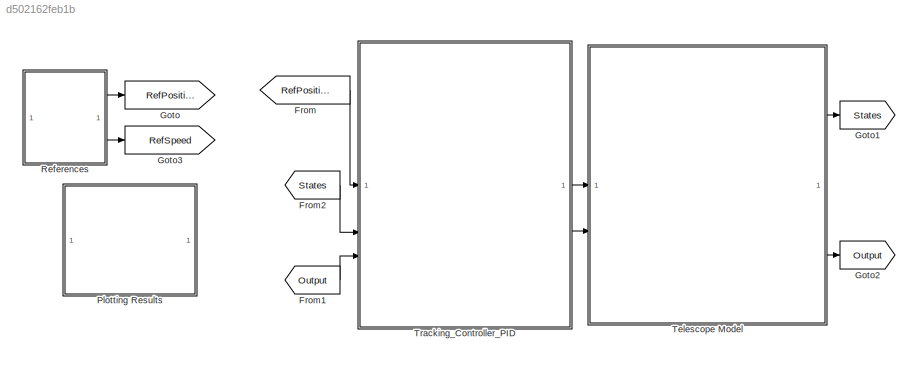
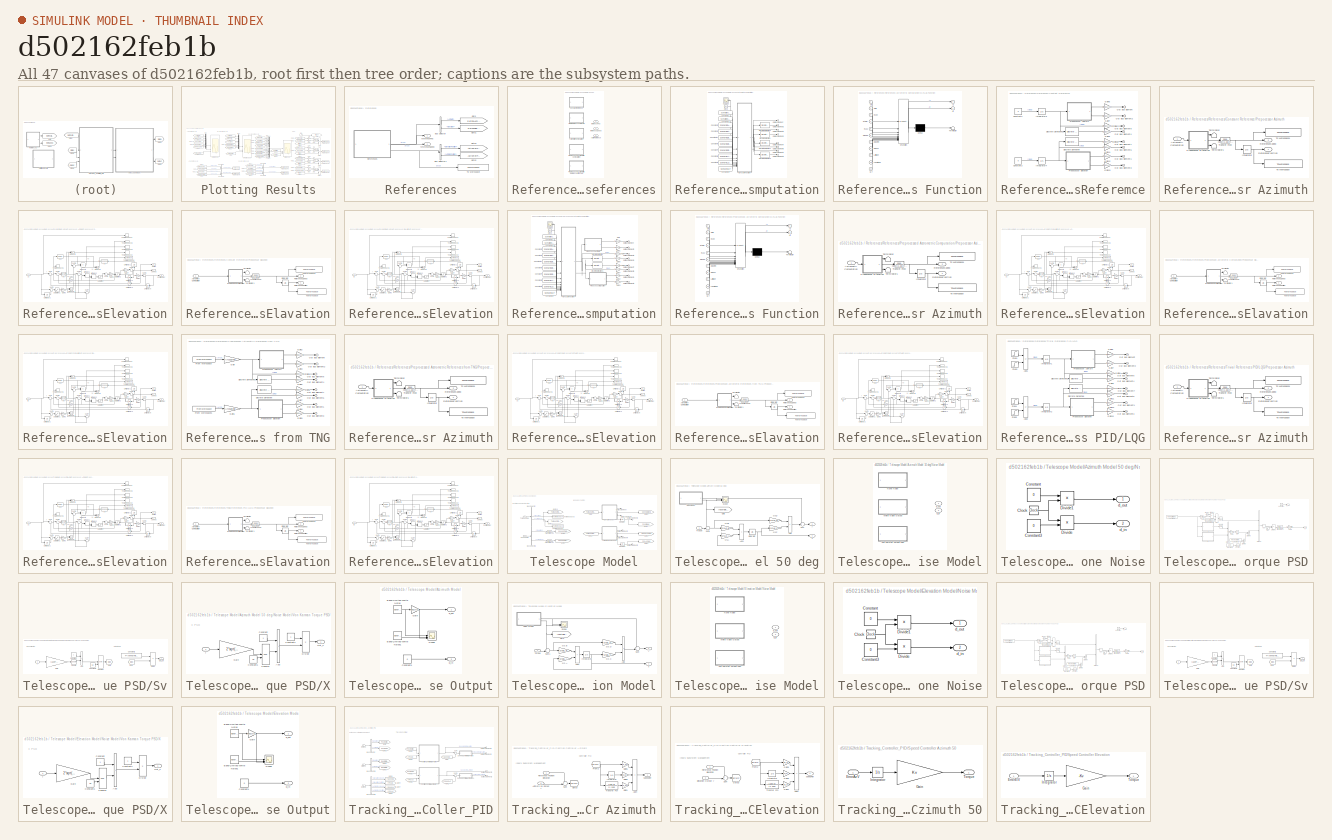
[diagram: thumbnail index - all 47 canvases of the model, root first then tree order]
MODEL slx_d502162feb1b
KIND model
CONFIG AbsTol = auto
CONFIG EnableMultiTasking = off
CONFIG FixedStep = 0.01
CONFIG MaxStep = auto
CONFIG MinStep = auto
CONFIG RelTol = 1e-5
CONFIG SampleTimeConstraint = Unconstrained
CONFIG SolverName = ode23s
CONFIG StartTime = 0.0
CONFIG StopTime = SimulationTime
BLOCK [From] From
  GotoTag = RefPosition
BLOCK [From] From1
  GotoTag = Output
BLOCK [From] From2
  GotoTag = States
BLOCK [Goto] Goto
  GotoTag = RefPosition
BLOCK [Goto] Goto1
  GotoTag = States
BLOCK [Goto] Goto2
  GotoTag = Output
BLOCK [Goto] Goto3
  GotoTag = RefSpeed
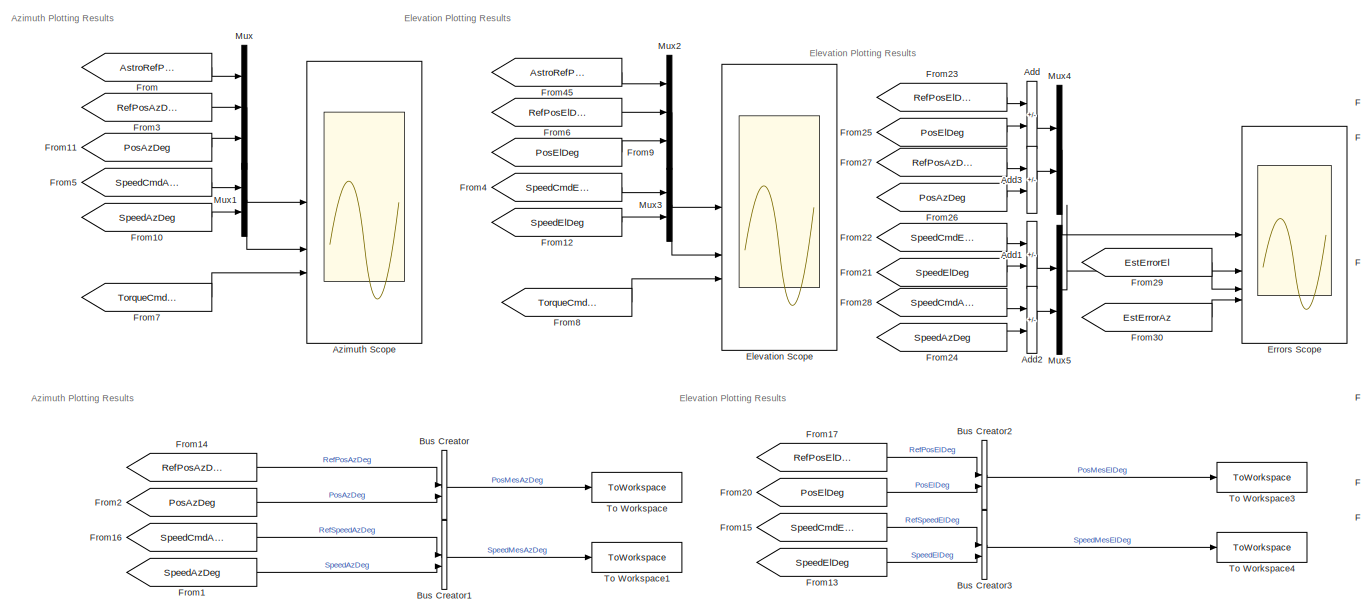
[diagram: Plotting Results - part 1/2, most of the canvas]
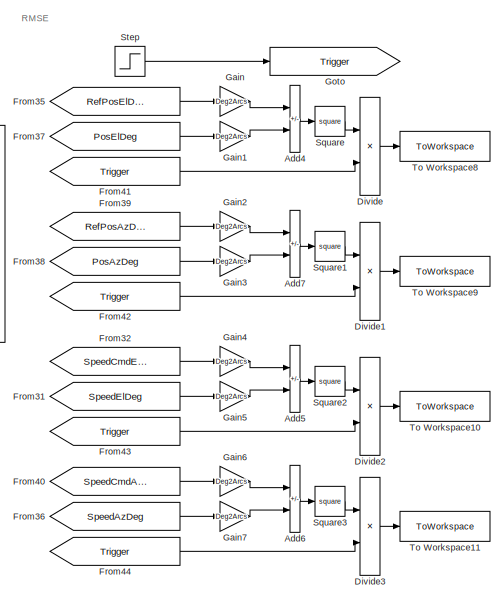
[diagram: Plotting Results - part 2/2, right side, full height]
BLOCK [SubSystem] Plotting Results
BLOCK [Sum] Plotting Results/Add
  IconShape = rectangular
  Inputs = +-
BLOCK [Sum] Plotting Results/Add1
  IconShape = rectangular
  Inputs = +-
BLOCK [Sum] Plotting Results/Add2
  IconShape = rectangular
  Inputs = +-
BLOCK [Sum] Plotting Results/Add3
  IconShape = rectangular
  Inputs = +-
BLOCK [Sum] Plotting Results/Add4
  IconShape = rectangular
  Inputs = +-
BLOCK [Sum] Plotting Results/Add5
  IconShape = rectangular
  Inputs = +-
BLOCK [Sum] Plotting Results/Add6
  IconShape = rectangular
  Inputs = +-
BLOCK [Sum] Plotting Results/Add7
  IconShape = rectangular
  Inputs = +-
BLOCK [Scope] Plotting Results/Azimuth Scope
  Floating = off
  NumInputPorts = 3
  ScopeSpecificationString = Simulink.scopes.TimeScopeBlockCfg('CurrentConfiguration', extmgr.ConfigurationSet(extmgr.Configuration('Core','General UI',true),extmgr.Configuration('Core','Source UI',true),extmgr.Configuration('Sources','WiredSimulink',true,'DataLoggingVariableName','ScopeData1'),extmgr.Configuration('Visuals','Time Domain',true,'SerializedDisplays',{struct('MinYLimReal','1269325.57817','MaxYLimReal','1298963.8...<+3322ch>
BLOCK [BusCreator] Plotting Results/Bus Creator
  DisplayOption = bar
  InheritFromInputs = on
  Inputs = 2
BLOCK [BusCreator] Plotting Results/Bus Creator1
  DisplayOption = bar
  InheritFromInputs = on
  Inputs = 2
BLOCK [BusCreator] Plotting Results/Bus Creator2
  DisplayOption = bar
  InheritFromInputs = on
  Inputs = 2
BLOCK [BusCreator] Plotting Results/Bus Creator3
  DisplayOption = bar
  InheritFromInputs = on
  Inputs = 2
BLOCK [Product] Plotting Results/Divide
  Inputs = **
BLOCK [Product] Plotting Results/Divide1
  Inputs = **
BLOCK [Product] Plotting Results/Divide2
  Inputs = **
BLOCK [Product] Plotting Results/Divide3
  Inputs = **
BLOCK [Scope] Plotting Results/Elevation Scope
  Floating = off
  NumInputPorts = 3
  ScopeSpecificationString = Simulink.scopes.TimeScopeBlockCfg('CurrentConfiguration', extmgr.ConfigurationSet(extmgr.Configuration('Core','General UI',true),extmgr.Configuration('Core','Source UI',true),extmgr.Configuration('Sources','WiredSimulink',true,'DataLoggingVariableName','ScopeData2'),extmgr.Configuration('Visuals','Time Domain',true,'SerializedDisplays',{struct('MinYLimReal','202499.34205','MaxYLimReal','337500.073...<+3377ch>
BLOCK [Scope] Plotting Results/Errors Scope
  Floating = off
  NumInputPorts = 4
  ScopeSpecificationString = Simulink.scopes.TimeScopeBlockCfg('CurrentConfiguration', extmgr.ConfigurationSet(extmgr.Configuration('Core','General UI',true),extmgr.Configuration('Core','Source UI',true),extmgr.Configuration('Sources','WiredSimulink',true,'DataLoggingVariableName','ScopeData1'),extmgr.Configuration('Visuals','Time Domain',true,'SerializedDisplays',{struct('MinYLimReal','49.02273','MaxYLimReal','409.76593','YL...<+4434ch>
BLOCK [From] Plotting Results/From
  GotoTag = AstroRefPosAzDeg
  TagVisibility = global
BLOCK [From] Plotting Results/From1
  GotoTag = SpeedAzDeg
  TagVisibility = global
BLOCK [From] Plotting Results/From10
  GotoTag = SpeedAzDeg
  TagVisibility = global
BLOCK [From] Plotting Results/From11
  GotoTag = PosAzDeg
  TagVisibility = global
BLOCK [From] Plotting Results/From12
  GotoTag = SpeedElDeg
  TagVisibility = global
BLOCK [From] Plotting Results/From13
  GotoTag = SpeedElDeg
  TagVisibility = global
BLOCK [From] Plotting Results/From14
  GotoTag = RefPosAzDeg
  TagVisibility = global
BLOCK [From] Plotting Results/From15
  GotoTag = SpeedCmdElDeg
  TagVisibility = global
BLOCK [From] Plotting Results/From16
  GotoTag = SpeedCmdAzDeg
  TagVisibility = global
BLOCK [From] Plotting Results/From17
  GotoTag = RefPosElDeg
  TagVisibility = global
BLOCK [From] Plotting Results/From2
  GotoTag = PosAzDeg
  TagVisibility = global
BLOCK [From] Plotting Results/From20
  GotoTag = PosElDeg
  TagVisibility = global
BLOCK [From] Plotting Results/From21
  GotoTag = SpeedElDeg
  TagVisibility = global
BLOCK [From] Plotting Results/From22
  GotoTag = SpeedCmdElDeg
  TagVisibility = global
BLOCK [From] Plotting Results/From23
  GotoTag = RefPosElDeg
  TagVisibility = global
BLOCK [From] Plotting Results/From24
  GotoTag = SpeedAzDeg
  TagVisibility = global
BLOCK [From] Plotting Results/From25
  GotoTag = PosElDeg
  TagVisibility = global
BLOCK [From] Plotting Results/From26
  GotoTag = PosAzDeg
  TagVisibility = global
BLOCK [From] Plotting Results/From27
  GotoTag = RefPosAzDeg
  TagVisibility = global
BLOCK [From] Plotting Results/From28
  GotoTag = SpeedCmdAzDeg
  TagVisibility = global
BLOCK [From] Plotting Results/From29
  GotoTag = EstErrorEl
BLOCK [From] Plotting Results/From3
  GotoTag = RefPosAzDeg
  TagVisibility = global
BLOCK [From] Plotting Results/From30
  GotoTag = EstErrorAz
BLOCK [From] Plotting Results/From31
  GotoTag = SpeedElDeg
  TagVisibility = global
BLOCK [From] Plotting Results/From32
  GotoTag = SpeedCmdElDeg
  TagVisibility = global
BLOCK [From] Plotting Results/From35
  GotoTag = RefPosElDeg
  TagVisibility = global
BLOCK [From] Plotting Results/From36
  GotoTag = SpeedAzDeg
  TagVisibility = global
BLOCK [From] Plotting Results/From37
  GotoTag = PosElDeg
  TagVisibility = global
BLOCK [From] Plotting Results/From38
  GotoTag = PosAzDeg
  TagVisibility = global
BLOCK [From] Plotting Results/From39
  GotoTag = RefPosAzDeg
  TagVisibility = global
BLOCK [From] Plotting Results/From4
  GotoTag = SpeedCmdElDeg
  TagVisibility = global
BLOCK [From] Plotting Results/From40
  GotoTag = SpeedCmdAzDeg
  TagVisibility = global
BLOCK [From] Plotting Results/From41
  GotoTag = Trigger
BLOCK [From] Plotting Results/From42
  GotoTag = Trigger
BLOCK [From] Plotting Results/From43
  GotoTag = Trigger
BLOCK [From] Plotting Results/From44
  GotoTag = Trigger
BLOCK [From] Plotting Results/From45
  GotoTag = AstroRefPosElDeg
  TagVisibility = global
BLOCK [From] Plotting Results/From5
  GotoTag = SpeedCmdAzDeg
  TagVisibility = global
BLOCK [From] Plotting Results/From6
  GotoTag = RefPosElDeg
  TagVisibility = global
BLOCK [From] Plotting Results/From7
  GotoTag = TorqueCmdAzDeg
  TagVisibility = global
BLOCK [From] Plotting Results/From8
  GotoTag = TorqueCmdElDeg
  TagVisibility = global
BLOCK [From] Plotting Results/From9
  GotoTag = PosElDeg
  TagVisibility = global
BLOCK [Gain] Plotting Results/Gain
  Gain = Deg2Arcs
BLOCK [Gain] Plotting Results/Gain1
  Gain = Deg2Arcs
BLOCK [Gain] Plotting Results/Gain2
  Gain = Deg2Arcs
BLOCK [Gain] Plotting Results/Gain3
  Gain = Deg2Arcs
BLOCK [Gain] Plotting Results/Gain4
  Gain = Deg2Arcs
BLOCK [Gain] Plotting Results/Gain5
  Gain = Deg2Arcs
BLOCK [Gain] Plotting Results/Gain6
  Gain = Deg2Arcs
BLOCK [Gain] Plotting Results/Gain7
  Gain = Deg2Arcs
BLOCK [Goto] Plotting Results/Goto
  GotoTag = Trigger
BLOCK [Mux] Plotting Results/Mux
  DisplayOption = bar
  Inputs = 3
BLOCK [Mux] Plotting Results/Mux1
  DisplayOption = bar
  Inputs = 2
BLOCK [Mux] Plotting Results/Mux2
  DisplayOption = bar
  Inputs = 3
BLOCK [Mux] Plotting Results/Mux3
  DisplayOption = bar
  Inputs = 2
BLOCK [Mux] Plotting Results/Mux4
  DisplayOption = bar
  Inputs = 2
BLOCK [Mux] Plotting Results/Mux5
  DisplayOption = bar
  Inputs = 2
BLOCK [Math] Plotting Results/Square
  Operator = square
BLOCK [Math] Plotting Results/Square1
  Operator = square
BLOCK [Math] Plotting Results/Square2
  Operator = square
BLOCK [Math] Plotting Results/Square3
  Operator = square
BLOCK [Step] Plotting Results/Step
  SampleTime = 0
  Time = 350
BLOCK [ToWorkspace] Plotting Results/To Workspace
  FixptAsFi = on
  MaxDataPoints = inf
  SampleTime = -1
  SaveFormat = Timeseries
  VariableName = PositionAz
BLOCK [ToWorkspace] Plotting Results/To Workspace1
  FixptAsFi = on
  MaxDataPoints = inf
  SampleTime = -1
  SaveFormat = Timeseries
  VariableName = SpeedAZ
BLOCK [ToWorkspace] Plotting Results/To Workspace10
  FixptAsFi = on
  MaxDataPoints = inf
  SampleTime = -1
  SaveFormat = Timeseries
  VariableName = RMSESpeedEl
BLOCK [ToWorkspace] Plotting Results/To Workspace11
  FixptAsFi = on
  MaxDataPoints = inf
  SampleTime = -1
  SaveFormat = Timeseries
  VariableName = RMSESpeedAz
BLOCK [ToWorkspace] Plotting Results/To Workspace3
  FixptAsFi = on
  MaxDataPoints = inf
  SampleTime = -1
  SaveFormat = Timeseries
  VariableName = PositionEl
BLOCK [ToWorkspace] Plotting Results/To Workspace4
  FixptAsFi = on
  MaxDataPoints = inf
  SampleTime = -1
  SaveFormat = Timeseries
  VariableName = SpeedEl
BLOCK [ToWorkspace] Plotting Results/To Workspace8
  FixptAsFi = on
  MaxDataPoints = inf
  SampleTime = -1
  SaveFormat = Timeseries
  VariableName = RMSEPosEl
BLOCK [ToWorkspace] Plotting Results/To Workspace9
  FixptAsFi = on
  MaxDataPoints = inf
  SampleTime = -1
  SaveFormat = Timeseries
  VariableName = RMSEPosAz
BLOCK [SubSystem] References
BLOCK [BusSelector] References/Bus Selector
  OutputSignals = Azimuth,Elevation
BLOCK [BusSelector] References/Bus Selector1
  OutputSignals = ElevationPosition,AzimuthPosition
BLOCK [Goto] References/Goto
  GotoTag = RefPosAzDeg
  TagVisibility = global
BLOCK [Goto] References/Goto1
  GotoTag = RefPosElDeg
  TagVisibility = global
BLOCK [Goto] References/Goto2
  GotoTag = AstroRefPosAzDeg
  TagVisibility = global
BLOCK [Goto] References/Goto3
  GotoTag = AstroRefPosElDeg
  TagVisibility = global
BLOCK [SubSystem] References/References
  Variant = on
  VariantControl = Choice
BLOCK [Outport] References/References/AstroReference
  Port = 3
BLOCK [SubSystem] References/References/Astrometric Computation
  VariantControl = Ref == 0 && Prepocessor.flag == 0 && TNG==0
BLOCK [Clock] References/References/Astrometric Computation/Clock
BLOCK [Constant] References/References/Astrometric Computation/Constant10
  Value = Scenario.VLT
BLOCK [Constant] References/References/Astrometric Computation/Constant11
  Value = Scenario.Time
BLOCK [Constant] References/References/Astrometric Computation/Constant19
  Value = Scenario.RAhh
BLOCK [Constant] References/References/Astrometric Computation/Constant21
  Value = Scenario.DECdd
BLOCK [Constant] References/References/Astrometric Computation/Constant3
  Value = Scenario.RAmm
BLOCK [Constant] References/References/Astrometric Computation/Constant4
  Value = Scenario.RAss
BLOCK [Constant] References/References/Astrometric Computation/Constant6
  Value = Scenario.DECmm
BLOCK [Constant] References/References/Astrometric Computation/Constant7
  Value = Scenario.DECss
BLOCK [Constant] References/References/Astrometric Computation/Constant8
  Value = Scenario.LATsite
BLOCK [Constant] References/References/Astrometric Computation/Constant9
  Value = Scenario.LONsite
BLOCK [Reference] References/References/Astrometric Computation/Discrete Derivative  REF=simulink/Discrete/Discrete Derivative
  SourceBlock = simulink/Discrete/Discrete Derivative
  SourceType = Discrete Derivative
BLOCK [Reference] References/References/Astrometric Computation/Discrete Derivative1  REF=simulink/Discrete/Discrete Derivative
  SourceBlock = simulink/Discrete/Discrete Derivative
  SourceType = Discrete Derivative
BLOCK [Reference] References/References/Astrometric Computation/Discrete Derivative2  REF=simulink/Discrete/Discrete Derivative
  SourceBlock = simulink/Discrete/Discrete Derivative
  SourceType = Discrete Derivative
BLOCK [Reference] References/References/Astrometric Computation/Discrete Derivative3  REF=simulink/Discrete/Discrete Derivative
  SourceBlock = simulink/Discrete/Discrete Derivative
  SourceType = Discrete Derivative
BLOCK [SubSystem] References/References/Astrometric Computation/MATLAB Function
  ErrorFcn = Stateflow.Translate.translate
  LibrarySourceBlock = simulink/User-Defined\nFunctions/MATLAB Function
  PermitHierarchicalResolution = ExplicitOnly
  SFBlockType = MATLAB Function
  TreatAsAtomicUnit = on
BLOCK [Demux] References/References/Astrometric Computation/MATLAB Function/ Demux 
  Outputs = 1
BLOCK [S-Function] References/References/Astrometric Computation/MATLAB Function/ SFunction 
  EnableBusSupport = on
  FunctionName = sf_sfun
  PortCounts = [11 3]
  SFcnIsStateOwnerBlock = off
  SFunctionDeploymentMode = off
  Tag = Stateflow S-Function 1
BLOCK [Terminator] References/References/Astrometric Computation/MATLAB Function/ Terminator 
BLOCK [Outport] References/References/Astrometric Computation/MATLAB Function/Alt
  Port = 2
BLOCK [Outport] References/References/Astrometric Computation/MATLAB Function/Az
BLOCK [Inport] References/References/Astrometric Computation/MATLAB Function/DECdd
  Port = 6
BLOCK [Inport] References/References/Astrometric Computation/MATLAB Function/DECmm
  Port = 7
BLOCK [Inport] References/References/Astrometric Computation/MATLAB Function/DECss
  Port = 8
BLOCK [Inport] References/References/Astrometric Computation/MATLAB Function/Latitude
  Port = 9
BLOCK [Inport] References/References/Astrometric Computation/MATLAB Function/Longitude
  Port = 10
BLOCK [Inport] References/References/Astrometric Computation/MATLAB Function/RAhh
  Port = 3
BLOCK [Inport] References/References/Astrometric Computation/MATLAB Function/RAmm
  Port = 4
BLOCK [Inport] References/References/Astrometric Computation/MATLAB Function/RAss
  Port = 5
BLOCK [Inport] References/References/Astrometric Computation/MATLAB Function/Time
  Port = 2
BLOCK [Inport] References/References/Astrometric Computation/MATLAB Function/VLT
  Port = 11
BLOCK [Inport] References/References/Astrometric Computation/MATLAB Function/clo
BLOCK [Outport] References/References/Astrometric Computation/Out Bus Element
BLOCK [Outport] References/References/Astrometric Computation/Out Bus Element1
BLOCK [Outport] References/References/Astrometric Computation/Out Bus Element2
  Port = 2
BLOCK [Outport] References/References/Astrometric Computation/Out Bus Element3
  Port = 2
BLOCK [Outport] References/References/Astrometric Computation/Out Bus Element4
  Port = 3
BLOCK [Outport] References/References/Astrometric Computation/Out Bus Element5
  Port = 3
BLOCK [Outport] References/References/Astrometric Computation/Out Bus Element6
  Port = 3
BLOCK [Outport] References/References/Astrometric Computation/Out Bus Element7
  Port = 3
BLOCK [Scope] References/References/Astrometric Computation/Scope2
  Floating = off
  NameLocation = top
  NumInputPorts = 1
  ScopeSpecificationString = Simulink.scopes.TimeScopeBlockCfg('CurrentConfiguration', extmgr.ConfigurationSet(extmgr.Configuration('Core','General UI',true),extmgr.Configuration('Core','Source UI',true),extmgr.Configuration('Sources','WiredSimulink',true,'DataLoggingVariableName','ScopeData1'),extmgr.Configuration('Visuals','Time Domain',true,'SerializedDisplays',{struct('MinYLimReal','-6.25','MaxYLimReal','56.25','YLabelRea...<+1380ch>
BLOCK [SubSystem] References/References/Constant Referemce
  VariantControl = Ref == 2
BLOCK [Constant] References/References/Constant Referemce/Constant2
  Value = 0
BLOCK [Constant] References/References/Constant Referemce/Constant3
  Value = 0
BLOCK [Reference] References/References/Constant Referemce/Discrete Derivative  REF=simulink/Discrete/Discrete Derivative
  SourceBlock = simulink/Discrete/Discrete Derivative
  SourceType = Discrete Derivative
BLOCK [Reference] References/References/Constant Referemce/Discrete Derivative1  REF=simulink/Discrete/Discrete Derivative
  SourceBlock = simulink/Discrete/Discrete Derivative
  SourceType = Discrete Derivative
BLOCK [Gain] References/References/Constant Referemce/Gain10
  Gain = Deg2Arcs
BLOCK [Gain] References/References/Constant Referemce/Gain11
  Gain = Deg2Arcs
BLOCK [Gain] References/References/Constant Referemce/Gain12
  Gain = Deg2Arcs
BLOCK [Gain] References/References/Constant Referemce/Gain13
  Gain = Deg2Arcs
BLOCK [Gain] References/References/Constant Referemce/Gain6
  Gain = Deg2Arcs
BLOCK [Gain] References/References/Constant Referemce/Gain7
  Gain = Deg2Arcs
BLOCK [Gain] References/References/Constant Referemce/Gain8
  Gain = Deg2Arcs
BLOCK [Gain] References/References/Constant Referemce/Gain9
  Gain = Deg2Arcs
BLOCK [Integrator] References/References/Constant Referemce/Integrator3
  InitialCondition = 120
BLOCK [Integrator] References/References/Constant Referemce/Integrator4
  InitialCondition = 60
  NameLocation = left
BLOCK [Outport] References/References/Constant Referemce/Out Bus Element
BLOCK [Outport] References/References/Constant Referemce/Out Bus Element1
BLOCK [Outport] References/References/Constant Referemce/Out Bus Element2
  Port = 2
BLOCK [Outport] References/References/Constant Referemce/Out Bus Element3
  Port = 2
BLOCK [Outport] References/References/Constant Referemce/Out Bus Element4
  Port = 3
BLOCK [Outport] References/References/Constant Referemce/Out Bus Element5
  Port = 3
BLOCK [Outport] References/References/Constant Referemce/Out Bus Element6
  Port = 3
BLOCK [Outport] References/References/Constant Referemce/Out Bus Element7
  Port = 3
BLOCK [SubSystem] References/References/Constant Referemce/Prepocessor Azimuth
BLOCK [Inport] References/References/Constant Referemce/Prepocessor Azimuth/Astrometry Computation
  NameLocation = left
BLOCK [Integrator] References/References/Constant Referemce/Prepocessor Azimuth/Integrator
  InitialCondition = Prepocessor.p0az
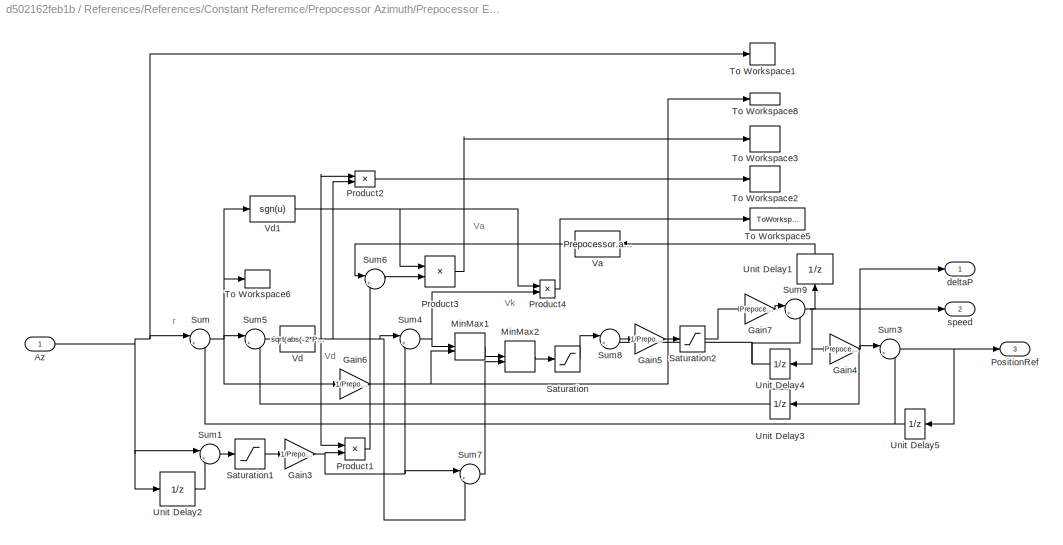
BLOCK [SubSystem] References/References/Constant Referemce/Prepocessor Azimuth/Prepocessor Elevation
  SystemSampleTime = Prepocessor.Ts
  TreatAsAtomicUnit = on
BLOCK [Inport] References/References/Constant Referemce/Prepocessor Azimuth/Prepocessor Elevation/Az
BLOCK [Gain] References/References/Constant Referemce/Prepocessor Azimuth/Prepocessor Elevation/Gain3
  Gain = 1/Prepocessor.Ts
BLOCK [Gain] References/References/Constant Referemce/Prepocessor Azimuth/Prepocessor Elevation/Gain4
  Gain = Prepocessor.Ts
BLOCK [Gain] References/References/Constant Referemce/Prepocessor Azimuth/Prepocessor Elevation/Gain5
  Gain = 1/Prepocessor.Ts
BLOCK [Gain] References/References/Constant Referemce/Prepocessor Azimuth/Prepocessor Elevation/Gain6
  Gain = 1/Prepocessor.Ts
BLOCK [Gain] References/References/Constant Referemce/Prepocessor Azimuth/Prepocessor Elevation/Gain7
  Gain = Prepocessor.Ts
BLOCK [MinMax] References/References/Constant Referemce/Prepocessor Azimuth/Prepocessor Elevation/MinMax1
  Inputs = 2
BLOCK [MinMax] References/References/Constant Referemce/Prepocessor Azimuth/Prepocessor Elevation/MinMax2
  Function = max
  Inputs = 2
BLOCK [Outport] References/References/Constant Referemce/Prepocessor Azimuth/Prepocessor Elevation/PositionRef
  Port = 3
BLOCK [Product] References/References/Constant Referemce/Prepocessor Azimuth/Prepocessor Elevation/Product1
BLOCK [Product] References/References/Constant Referemce/Prepocessor Azimuth/Prepocessor Elevation/Product2
BLOCK [Product] References/References/Constant Referemce/Prepocessor Azimuth/Prepocessor Elevation/Product3
BLOCK [Product] References/References/Constant Referemce/Prepocessor Azimuth/Prepocessor Elevation/Product4
BLOCK [Saturate] References/References/Constant Referemce/Prepocessor Azimuth/Prepocessor Elevation/Saturation
  LowerLimit = -Prepocessor.vmax
  UpperLimit = Prepocessor.vmax
BLOCK [Saturate] References/References/Constant Referemce/Prepocessor Azimuth/Prepocessor Elevation/Saturation1
  LowerLimit = -Prepocessor.vmax*Prepocessor.Ts
  UpperLimit = Prepocessor.vmax*Prepocessor.Ts
BLOCK [Saturate] References/References/Constant Referemce/Prepocessor Azimuth/Prepocessor Elevation/Saturation2
  LowerLimit = -Prepocessor.amax
  UpperLimit = Prepocessor.amax
BLOCK [Sum] References/References/Constant Referemce/Prepocessor Azimuth/Prepocessor Elevation/Sum
  Inputs = |+-
BLOCK [Sum] References/References/Constant Referemce/Prepocessor Azimuth/Prepocessor Elevation/Sum1
  Inputs = |+-
BLOCK [Sum] References/References/Constant Referemce/Prepocessor Azimuth/Prepocessor Elevation/Sum3
  Inputs = |++
BLOCK [Sum] References/References/Constant Referemce/Prepocessor Azimuth/Prepocessor Elevation/Sum4
  Inputs = |++
BLOCK [Sum] References/References/Constant Referemce/Prepocessor Azimuth/Prepocessor Elevation/Sum5
  Inputs = |+-
BLOCK [Sum] References/References/Constant Referemce/Prepocessor Azimuth/Prepocessor Elevation/Sum6
  Inputs = |+-
BLOCK [Sum] References/References/Constant Referemce/Prepocessor Azimuth/Prepocessor Elevation/Sum7
  Inputs = |+-
BLOCK [Sum] References/References/Constant Referemce/Prepocessor Azimuth/Prepocessor Elevation/Sum8
  Inputs = |+-
BLOCK [Sum] References/References/Constant Referemce/Prepocessor Azimuth/Prepocessor Elevation/Sum9
  Inputs = |++
BLOCK [ToWorkspace] References/References/Constant Referemce/Prepocessor Azimuth/Prepocessor Elevation/To Workspace1
  Commented = on
  FixptAsFi = on
  MaxDataPoints = inf
  SampleTime = -1
  VariableName = p
BLOCK [ToWorkspace] References/References/Constant Referemce/Prepocessor Azimuth/Prepocessor Elevation/To Workspace2
  Commented = on
  FixptAsFi = on
  MaxDataPoints = inf
  SampleTime = -1
  VariableName = Vd
BLOCK [ToWorkspace] References/References/Constant Referemce/Prepocessor Azimuth/Prepocessor Elevation/To Workspace3
  Commented = on
  FixptAsFi = on
  MaxDataPoints = inf
  SampleTime = -1
  VariableName = Va
BLOCK [ToWorkspace] References/References/Constant Referemce/Prepocessor Azimuth/Prepocessor Elevation/To Workspace5
  Commented = on
  FixptAsFi = on
  MaxDataPoints = inf
  SampleTime = -1
  VariableName = deltaP_ads
BLOCK [ToWorkspace] References/References/Constant Referemce/Prepocessor Azimuth/Prepocessor Elevation/To Workspace6
  Commented = on
  FixptAsFi = on
  MaxDataPoints = inf
  SampleTime = -1
  VariableName = e
BLOCK [ToWorkspace] References/References/Constant Referemce/Prepocessor Azimuth/Prepocessor Elevation/To Workspace8
  Commented = on
  FixptAsFi = on
  MaxDataPoints = inf
  SampleTime = -1
  VariableName = V
BLOCK [UnitDelay] References/References/Constant Referemce/Prepocessor Azimuth/Prepocessor Elevation/Unit Delay1
  HasFrameUpgradeWarning = on
  NameLocation = right
  SampleTime = -1
BLOCK [UnitDelay] References/References/Constant Referemce/Prepocessor Azimuth/Prepocessor Elevation/Unit Delay2
  HasFrameUpgradeWarning = on
  SampleTime = -1
BLOCK [UnitDelay] References/References/Constant Referemce/Prepocessor Azimuth/Prepocessor Elevation/Unit Delay3
  HasFrameUpgradeWarning = on
  SampleTime = -1
BLOCK [UnitDelay] References/References/Constant Referemce/Prepocessor Azimuth/Prepocessor Elevation/Unit Delay4
  HasFrameUpgradeWarning = on
  SampleTime = -1
BLOCK [UnitDelay] References/References/Constant Referemce/Prepocessor Azimuth/Prepocessor Elevation/Unit Delay5
  HasFrameUpgradeWarning = on
  InitialCondition = Prepocessor.p0az
  SampleTime = -1
BLOCK [Fcn] References/References/Constant Referemce/Prepocessor Azimuth/Prepocessor Elevation/Va
  Expr = Prepocessor.amax*Prepocessor.Ts+abs(u)
BLOCK [Fcn] References/References/Constant Referemce/Prepocessor Azimuth/Prepocessor Elevation/Vd
  Expr = sqrt(abs(-2*Prepocessor.amax*u))
BLOCK [Fcn] References/References/Constant Referemce/Prepocessor Azimuth/Prepocessor Elevation/Vd1
  Expr = sgn(u)
BLOCK [Outport] References/References/Constant Referemce/Prepocessor Azimuth/Prepocessor Elevation/deltaP
BLOCK [Outport] References/References/Constant Referemce/Prepocessor Azimuth/Prepocessor Elevation/speed
  Port = 2
BLOCK [Outport] References/References/Constant Referemce/Prepocessor Azimuth/ReferencePosition
BLOCK [Outport] References/References/Constant Referemce/Prepocessor Azimuth/ReferenceSpeed
  Port = 2
BLOCK [Terminator] References/References/Constant Referemce/Prepocessor Azimuth/Terminator
BLOCK [Terminator] References/References/Constant Referemce/Prepocessor Azimuth/Terminator1
BLOCK [ToWorkspace] References/References/Constant Referemce/Prepocessor Azimuth/To Workspace
  FixptAsFi = on
  MaxDataPoints = inf
  SampleTime = -1
  SaveFormat = Timeseries
  VariableName = ReferenceProcessedPositionAz
BLOCK [ToWorkspace] References/References/Constant Referemce/Prepocessor Azimuth/To Workspace1
  FixptAsFi = on
  MaxDataPoints = inf
  SampleTime = -1
  SaveFormat = Timeseries
  VariableName = ReferenceProcessedSpeedAz
BLOCK [TransferFcn] References/References/Constant Referemce/Prepocessor Azimuth/Transfer Fcn2
  Denominator = conv([1 50], [1 50])
  Numerator = 2500
BLOCK [SubSystem] References/References/Constant Referemce/Prepocessor Elavation
BLOCK [Inport] References/References/Constant Referemce/Prepocessor Elavation/Astrometry Computation
BLOCK [Integrator] References/References/Constant Referemce/Prepocessor Elavation/Integrator
  InitialCondition = Prepocessor.p0el
BLOCK [SubSystem] References/References/Constant Referemce/Prepocessor Elavation/Prepocessor Elevation
  SystemSampleTime = Prepocessor.Ts
  TreatAsAtomicUnit = on
BLOCK [Inport] References/References/Constant Referemce/Prepocessor Elavation/Prepocessor Elevation/El
BLOCK [Gain] References/References/Constant Referemce/Prepocessor Elavation/Prepocessor Elevation/Gain3
  Gain = 1/Prepocessor.Ts
BLOCK [Gain] References/References/Constant Referemce/Prepocessor Elavation/Prepocessor Elevation/Gain4
  Gain = Prepocessor.Ts
BLOCK [Gain] References/References/Constant Referemce/Prepocessor Elavation/Prepocessor Elevation/Gain5
  Gain = 1/Prepocessor.Ts
BLOCK [Gain] References/References/Constant Referemce/Prepocessor Elavation/Prepocessor Elevation/Gain6
  Gain = 1/Prepocessor.Ts
BLOCK [Gain] References/References/Constant Referemce/Prepocessor Elavation/Prepocessor Elevation/Gain7
  Gain = Prepocessor.Ts
BLOCK [MinMax] References/References/Constant Referemce/Prepocessor Elavation/Prepocessor Elevation/MinMax1
  Inputs = 2
BLOCK [MinMax] References/References/Constant Referemce/Prepocessor Elavation/Prepocessor Elevation/MinMax2
  Function = max
  Inputs = 2
BLOCK [Outport] References/References/Constant Referemce/Prepocessor Elavation/Prepocessor Elevation/PositionRef
  Port = 3
BLOCK [Product] References/References/Constant Referemce/Prepocessor Elavation/Prepocessor Elevation/Product1
BLOCK [Product] References/References/Constant Referemce/Prepocessor Elavation/Prepocessor Elevation/Product2
BLOCK [Product] References/References/Constant Referemce/Prepocessor Elavation/Prepocessor Elevation/Product3
BLOCK [Product] References/References/Constant Referemce/Prepocessor Elavation/Prepocessor Elevation/Product4
BLOCK [Saturate] References/References/Constant Referemce/Prepocessor Elavation/Prepocessor Elevation/Saturation
  LowerLimit = -Prepocessor.vmax
  UpperLimit = Prepocessor.vmax
BLOCK [Saturate] References/References/Constant Referemce/Prepocessor Elavation/Prepocessor Elevation/Saturation1
  LowerLimit = -Prepocessor.vmax*Prepocessor.Ts
  UpperLimit = Prepocessor.vmax*Prepocessor.Ts
BLOCK [Saturate] References/References/Constant Referemce/Prepocessor Elavation/Prepocessor Elevation/Saturation2
  LowerLimit = -Prepocessor.amax
  UpperLimit = Prepocessor.amax
BLOCK [Sum] References/References/Constant Referemce/Prepocessor Elavation/Prepocessor Elevation/Sum
  Inputs = |+-
BLOCK [Sum] References/References/Constant Referemce/Prepocessor Elavation/Prepocessor Elevation/Sum1
  Inputs = |+-
BLOCK [Sum] References/References/Constant Referemce/Prepocessor Elavation/Prepocessor Elevation/Sum3
  Inputs = |++
BLOCK [Sum] References/References/Constant Referemce/Prepocessor Elavation/Prepocessor Elevation/Sum4
  Inputs = |++
BLOCK [Sum] References/References/Constant Referemce/Prepocessor Elavation/Prepocessor Elevation/Sum5
  Inputs = |+-
BLOCK [Sum] References/References/Constant Referemce/Prepocessor Elavation/Prepocessor Elevation/Sum6
  Inputs = |+-
BLOCK [Sum] References/References/Constant Referemce/Prepocessor Elavation/Prepocessor Elevation/Sum7
  Inputs = |+-
BLOCK [Sum] References/References/Constant Referemce/Prepocessor Elavation/Prepocessor Elevation/Sum8
  Inputs = |+-
BLOCK [Sum] References/References/Constant Referemce/Prepocessor Elavation/Prepocessor Elevation/Sum9
  Inputs = |++
BLOCK [ToWorkspace] References/References/Constant Referemce/Prepocessor Elavation/Prepocessor Elevation/To Workspace1
  Commented = on
  FixptAsFi = on
  MaxDataPoints = inf
  SampleTime = -1
  VariableName = p
BLOCK [ToWorkspace] References/References/Constant Referemce/Prepocessor Elavation/Prepocessor Elevation/To Workspace2
  Commented = on
  FixptAsFi = on
  MaxDataPoints = inf
  SampleTime = -1
  VariableName = Vd
BLOCK [ToWorkspace] References/References/Constant Referemce/Prepocessor Elavation/Prepocessor Elevation/To Workspace3
  Commented = on
  FixptAsFi = on
  MaxDataPoints = inf
  SampleTime = -1
  VariableName = Va
BLOCK [ToWorkspace] References/References/Constant Referemce/Prepocessor Elavation/Prepocessor Elevation/To Workspace5
  Commented = on
  FixptAsFi = on
  MaxDataPoints = inf
  SampleTime = -1
  VariableName = deltaP_ads
BLOCK [ToWorkspace] References/References/Constant Referemce/Prepocessor Elavation/Prepocessor Elevation/To Workspace6
  Commented = on
  FixptAsFi = on
  MaxDataPoints = inf
  SampleTime = -1
  VariableName = e
BLOCK [ToWorkspace] References/References/Constant Referemce/Prepocessor Elavation/Prepocessor Elevation/To Workspace8
  Commented = on
  FixptAsFi = on
  MaxDataPoints = inf
  SampleTime = -1
  VariableName = V
BLOCK [UnitDelay] References/References/Constant Referemce/Prepocessor Elavation/Prepocessor Elevation/Unit Delay1
  HasFrameUpgradeWarning = on
  NameLocation = right
  SampleTime = -1
BLOCK [UnitDelay] References/References/Constant Referemce/Prepocessor Elavation/Prepocessor Elevation/Unit Delay2
  HasFrameUpgradeWarning = on
  SampleTime = -1
BLOCK [UnitDelay] References/References/Constant Referemce/Prepocessor Elavation/Prepocessor Elevation/Unit Delay3
  HasFrameUpgradeWarning = on
  SampleTime = -1
BLOCK [UnitDelay] References/References/Constant Referemce/Prepocessor Elavation/Prepocessor Elevation/Unit Delay4
  HasFrameUpgradeWarning = on
  SampleTime = -1
BLOCK [UnitDelay] References/References/Constant Referemce/Prepocessor Elavation/Prepocessor Elevation/Unit Delay5
  HasFrameUpgradeWarning = on
  InitialCondition = Prepocessor.p0el
  SampleTime = -1
BLOCK [Fcn] References/References/Constant Referemce/Prepocessor Elavation/Prepocessor Elevation/Va
  Expr = Prepocessor.amax*Prepocessor.Ts+abs(u)
BLOCK [Fcn] References/References/Constant Referemce/Prepocessor Elavation/Prepocessor Elevation/Vd
  Expr = sqrt(abs(-2*Prepocessor.amax*u))
BLOCK [Fcn] References/References/Constant Referemce/Prepocessor Elavation/Prepocessor Elevation/Vd1
  Expr = sgn(u)
BLOCK [Outport] References/References/Constant Referemce/Prepocessor Elavation/Prepocessor Elevation/deltaP
BLOCK [Outport] References/References/Constant Referemce/Prepocessor Elavation/Prepocessor Elevation/speed
  Port = 2
BLOCK [Outport] References/References/Constant Referemce/Prepocessor Elavation/ReferencePosition
BLOCK [Outport] References/References/Constant Referemce/Prepocessor Elavation/ReferenceSpeed
  Port = 2
BLOCK [Terminator] References/References/Constant Referemce/Prepocessor Elavation/Terminator
BLOCK [Terminator] References/References/Constant Referemce/Prepocessor Elavation/Terminator1
BLOCK [ToWorkspace] References/References/Constant Referemce/Prepocessor Elavation/To Workspace
  FixptAsFi = on
  MaxDataPoints = inf
  SampleTime = -1
  SaveFormat = Timeseries
  VariableName = ReferenceProcessedPositionEl
BLOCK [ToWorkspace] References/References/Constant Referemce/Prepocessor Elavation/To Workspace1
  FixptAsFi = on
  MaxDataPoints = inf
  SampleTime = -1
  SaveFormat = Timeseries
  VariableName = ReferenceProcessedSpeedEl
BLOCK [TransferFcn] References/References/Constant Referemce/Prepocessor Elavation/Transfer Fcn2
  Denominator = conv([1 50], [1 50])
  Numerator = 2500
BLOCK [SubSystem] References/References/Preprocessed Astrometric Computation
  VariantControl = Ref == 0 && Prepocessor.flag == 1 && TNG==0
BLOCK [Clock] References/References/Preprocessed Astrometric Computation/Clock
BLOCK [Constant] References/References/Preprocessed Astrometric Computation/Constant10
  Value = Scenario.VLT
BLOCK [Constant] References/References/Preprocessed Astrometric Computation/Constant11
  Value = Scenario.Time
BLOCK [Constant] References/References/Preprocessed Astrometric Computation/Constant19
  Value = Scenario.RAhh
BLOCK [Constant] References/References/Preprocessed Astrometric Computation/Constant21
  Value = Scenario.DECdd
BLOCK [Constant] References/References/Preprocessed Astrometric Computation/Constant3
  Value = Scenario.RAmm
BLOCK [Constant] References/References/Preprocessed Astrometric Computation/Constant4
  Value = Scenario.RAss
BLOCK [Constant] References/References/Preprocessed Astrometric Computation/Constant6
  Value = Scenario.DECmm
BLOCK [Constant] References/References/Preprocessed Astrometric Computation/Constant7
  Value = Scenario.DECss
BLOCK [Constant] References/References/Preprocessed Astrometric Computation/Constant8
  Value = Scenario.LATsite
BLOCK [Constant] References/References/Preprocessed Astrometric Computation/Constant9
  Value = Scenario.LONsite
BLOCK [Reference] References/References/Preprocessed Astrometric Computation/Discrete Derivative  REF=simulink/Discrete/Discrete Derivative
  SourceBlock = simulink/Discrete/Discrete Derivative
  SourceType = Discrete Derivative
BLOCK [Reference] References/References/Preprocessed Astrometric Computation/Discrete Derivative1  REF=simulink/Discrete/Discrete Derivative
  SourceBlock = simulink/Discrete/Discrete Derivative
  SourceType = Discrete Derivative
BLOCK [Gain] References/References/Preprocessed Astrometric Computation/Gain
  Gain = Deg2Arcs
BLOCK [Gain] References/References/Preprocessed Astrometric Computation/Gain1
  Gain = Deg2Arcs
BLOCK [Gain] References/References/Preprocessed Astrometric Computation/Gain2
  Gain = Deg2Arcs
BLOCK [Gain] References/References/Preprocessed Astrometric Computation/Gain3
  Gain = Deg2Arcs
BLOCK [Gain] References/References/Preprocessed Astrometric Computation/Gain4
  Gain = Deg2Arcs
BLOCK [Gain] References/References/Preprocessed Astrometric Computation/Gain5
  Gain = Deg2Arcs
BLOCK [Gain] References/References/Preprocessed Astrometric Computation/Gain6
  Gain = Deg2Arcs
BLOCK [Gain] References/References/Preprocessed Astrometric Computation/Gain7
  Gain = Deg2Arcs
BLOCK [SubSystem] References/References/Preprocessed Astrometric Computation/MATLAB Function
  ErrorFcn = Stateflow.Translate.translate
  LibrarySourceBlock = simulink/User-Defined\nFunctions/MATLAB Function
  PermitHierarchicalResolution = ExplicitOnly
  SFBlockType = MATLAB Function
  TreatAsAtomicUnit = on
BLOCK [Demux] References/References/Preprocessed Astrometric Computation/MATLAB Function/ Demux 
  Outputs = 1
BLOCK [S-Function] References/References/Preprocessed Astrometric Computation/MATLAB Function/ SFunction 
  EnableBusSupport = on
  FunctionName = sf_sfun
  PortCounts = [11 3]
  SFcnIsStateOwnerBlock = off
  SFunctionDeploymentMode = off
  Tag = Stateflow S-Function 3
BLOCK [Terminator] References/References/Preprocessed Astrometric Computation/MATLAB Function/ Terminator 
BLOCK [Outport] References/References/Preprocessed Astrometric Computation/MATLAB Function/Alt
  Port = 2
BLOCK [Outport] References/References/Preprocessed Astrometric Computation/MATLAB Function/Az
BLOCK [Inport] References/References/Preprocessed Astrometric Computation/MATLAB Function/DECdd
  Port = 6
BLOCK [Inport] References/References/Preprocessed Astrometric Computation/MATLAB Function/DECmm
  Port = 7
BLOCK [Inport] References/References/Preprocessed Astrometric Computation/MATLAB Function/DECss
  Port = 8
BLOCK [Inport] References/References/Preprocessed Astrometric Computation/MATLAB Function/Latitude
  Port = 9
BLOCK [Inport] References/References/Preprocessed Astrometric Computation/MATLAB Function/Longitude
  Port = 10
BLOCK [Inport] References/References/Preprocessed Astrometric Computation/MATLAB Function/RAhh
  Port = 3
BLOCK [Inport] References/References/Preprocessed Astrometric Computation/MATLAB Function/RAmm
  Port = 4
BLOCK [Inport] References/References/Preprocessed Astrometric Computation/MATLAB Function/RAss
  Port = 5
BLOCK [Inport] References/References/Preprocessed Astrometric Computation/MATLAB Function/Time
  Port = 2
BLOCK [Inport] References/References/Preprocessed Astrometric Computation/MATLAB Function/VLT
  Port = 11
BLOCK [Inport] References/References/Preprocessed Astrometric Computation/MATLAB Function/clo
BLOCK [Outport] References/References/Preprocessed Astrometric Computation/Out Bus Element
BLOCK [Outport] References/References/Preprocessed Astrometric Computation/Out Bus Element1
BLOCK [Outport] References/References/Preprocessed Astrometric Computation/Out Bus Element2
  Port = 2
BLOCK [Outport] References/References/Preprocessed Astrometric Computation/Out Bus Element3
  Port = 2
BLOCK [Outport] References/References/Preprocessed Astrometric Computation/Out Bus Element4
  Port = 3
BLOCK [Outport] References/References/Preprocessed Astrometric Computation/Out Bus Element5
  Port = 3
BLOCK [Outport] References/References/Preprocessed Astrometric Computation/Out Bus Element6
  Port = 3
BLOCK [Outport] References/References/Preprocessed Astrometric Computation/Out Bus Element7
  Port = 3
BLOCK [SubSystem] References/References/Preprocessed Astrometric Computation/Prepocessor Azimuth
BLOCK [Inport] References/References/Preprocessed Astrometric Computation/Prepocessor Azimuth/Astrometry Computation
  NameLocation = left
BLOCK [Integrator] References/References/Preprocessed Astrometric Computation/Prepocessor Azimuth/Integrator
  InitialCondition = Prepocessor.p0az
BLOCK [SubSystem] References/References/Preprocessed Astrometric Computation/Prepocessor Azimuth/Prepocessor Elevation
  SystemSampleTime = Prepocessor.Ts
  TreatAsAtomicUnit = on
BLOCK [Inport] References/References/Preprocessed Astrometric Computation/Prepocessor Azimuth/Prepocessor Elevation/Az
BLOCK [Gain] References/References/Preprocessed Astrometric Computation/Prepocessor Azimuth/Prepocessor Elevation/Gain3
  Gain = 1/Prepocessor.Ts
BLOCK [Gain] References/References/Preprocessed Astrometric Computation/Prepocessor Azimuth/Prepocessor Elevation/Gain4
  Gain = Prepocessor.Ts
BLOCK [Gain] References/References/Preprocessed Astrometric Computation/Prepocessor Azimuth/Prepocessor Elevation/Gain5
  Gain = 1/Prepocessor.Ts
BLOCK [Gain] References/References/Preprocessed Astrometric Computation/Prepocessor Azimuth/Prepocessor Elevation/Gain6
  Gain = 1/Prepocessor.Ts
BLOCK [Gain] References/References/Preprocessed Astrometric Computation/Prepocessor Azimuth/Prepocessor Elevation/Gain7
  Gain = Prepocessor.Ts
BLOCK [MinMax] References/References/Preprocessed Astrometric Computation/Prepocessor Azimuth/Prepocessor Elevation/MinMax1
  Inputs = 2
BLOCK [MinMax] References/References/Preprocessed Astrometric Computation/Prepocessor Azimuth/Prepocessor Elevation/MinMax2
  Function = max
  Inputs = 2
BLOCK [Outport] References/References/Preprocessed Astrometric Computation/Prepocessor Azimuth/Prepocessor Elevation/PositionRef
  Port = 3
BLOCK [Product] References/References/Preprocessed Astrometric Computation/Prepocessor Azimuth/Prepocessor Elevation/Product1
BLOCK [Product] References/References/Preprocessed Astrometric Computation/Prepocessor Azimuth/Prepocessor Elevation/Product2
BLOCK [Product] References/References/Preprocessed Astrometric Computation/Prepocessor Azimuth/Prepocessor Elevation/Product3
BLOCK [Product] References/References/Preprocessed Astrometric Computation/Prepocessor Azimuth/Prepocessor Elevation/Product4
BLOCK [Saturate] References/References/Preprocessed Astrometric Computation/Prepocessor Azimuth/Prepocessor Elevation/Saturation
  LowerLimit = -Prepocessor.vmax
  UpperLimit = Prepocessor.vmax
BLOCK [Saturate] References/References/Preprocessed Astrometric Computation/Prepocessor Azimuth/Prepocessor Elevation/Saturation1
  LowerLimit = -Prepocessor.vmax*Prepocessor.Ts
  UpperLimit = Prepocessor.vmax*Prepocessor.Ts
BLOCK [Saturate] References/References/Preprocessed Astrometric Computation/Prepocessor Azimuth/Prepocessor Elevation/Saturation2
  LowerLimit = -Prepocessor.amax
  UpperLimit = Prepocessor.amax
BLOCK [Sum] References/References/Preprocessed Astrometric Computation/Prepocessor Azimuth/Prepocessor Elevation/Sum
  Inputs = |+-
BLOCK [Sum] References/References/Preprocessed Astrometric Computation/Prepocessor Azimuth/Prepocessor Elevation/Sum1
  Inputs = |+-
BLOCK [Sum] References/References/Preprocessed Astrometric Computation/Prepocessor Azimuth/Prepocessor Elevation/Sum3
  Inputs = |++
BLOCK [Sum] References/References/Preprocessed Astrometric Computation/Prepocessor Azimuth/Prepocessor Elevation/Sum4
  Inputs = |++
BLOCK [Sum] References/References/Preprocessed Astrometric Computation/Prepocessor Azimuth/Prepocessor Elevation/Sum5
  Inputs = |+-
BLOCK [Sum] References/References/Preprocessed Astrometric Computation/Prepocessor Azimuth/Prepocessor Elevation/Sum6
  Inputs = |+-
BLOCK [Sum] References/References/Preprocessed Astrometric Computation/Prepocessor Azimuth/Prepocessor Elevation/Sum7
  Inputs = |+-
BLOCK [Sum] References/References/Preprocessed Astrometric Computation/Prepocessor Azimuth/Prepocessor Elevation/Sum8
  Inputs = |+-
BLOCK [Sum] References/References/Preprocessed Astrometric Computation/Prepocessor Azimuth/Prepocessor Elevation/Sum9
  Inputs = |++
BLOCK [ToWorkspace] References/References/Preprocessed Astrometric Computation/Prepocessor Azimuth/Prepocessor Elevation/To Workspace1
  Commented = on
  FixptAsFi = on
  MaxDataPoints = inf
  SampleTime = -1
  VariableName = p
BLOCK [ToWorkspace] References/References/Preprocessed Astrometric Computation/Prepocessor Azimuth/Prepocessor Elevation/To Workspace2
  Commented = on
  FixptAsFi = on
  MaxDataPoints = inf
  SampleTime = -1
  VariableName = Vd
BLOCK [ToWorkspace] References/References/Preprocessed Astrometric Computation/Prepocessor Azimuth/Prepocessor Elevation/To Workspace3
  Commented = on
  FixptAsFi = on
  MaxDataPoints = inf
  SampleTime = -1
  VariableName = Va
BLOCK [ToWorkspace] References/References/Preprocessed Astrometric Computation/Prepocessor Azimuth/Prepocessor Elevation/To Workspace5
  Commented = on
  FixptAsFi = on
  MaxDataPoints = inf
  SampleTime = -1
  VariableName = deltaP_ads
BLOCK [ToWorkspace] References/References/Preprocessed Astrometric Computation/Prepocessor Azimuth/Prepocessor Elevation/To Workspace6
  Commented = on
  FixptAsFi = on
  MaxDataPoints = inf
  SampleTime = -1
  VariableName = e
BLOCK [ToWorkspace] References/References/Preprocessed Astrometric Computation/Prepocessor Azimuth/Prepocessor Elevation/To Workspace8
  Commented = on
  FixptAsFi = on
  MaxDataPoints = inf
  SampleTime = -1
  VariableName = V
BLOCK [UnitDelay] References/References/Preprocessed Astrometric Computation/Prepocessor Azimuth/Prepocessor Elevation/Unit Delay1
  HasFrameUpgradeWarning = on
  NameLocation = right
  SampleTime = -1
BLOCK [UnitDelay] References/References/Preprocessed Astrometric Computation/Prepocessor Azimuth/Prepocessor Elevation/Unit Delay2
  HasFrameUpgradeWarning = on
  SampleTime = -1
BLOCK [UnitDelay] References/References/Preprocessed Astrometric Computation/Prepocessor Azimuth/Prepocessor Elevation/Unit Delay3
  HasFrameUpgradeWarning = on
  SampleTime = -1
BLOCK [UnitDelay] References/References/Preprocessed Astrometric Computation/Prepocessor Azimuth/Prepocessor Elevation/Unit Delay4
  HasFrameUpgradeWarning = on
  SampleTime = -1
BLOCK [UnitDelay] References/References/Preprocessed Astrometric Computation/Prepocessor Azimuth/Prepocessor Elevation/Unit Delay5
  HasFrameUpgradeWarning = on
  InitialCondition = Prepocessor.p0az
  SampleTime = -1
BLOCK [Fcn] References/References/Preprocessed Astrometric Computation/Prepocessor Azimuth/Prepocessor Elevation/Va
  Expr = Prepocessor.amax*Prepocessor.Ts+abs(u)
BLOCK [Fcn] References/References/Preprocessed Astrometric Computation/Prepocessor Azimuth/Prepocessor Elevation/Vd
  Expr = sqrt(abs(-2*Prepocessor.amax*u))
BLOCK [Fcn] References/References/Preprocessed Astrometric Computation/Prepocessor Azimuth/Prepocessor Elevation/Vd1
  Expr = sgn(u)
BLOCK [Outport] References/References/Preprocessed Astrometric Computation/Prepocessor Azimuth/Prepocessor Elevation/deltaP
BLOCK [Outport] References/References/Preprocessed Astrometric Computation/Prepocessor Azimuth/Prepocessor Elevation/speed
  Port = 2
BLOCK [Outport] References/References/Preprocessed Astrometric Computation/Prepocessor Azimuth/ReferencePosition
BLOCK [Outport] References/References/Preprocessed Astrometric Computation/Prepocessor Azimuth/ReferenceSpeed
  Port = 2
BLOCK [Terminator] References/References/Preprocessed Astrometric Computation/Prepocessor Azimuth/Terminator
BLOCK [Terminator] References/References/Preprocessed Astrometric Computation/Prepocessor Azimuth/Terminator1
BLOCK [ToWorkspace] References/References/Preprocessed Astrometric Computation/Prepocessor Azimuth/To Workspace
  FixptAsFi = on
  MaxDataPoints = inf
  SampleTime = -1
  SaveFormat = Timeseries
  VariableName = ReferenceProcessedPositionAz
BLOCK [ToWorkspace] References/References/Preprocessed Astrometric Computation/Prepocessor Azimuth/To Workspace1
  FixptAsFi = on
  MaxDataPoints = inf
  SampleTime = -1
  SaveFormat = Timeseries
  VariableName = ReferenceProcessedSpeedAz
BLOCK [TransferFcn] References/References/Preprocessed Astrometric Computation/Prepocessor Azimuth/Transfer Fcn2
  Denominator = conv([1 50], [1 50])
  Numerator = 2500
BLOCK [SubSystem] References/References/Preprocessed Astrometric Computation/Prepocessor Elavation
BLOCK [Inport] References/References/Preprocessed Astrometric Computation/Prepocessor Elavation/Astrometry Computation
BLOCK [Integrator] References/References/Preprocessed Astrometric Computation/Prepocessor Elavation/Integrator
  InitialCondition = Prepocessor.p0el
BLOCK [SubSystem] References/References/Preprocessed Astrometric Computation/Prepocessor Elavation/Prepocessor Elevation
  SystemSampleTime = Prepocessor.Ts
  TreatAsAtomicUnit = on
BLOCK [Inport] References/References/Preprocessed Astrometric Computation/Prepocessor Elavation/Prepocessor Elevation/El
BLOCK [Gain] References/References/Preprocessed Astrometric Computation/Prepocessor Elavation/Prepocessor Elevation/Gain3
  Gain = 1/Prepocessor.Ts
BLOCK [Gain] References/References/Preprocessed Astrometric Computation/Prepocessor Elavation/Prepocessor Elevation/Gain4
  Gain = Prepocessor.Ts
BLOCK [Gain] References/References/Preprocessed Astrometric Computation/Prepocessor Elavation/Prepocessor Elevation/Gain5
  Gain = 1/Prepocessor.Ts
BLOCK [Gain] References/References/Preprocessed Astrometric Computation/Prepocessor Elavation/Prepocessor Elevation/Gain6
  Gain = 1/Prepocessor.Ts
BLOCK [Gain] References/References/Preprocessed Astrometric Computation/Prepocessor Elavation/Prepocessor Elevation/Gain7
  Gain = Prepocessor.Ts
BLOCK [MinMax] References/References/Preprocessed Astrometric Computation/Prepocessor Elavation/Prepocessor Elevation/MinMax1
  Inputs = 2
BLOCK [MinMax] References/References/Preprocessed Astrometric Computation/Prepocessor Elavation/Prepocessor Elevation/MinMax2
  Function = max
  Inputs = 2
BLOCK [Outport] References/References/Preprocessed Astrometric Computation/Prepocessor Elavation/Prepocessor Elevation/PositionRef
  Port = 3
BLOCK [Product] References/References/Preprocessed Astrometric Computation/Prepocessor Elavation/Prepocessor Elevation/Product1
BLOCK [Product] References/References/Preprocessed Astrometric Computation/Prepocessor Elavation/Prepocessor Elevation/Product2
BLOCK [Product] References/References/Preprocessed Astrometric Computation/Prepocessor Elavation/Prepocessor Elevation/Product3
BLOCK [Product] References/References/Preprocessed Astrometric Computation/Prepocessor Elavation/Prepocessor Elevation/Product4
BLOCK [Saturate] References/References/Preprocessed Astrometric Computation/Prepocessor Elavation/Prepocessor Elevation/Saturation
  LowerLimit = -Prepocessor.vmax
  UpperLimit = Prepocessor.vmax
BLOCK [Saturate] References/References/Preprocessed Astrometric Computation/Prepocessor Elavation/Prepocessor Elevation/Saturation1
  LowerLimit = -Prepocessor.vmax*Prepocessor.Ts
  UpperLimit = Prepocessor.vmax*Prepocessor.Ts
BLOCK [Saturate] References/References/Preprocessed Astrometric Computation/Prepocessor Elavation/Prepocessor Elevation/Saturation2
  LowerLimit = -Prepocessor.amax
  UpperLimit = Prepocessor.amax
BLOCK [Sum] References/References/Preprocessed Astrometric Computation/Prepocessor Elavation/Prepocessor Elevation/Sum
  Inputs = |+-
BLOCK [Sum] References/References/Preprocessed Astrometric Computation/Prepocessor Elavation/Prepocessor Elevation/Sum1
  Inputs = |+-
BLOCK [Sum] References/References/Preprocessed Astrometric Computation/Prepocessor Elavation/Prepocessor Elevation/Sum3
  Inputs = |++
BLOCK [Sum] References/References/Preprocessed Astrometric Computation/Prepocessor Elavation/Prepocessor Elevation/Sum4
  Inputs = |++
BLOCK [Sum] References/References/Preprocessed Astrometric Computation/Prepocessor Elavation/Prepocessor Elevation/Sum5
  Inputs = |+-
BLOCK [Sum] References/References/Preprocessed Astrometric Computation/Prepocessor Elavation/Prepocessor Elevation/Sum6
  Inputs = |+-
BLOCK [Sum] References/References/Preprocessed Astrometric Computation/Prepocessor Elavation/Prepocessor Elevation/Sum7
  Inputs = |+-
BLOCK [Sum] References/References/Preprocessed Astrometric Computation/Prepocessor Elavation/Prepocessor Elevation/Sum8
  Inputs = |+-
BLOCK [Sum] References/References/Preprocessed Astrometric Computation/Prepocessor Elavation/Prepocessor Elevation/Sum9
  Inputs = |++
BLOCK [ToWorkspace] References/References/Preprocessed Astrometric Computation/Prepocessor Elavation/Prepocessor Elevation/To Workspace1
  Commented = on
  FixptAsFi = on
  MaxDataPoints = inf
  SampleTime = -1
  VariableName = p
BLOCK [ToWorkspace] References/References/Preprocessed Astrometric Computation/Prepocessor Elavation/Prepocessor Elevation/To Workspace2
  Commented = on
  FixptAsFi = on
  MaxDataPoints = inf
  SampleTime = -1
  VariableName = Vd
BLOCK [ToWorkspace] References/References/Preprocessed Astrometric Computation/Prepocessor Elavation/Prepocessor Elevation/To Workspace3
  Commented = on
  FixptAsFi = on
  MaxDataPoints = inf
  SampleTime = -1
  VariableName = Va
BLOCK [ToWorkspace] References/References/Preprocessed Astrometric Computation/Prepocessor Elavation/Prepocessor Elevation/To Workspace5
  Commented = on
  FixptAsFi = on
  MaxDataPoints = inf
  SampleTime = -1
  VariableName = deltaP_ads
BLOCK [ToWorkspace] References/References/Preprocessed Astrometric Computation/Prepocessor Elavation/Prepocessor Elevation/To Workspace6
  Commented = on
  FixptAsFi = on
  MaxDataPoints = inf
  SampleTime = -1
  VariableName = e
BLOCK [ToWorkspace] References/References/Preprocessed Astrometric Computation/Prepocessor Elavation/Prepocessor Elevation/To Workspace8
  Commented = on
  FixptAsFi = on
  MaxDataPoints = inf
  SampleTime = -1
  VariableName = V
BLOCK [UnitDelay] References/References/Preprocessed Astrometric Computation/Prepocessor Elavation/Prepocessor Elevation/Unit Delay1
  HasFrameUpgradeWarning = on
  NameLocation = right
  SampleTime = -1
BLOCK [UnitDelay] References/References/Preprocessed Astrometric Computation/Prepocessor Elavation/Prepocessor Elevation/Unit Delay2
  HasFrameUpgradeWarning = on
  SampleTime = -1
BLOCK [UnitDelay] References/References/Preprocessed Astrometric Computation/Prepocessor Elavation/Prepocessor Elevation/Unit Delay3
  HasFrameUpgradeWarning = on
  SampleTime = -1
BLOCK [UnitDelay] References/References/Preprocessed Astrometric Computation/Prepocessor Elavation/Prepocessor Elevation/Unit Delay4
  HasFrameUpgradeWarning = on
  SampleTime = -1
BLOCK [UnitDelay] References/References/Preprocessed Astrometric Computation/Prepocessor Elavation/Prepocessor Elevation/Unit Delay5
  HasFrameUpgradeWarning = on
  InitialCondition = Prepocessor.p0el
  SampleTime = -1
BLOCK [Fcn] References/References/Preprocessed Astrometric Computation/Prepocessor Elavation/Prepocessor Elevation/Va
  Expr = Prepocessor.amax*Prepocessor.Ts+abs(u)
BLOCK [Fcn] References/References/Preprocessed Astrometric Computation/Prepocessor Elavation/Prepocessor Elevation/Vd
  Expr = sqrt(abs(-2*Prepocessor.amax*u))
BLOCK [Fcn] References/References/Preprocessed Astrometric Computation/Prepocessor Elavation/Prepocessor Elevation/Vd1
  Expr = sgn(u)
BLOCK [Outport] References/References/Preprocessed Astrometric Computation/Prepocessor Elavation/Prepocessor Elevation/deltaP
BLOCK [Outport] References/References/Preprocessed Astrometric Computation/Prepocessor Elavation/Prepocessor Elevation/speed
  Port = 2
BLOCK [Outport] References/References/Preprocessed Astrometric Computation/Prepocessor Elavation/ReferencePosition
BLOCK [Outport] References/References/Preprocessed Astrometric Computation/Prepocessor Elavation/ReferenceSpeed
  Port = 2
BLOCK [Terminator] References/References/Preprocessed Astrometric Computation/Prepocessor Elavation/Terminator
BLOCK [Terminator] References/References/Preprocessed Astrometric Computation/Prepocessor Elavation/Terminator1
BLOCK [ToWorkspace] References/References/Preprocessed Astrometric Computation/Prepocessor Elavation/To Workspace
  FixptAsFi = on
  MaxDataPoints = inf
  SampleTime = -1
  SaveFormat = Timeseries
  VariableName = ReferenceProcessedPositionEl
BLOCK [ToWorkspace] References/References/Preprocessed Astrometric Computation/Prepocessor Elavation/To Workspace1
  FixptAsFi = on
  MaxDataPoints = inf
  SampleTime = -1
  SaveFormat = Timeseries
  VariableName = ReferenceProcessedSpeedEl
BLOCK [TransferFcn] References/References/Preprocessed Astrometric Computation/Prepocessor Elavation/Transfer Fcn2
  Denominator = conv([1 50], [1 50])
  Numerator = 2500
BLOCK [Scope] References/References/Preprocessed Astrometric Computation/Scope2
  Floating = off
  NameLocation = top
  NumInputPorts = 1
  ScopeSpecificationString = Simulink.scopes.TimeScopeBlockCfg('CurrentConfiguration', extmgr.ConfigurationSet(extmgr.Configuration('Core','General UI',true),extmgr.Configuration('Core','Source UI',true),extmgr.Configuration('Sources','WiredSimulink',true,'DataLoggingVariableName','ScopeData1'),extmgr.Configuration('Visuals','Time Domain',true,'SerializedDisplays',{struct('MinYLimReal','-6.25','MaxYLimReal','56.25','YLabelRea...<+1380ch>
BLOCK [SubSystem] References/References/Preprocessed Astrometric References from TNG
  VariantControl = Ref == 0 && Prepocessor.flag == 1 && TNG==1
BLOCK [Reference] References/References/Preprocessed Astrometric References from TNG/Discrete Derivative  REF=simulink/Discrete/Discrete Derivative
  SourceBlock = simulink/Discrete/Discrete Derivative
  SourceType = Discrete Derivative
BLOCK [Reference] References/References/Preprocessed Astrometric References from TNG/Discrete Derivative1  REF=simulink/Discrete/Discrete Derivative
  SourceBlock = simulink/Discrete/Discrete Derivative
  SourceType = Discrete Derivative
BLOCK [FromWorkspace] References/References/Preprocessed Astrometric References from TNG/From Workspace
  VariableName = Scenario.AzimuthPosition
BLOCK [FromWorkspace] References/References/Preprocessed Astrometric References from TNG/From Workspace1
  VariableName = Scenario.ElevationPosition
BLOCK [Gain] References/References/Preprocessed Astrometric References from TNG/Gain
  Gain = Arcs2Deg
BLOCK [Gain] References/References/Preprocessed Astrometric References from TNG/Gain1
  Gain = Arcs2Deg
BLOCK [Gain] References/References/Preprocessed Astrometric References from TNG/Gain2
  Gain = Deg2Arcs
BLOCK [Gain] References/References/Preprocessed Astrometric References from TNG/Gain3
  Gain = Deg2Arcs
BLOCK [Gain] References/References/Preprocessed Astrometric References from TNG/Gain4
  Gain = Deg2Arcs
BLOCK [Gain] References/References/Preprocessed Astrometric References from TNG/Gain5
  Gain = Deg2Arcs
BLOCK [Gain] References/References/Preprocessed Astrometric References from TNG/Gain6
  Gain = Deg2Arcs
BLOCK [Gain] References/References/Preprocessed Astrometric References from TNG/Gain7
  Gain = Deg2Arcs
BLOCK [Gain] References/References/Preprocessed Astrometric References from TNG/Gain8
  Gain = Deg2Arcs
BLOCK [Gain] References/References/Preprocessed Astrometric References from TNG/Gain9
  Gain = Deg2Arcs
BLOCK [Outport] References/References/Preprocessed Astrometric References from TNG/Out Bus Element
BLOCK [Outport] References/References/Preprocessed Astrometric References from TNG/Out Bus Element1
BLOCK [Outport] References/References/Preprocessed Astrometric References from TNG/Out Bus Element2
  Port = 2
BLOCK [Outport] References/References/Preprocessed Astrometric References from TNG/Out Bus Element3
  Port = 2
BLOCK [Outport] References/References/Preprocessed Astrometric References from TNG/Out Bus Element4
  Port = 3
BLOCK [Outport] References/References/Preprocessed Astrometric References from TNG/Out Bus Element5
  Port = 3
BLOCK [Outport] References/References/Preprocessed Astrometric References from TNG/Out Bus Element6
  Port = 3
BLOCK [Outport] References/References/Preprocessed Astrometric References from TNG/Out Bus Element7
  Port = 3
BLOCK [SubSystem] References/References/Preprocessed Astrometric References from TNG/Prepocessor Azimuth
BLOCK [Inport] References/References/Preprocessed Astrometric References from TNG/Prepocessor Azimuth/Astrometry Computation
  NameLocation = left
BLOCK [Integrator] References/References/Preprocessed Astrometric References from TNG/Prepocessor Azimuth/Integrator
  InitialCondition = Prepocessor.p0az
BLOCK [SubSystem] References/References/Preprocessed Astrometric References from TNG/Prepocessor Azimuth/Prepocessor Elevation
  SystemSampleTime = Prepocessor.Ts
  TreatAsAtomicUnit = on
BLOCK [Inport] References/References/Preprocessed Astrometric References from TNG/Prepocessor Azimuth/Prepocessor Elevation/Az
BLOCK [Gain] References/References/Preprocessed Astrometric References from TNG/Prepocessor Azimuth/Prepocessor Elevation/Gain3
  Gain = 1/Prepocessor.Ts
BLOCK [Gain] References/References/Preprocessed Astrometric References from TNG/Prepocessor Azimuth/Prepocessor Elevation/Gain4
  Gain = Prepocessor.Ts
BLOCK [Gain] References/References/Preprocessed Astrometric References from TNG/Prepocessor Azimuth/Prepocessor Elevation/Gain5
  Gain = 1/Prepocessor.Ts
BLOCK [Gain] References/References/Preprocessed Astrometric References from TNG/Prepocessor Azimuth/Prepocessor Elevation/Gain6
  Gain = 1/Prepocessor.Ts
BLOCK [Gain] References/References/Preprocessed Astrometric References from TNG/Prepocessor Azimuth/Prepocessor Elevation/Gain7
  Gain = Prepocessor.Ts
BLOCK [MinMax] References/References/Preprocessed Astrometric References from TNG/Prepocessor Azimuth/Prepocessor Elevation/MinMax1
  Inputs = 2
BLOCK [MinMax] References/References/Preprocessed Astrometric References from TNG/Prepocessor Azimuth/Prepocessor Elevation/MinMax2
  Function = max
  Inputs = 2
BLOCK [Outport] References/References/Preprocessed Astrometric References from TNG/Prepocessor Azimuth/Prepocessor Elevation/PositionRef
  Port = 3
BLOCK [Product] References/References/Preprocessed Astrometric References from TNG/Prepocessor Azimuth/Prepocessor Elevation/Product1
BLOCK [Product] References/References/Preprocessed Astrometric References from TNG/Prepocessor Azimuth/Prepocessor Elevation/Product2
BLOCK [Product] References/References/Preprocessed Astrometric References from TNG/Prepocessor Azimuth/Prepocessor Elevation/Product3
BLOCK [Product] References/References/Preprocessed Astrometric References from TNG/Prepocessor Azimuth/Prepocessor Elevation/Product4
BLOCK [Saturate] References/References/Preprocessed Astrometric References from TNG/Prepocessor Azimuth/Prepocessor Elevation/Saturation
  LowerLimit = -Prepocessor.vmax
  UpperLimit = Prepocessor.vmax
BLOCK [Saturate] References/References/Preprocessed Astrometric References from TNG/Prepocessor Azimuth/Prepocessor Elevation/Saturation1
  LowerLimit = -Prepocessor.vmax*Prepocessor.Ts
  UpperLimit = Prepocessor.vmax*Prepocessor.Ts
BLOCK [Saturate] References/References/Preprocessed Astrometric References from TNG/Prepocessor Azimuth/Prepocessor Elevation/Saturation2
  LowerLimit = -Prepocessor.amax
  UpperLimit = Prepocessor.amax
BLOCK [Sum] References/References/Preprocessed Astrometric References from TNG/Prepocessor Azimuth/Prepocessor Elevation/Sum
  Inputs = |+-
BLOCK [Sum] References/References/Preprocessed Astrometric References from TNG/Prepocessor Azimuth/Prepocessor Elevation/Sum1
  Inputs = |+-
BLOCK [Sum] References/References/Preprocessed Astrometric References from TNG/Prepocessor Azimuth/Prepocessor Elevation/Sum3
  Inputs = |++
BLOCK [Sum] References/References/Preprocessed Astrometric References from TNG/Prepocessor Azimuth/Prepocessor Elevation/Sum4
  Inputs = |++
BLOCK [Sum] References/References/Preprocessed Astrometric References from TNG/Prepocessor Azimuth/Prepocessor Elevation/Sum5
  Inputs = |+-
BLOCK [Sum] References/References/Preprocessed Astrometric References from TNG/Prepocessor Azimuth/Prepocessor Elevation/Sum6
  Inputs = |+-
BLOCK [Sum] References/References/Preprocessed Astrometric References from TNG/Prepocessor Azimuth/Prepocessor Elevation/Sum7
  Inputs = |+-
BLOCK [Sum] References/References/Preprocessed Astrometric References from TNG/Prepocessor Azimuth/Prepocessor Elevation/Sum8
  Inputs = |+-
BLOCK [Sum] References/References/Preprocessed Astrometric References from TNG/Prepocessor Azimuth/Prepocessor Elevation/Sum9
  Inputs = |++
BLOCK [ToWorkspace] References/References/Preprocessed Astrometric References from TNG/Prepocessor Azimuth/Prepocessor Elevation/To Workspace1
  Commented = on
  FixptAsFi = on
  MaxDataPoints = inf
  SampleTime = -1
  VariableName = p
BLOCK [ToWorkspace] References/References/Preprocessed Astrometric References from TNG/Prepocessor Azimuth/Prepocessor Elevation/To Workspace2
  Commented = on
  FixptAsFi = on
  MaxDataPoints = inf
  SampleTime = -1
  VariableName = Vd
BLOCK [ToWorkspace] References/References/Preprocessed Astrometric References from TNG/Prepocessor Azimuth/Prepocessor Elevation/To Workspace3
  Commented = on
  FixptAsFi = on
  MaxDataPoints = inf
  SampleTime = -1
  VariableName = Va
BLOCK [ToWorkspace] References/References/Preprocessed Astrometric References from TNG/Prepocessor Azimuth/Prepocessor Elevation/To Workspace5
  Commented = on
  FixptAsFi = on
  MaxDataPoints = inf
  SampleTime = -1
  VariableName = deltaP_ads
BLOCK [ToWorkspace] References/References/Preprocessed Astrometric References from TNG/Prepocessor Azimuth/Prepocessor Elevation/To Workspace6
  Commented = on
  FixptAsFi = on
  MaxDataPoints = inf
  SampleTime = -1
  VariableName = e
BLOCK [ToWorkspace] References/References/Preprocessed Astrometric References from TNG/Prepocessor Azimuth/Prepocessor Elevation/To Workspace8
  Commented = on
  FixptAsFi = on
  MaxDataPoints = inf
  SampleTime = -1
  VariableName = V
BLOCK [UnitDelay] References/References/Preprocessed Astrometric References from TNG/Prepocessor Azimuth/Prepocessor Elevation/Unit Delay1
  HasFrameUpgradeWarning = on
  NameLocation = right
  SampleTime = -1
BLOCK [UnitDelay] References/References/Preprocessed Astrometric References from TNG/Prepocessor Azimuth/Prepocessor Elevation/Unit Delay2
  HasFrameUpgradeWarning = on
  SampleTime = -1
BLOCK [UnitDelay] References/References/Preprocessed Astrometric References from TNG/Prepocessor Azimuth/Prepocessor Elevation/Unit Delay3
  HasFrameUpgradeWarning = on
  SampleTime = -1
BLOCK [UnitDelay] References/References/Preprocessed Astrometric References from TNG/Prepocessor Azimuth/Prepocessor Elevation/Unit Delay4
  HasFrameUpgradeWarning = on
  SampleTime = -1
BLOCK [UnitDelay] References/References/Preprocessed Astrometric References from TNG/Prepocessor Azimuth/Prepocessor Elevation/Unit Delay5
  HasFrameUpgradeWarning = on
  InitialCondition = Prepocessor.p0az
  SampleTime = -1
BLOCK [Fcn] References/References/Preprocessed Astrometric References from TNG/Prepocessor Azimuth/Prepocessor Elevation/Va
  Expr = Prepocessor.amax*Prepocessor.Ts+abs(u)
BLOCK [Fcn] References/References/Preprocessed Astrometric References from TNG/Prepocessor Azimuth/Prepocessor Elevation/Vd
  Expr = sqrt(abs(-2*Prepocessor.amax*u))
BLOCK [Fcn] References/References/Preprocessed Astrometric References from TNG/Prepocessor Azimuth/Prepocessor Elevation/Vd1
  Expr = sgn(u)
BLOCK [Outport] References/References/Preprocessed Astrometric References from TNG/Prepocessor Azimuth/Prepocessor Elevation/deltaP
BLOCK [Outport] References/References/Preprocessed Astrometric References from TNG/Prepocessor Azimuth/Prepocessor Elevation/speed
  Port = 2
BLOCK [Outport] References/References/Preprocessed Astrometric References from TNG/Prepocessor Azimuth/ReferencePosition
BLOCK [Outport] References/References/Preprocessed Astrometric References from TNG/Prepocessor Azimuth/ReferenceSpeed
  Port = 2
BLOCK [Terminator] References/References/Preprocessed Astrometric References from TNG/Prepocessor Azimuth/Terminator
BLOCK [Terminator] References/References/Preprocessed Astrometric References from TNG/Prepocessor Azimuth/Terminator1
BLOCK [ToWorkspace] References/References/Preprocessed Astrometric References from TNG/Prepocessor Azimuth/To Workspace
  FixptAsFi = on
  MaxDataPoints = inf
  SampleTime = -1
  SaveFormat = Timeseries
  VariableName = ReferenceProcessedPositionAz
BLOCK [ToWorkspace] References/References/Preprocessed Astrometric References from TNG/Prepocessor Azimuth/To Workspace1
  FixptAsFi = on
  MaxDataPoints = inf
  SampleTime = -1
  SaveFormat = Timeseries
  VariableName = ReferenceProcessedSpeedAz
BLOCK [TransferFcn] References/References/Preprocessed Astrometric References from TNG/Prepocessor Azimuth/Transfer Fcn2
  Denominator = conv([1 50], [1 50])
  Numerator = 2500
BLOCK [SubSystem] References/References/Preprocessed Astrometric References from TNG/Prepocessor Elavation
BLOCK [Inport] References/References/Preprocessed Astrometric References from TNG/Prepocessor Elavation/Astrometry Computation
BLOCK [Integrator] References/References/Preprocessed Astrometric References from TNG/Prepocessor Elavation/Integrator
  InitialCondition = Prepocessor.p0el
BLOCK [SubSystem] References/References/Preprocessed Astrometric References from TNG/Prepocessor Elavation/Prepocessor Elevation
  SystemSampleTime = Prepocessor.Ts
  TreatAsAtomicUnit = on
BLOCK [Inport] References/References/Preprocessed Astrometric References from TNG/Prepocessor Elavation/Prepocessor Elevation/El
BLOCK [Gain] References/References/Preprocessed Astrometric References from TNG/Prepocessor Elavation/Prepocessor Elevation/Gain3
  Gain = 1/Prepocessor.Ts
BLOCK [Gain] References/References/Preprocessed Astrometric References from TNG/Prepocessor Elavation/Prepocessor Elevation/Gain4
  Gain = Prepocessor.Ts
BLOCK [Gain] References/References/Preprocessed Astrometric References from TNG/Prepocessor Elavation/Prepocessor Elevation/Gain5
  Gain = 1/Prepocessor.Ts
BLOCK [Gain] References/References/Preprocessed Astrometric References from TNG/Prepocessor Elavation/Prepocessor Elevation/Gain6
  Gain = 1/Prepocessor.Ts
BLOCK [Gain] References/References/Preprocessed Astrometric References from TNG/Prepocessor Elavation/Prepocessor Elevation/Gain7
  Gain = Prepocessor.Ts
BLOCK [MinMax] References/References/Preprocessed Astrometric References from TNG/Prepocessor Elavation/Prepocessor Elevation/MinMax1
  Inputs = 2
BLOCK [MinMax] References/References/Preprocessed Astrometric References from TNG/Prepocessor Elavation/Prepocessor Elevation/MinMax2
  Function = max
  Inputs = 2
BLOCK [Outport] References/References/Preprocessed Astrometric References from TNG/Prepocessor Elavation/Prepocessor Elevation/PositionRef
  Port = 3
BLOCK [Product] References/References/Preprocessed Astrometric References from TNG/Prepocessor Elavation/Prepocessor Elevation/Product1
BLOCK [Product] References/References/Preprocessed Astrometric References from TNG/Prepocessor Elavation/Prepocessor Elevation/Product2
BLOCK [Product] References/References/Preprocessed Astrometric References from TNG/Prepocessor Elavation/Prepocessor Elevation/Product3
BLOCK [Product] References/References/Preprocessed Astrometric References from TNG/Prepocessor Elavation/Prepocessor Elevation/Product4
BLOCK [Saturate] References/References/Preprocessed Astrometric References from TNG/Prepocessor Elavation/Prepocessor Elevation/Saturation
  LowerLimit = -Prepocessor.vmax
  UpperLimit = Prepocessor.vmax
BLOCK [Saturate] References/References/Preprocessed Astrometric References from TNG/Prepocessor Elavation/Prepocessor Elevation/Saturation1
  LowerLimit = -Prepocessor.vmax*Prepocessor.Ts
  UpperLimit = Prepocessor.vmax*Prepocessor.Ts
BLOCK [Saturate] References/References/Preprocessed Astrometric References from TNG/Prepocessor Elavation/Prepocessor Elevation/Saturation2
  LowerLimit = -Prepocessor.amax
  UpperLimit = Prepocessor.amax
BLOCK [Sum] References/References/Preprocessed Astrometric References from TNG/Prepocessor Elavation/Prepocessor Elevation/Sum
  Inputs = |+-
BLOCK [Sum] References/References/Preprocessed Astrometric References from TNG/Prepocessor Elavation/Prepocessor Elevation/Sum1
  Inputs = |+-
BLOCK [Sum] References/References/Preprocessed Astrometric References from TNG/Prepocessor Elavation/Prepocessor Elevation/Sum3
  Inputs = |++
BLOCK [Sum] References/References/Preprocessed Astrometric References from TNG/Prepocessor Elavation/Prepocessor Elevation/Sum4
  Inputs = |++
BLOCK [Sum] References/References/Preprocessed Astrometric References from TNG/Prepocessor Elavation/Prepocessor Elevation/Sum5
  Inputs = |+-
BLOCK [Sum] References/References/Preprocessed Astrometric References from TNG/Prepocessor Elavation/Prepocessor Elevation/Sum6
  Inputs = |+-
BLOCK [Sum] References/References/Preprocessed Astrometric References from TNG/Prepocessor Elavation/Prepocessor Elevation/Sum7
  Inputs = |+-
BLOCK [Sum] References/References/Preprocessed Astrometric References from TNG/Prepocessor Elavation/Prepocessor Elevation/Sum8
  Inputs = |+-
BLOCK [Sum] References/References/Preprocessed Astrometric References from TNG/Prepocessor Elavation/Prepocessor Elevation/Sum9
  Inputs = |++
BLOCK [ToWorkspace] References/References/Preprocessed Astrometric References from TNG/Prepocessor Elavation/Prepocessor Elevation/To Workspace1
  Commented = on
  FixptAsFi = on
  MaxDataPoints = inf
  SampleTime = -1
  VariableName = p
BLOCK [ToWorkspace] References/References/Preprocessed Astrometric References from TNG/Prepocessor Elavation/Prepocessor Elevation/To Workspace2
  Commented = on
  FixptAsFi = on
  MaxDataPoints = inf
  SampleTime = -1
  VariableName = Vd
BLOCK [ToWorkspace] References/References/Preprocessed Astrometric References from TNG/Prepocessor Elavation/Prepocessor Elevation/To Workspace3
  Commented = on
  FixptAsFi = on
  MaxDataPoints = inf
  SampleTime = -1
  VariableName = Va
BLOCK [ToWorkspace] References/References/Preprocessed Astrometric References from TNG/Prepocessor Elavation/Prepocessor Elevation/To Workspace5
  Commented = on
  FixptAsFi = on
  MaxDataPoints = inf
  SampleTime = -1
  VariableName = deltaP_ads
BLOCK [ToWorkspace] References/References/Preprocessed Astrometric References from TNG/Prepocessor Elavation/Prepocessor Elevation/To Workspace6
  Commented = on
  FixptAsFi = on
  MaxDataPoints = inf
  SampleTime = -1
  VariableName = e
BLOCK [ToWorkspace] References/References/Preprocessed Astrometric References from TNG/Prepocessor Elavation/Prepocessor Elevation/To Workspace8
  Commented = on
  FixptAsFi = on
  MaxDataPoints = inf
  SampleTime = -1
  VariableName = V
BLOCK [UnitDelay] References/References/Preprocessed Astrometric References from TNG/Prepocessor Elavation/Prepocessor Elevation/Unit Delay1
  HasFrameUpgradeWarning = on
  NameLocation = right
  SampleTime = -1
BLOCK [UnitDelay] References/References/Preprocessed Astrometric References from TNG/Prepocessor Elavation/Prepocessor Elevation/Unit Delay2
  HasFrameUpgradeWarning = on
  SampleTime = -1
BLOCK [UnitDelay] References/References/Preprocessed Astrometric References from TNG/Prepocessor Elavation/Prepocessor Elevation/Unit Delay3
  HasFrameUpgradeWarning = on
  SampleTime = -1
BLOCK [UnitDelay] References/References/Preprocessed Astrometric References from TNG/Prepocessor Elavation/Prepocessor Elevation/Unit Delay4
  HasFrameUpgradeWarning = on
  SampleTime = -1
BLOCK [UnitDelay] References/References/Preprocessed Astrometric References from TNG/Prepocessor Elavation/Prepocessor Elevation/Unit Delay5
  HasFrameUpgradeWarning = on
  InitialCondition = Prepocessor.p0el
  SampleTime = -1
BLOCK [Fcn] References/References/Preprocessed Astrometric References from TNG/Prepocessor Elavation/Prepocessor Elevation/Va
  Expr = Prepocessor.amax*Prepocessor.Ts+abs(u)
BLOCK [Fcn] References/References/Preprocessed Astrometric References from TNG/Prepocessor Elavation/Prepocessor Elevation/Vd
  Expr = sqrt(abs(-2*Prepocessor.amax*u))
BLOCK [Fcn] References/References/Preprocessed Astrometric References from TNG/Prepocessor Elavation/Prepocessor Elevation/Vd1
  Expr = sgn(u)
BLOCK [Outport] References/References/Preprocessed Astrometric References from TNG/Prepocessor Elavation/Prepocessor Elevation/deltaP
BLOCK [Outport] References/References/Preprocessed Astrometric References from TNG/Prepocessor Elavation/Prepocessor Elevation/speed
  Port = 2
BLOCK [Outport] References/References/Preprocessed Astrometric References from TNG/Prepocessor Elavation/ReferencePosition
BLOCK [Outport] References/References/Preprocessed Astrometric References from TNG/Prepocessor Elavation/ReferenceSpeed
  Port = 2
BLOCK [Terminator] References/References/Preprocessed Astrometric References from TNG/Prepocessor Elavation/Terminator
BLOCK [Terminator] References/References/Preprocessed Astrometric References from TNG/Prepocessor Elavation/Terminator1
BLOCK [ToWorkspace] References/References/Preprocessed Astrometric References from TNG/Prepocessor Elavation/To Workspace
  FixptAsFi = on
  MaxDataPoints = inf
  SampleTime = -1
  SaveFormat = Timeseries
  VariableName = ReferenceProcessedPositionEl
BLOCK [ToWorkspace] References/References/Preprocessed Astrometric References from TNG/Prepocessor Elavation/To Workspace1
  FixptAsFi = on
  MaxDataPoints = inf
  SampleTime = -1
  SaveFormat = Timeseries
  VariableName = ReferenceProcessedSpeedEl
BLOCK [TransferFcn] References/References/Preprocessed Astrometric References from TNG/Prepocessor Elavation/Transfer Fcn2
  Denominator = conv([1 50], [1 50])
  Numerator = 2500
BLOCK [SubSystem] References/References/Trivial References PID//LQG
  VariantControl = Ref == 1
BLOCK [Sum] References/References/Trivial References PID//LQG/Add1
  IconShape = rectangular
  Inputs = +-
BLOCK [Sum] References/References/Trivial References PID//LQG/Add2
  IconShape = rectangular
  Inputs = +-
BLOCK [Reference] References/References/Trivial References PID//LQG/Discrete Derivative  REF=simulink/Discrete/Discrete Derivative
  SourceBlock = simulink/Discrete/Discrete Derivative
  SourceType = Discrete Derivative
BLOCK [Reference] References/References/Trivial References PID//LQG/Discrete Derivative1  REF=simulink/Discrete/Discrete Derivative
  SourceBlock = simulink/Discrete/Discrete Derivative
  SourceType = Discrete Derivative
BLOCK [Gain] References/References/Trivial References PID//LQG/Gain10
  Gain = Deg2Arcs
BLOCK [Gain] References/References/Trivial References PID//LQG/Gain11
  Gain = Deg2Arcs
BLOCK [Gain] References/References/Trivial References PID//LQG/Gain12
  Gain = Deg2Arcs
BLOCK [Gain] References/References/Trivial References PID//LQG/Gain13
  Gain = Deg2Arcs
BLOCK [Gain] References/References/Trivial References PID//LQG/Gain6
  Gain = Deg2Arcs
BLOCK [Gain] References/References/Trivial References PID//LQG/Gain7
  Gain = Deg2Arcs
BLOCK [Gain] References/References/Trivial References PID//LQG/Gain8
  Gain = Deg2Arcs
BLOCK [Gain] References/References/Trivial References PID//LQG/Gain9
  Gain = Deg2Arcs
BLOCK [Integrator] References/References/Trivial References PID//LQG/Integrator1
BLOCK [Integrator] References/References/Trivial References PID//LQG/Integrator2
  NameLocation = left
BLOCK [Outport] References/References/Trivial References PID//LQG/Out Bus Element
BLOCK [Outport] References/References/Trivial References PID//LQG/Out Bus Element1
BLOCK [Outport] References/References/Trivial References PID//LQG/Out Bus Element2
  Port = 2
BLOCK [Outport] References/References/Trivial References PID//LQG/Out Bus Element3
  Port = 2
BLOCK [Outport] References/References/Trivial References PID//LQG/Out Bus Element4
  Port = 3
BLOCK [Outport] References/References/Trivial References PID//LQG/Out Bus Element5
  Port = 3
BLOCK [Outport] References/References/Trivial References PID//LQG/Out Bus Element6
  Port = 3
BLOCK [Outport] References/References/Trivial References PID//LQG/Out Bus Element7
  Port = 3
BLOCK [SubSystem] References/References/Trivial References PID//LQG/Prepocessor Azimuth
BLOCK [Inport] References/References/Trivial References PID//LQG/Prepocessor Azimuth/Astrometry Computation
  NameLocation = left
BLOCK [Integrator] References/References/Trivial References PID//LQG/Prepocessor Azimuth/Integrator
  InitialCondition = Prepocessor.p0az
BLOCK [SubSystem] References/References/Trivial References PID//LQG/Prepocessor Azimuth/Prepocessor Elevation
  SystemSampleTime = Prepocessor.Ts
  TreatAsAtomicUnit = on
BLOCK [Inport] References/References/Trivial References PID//LQG/Prepocessor Azimuth/Prepocessor Elevation/Az
BLOCK [Gain] References/References/Trivial References PID//LQG/Prepocessor Azimuth/Prepocessor Elevation/Gain3
  Gain = 1/Prepocessor.Ts
BLOCK [Gain] References/References/Trivial References PID//LQG/Prepocessor Azimuth/Prepocessor Elevation/Gain4
  Gain = Prepocessor.Ts
BLOCK [Gain] References/References/Trivial References PID//LQG/Prepocessor Azimuth/Prepocessor Elevation/Gain5
  Gain = 1/Prepocessor.Ts
BLOCK [Gain] References/References/Trivial References PID//LQG/Prepocessor Azimuth/Prepocessor Elevation/Gain6
  Gain = 1/Prepocessor.Ts
BLOCK [Gain] References/References/Trivial References PID//LQG/Prepocessor Azimuth/Prepocessor Elevation/Gain7
  Gain = Prepocessor.Ts
BLOCK [MinMax] References/References/Trivial References PID//LQG/Prepocessor Azimuth/Prepocessor Elevation/MinMax1
  Inputs = 2
BLOCK [MinMax] References/References/Trivial References PID//LQG/Prepocessor Azimuth/Prepocessor Elevation/MinMax2
  Function = max
  Inputs = 2
BLOCK [Outport] References/References/Trivial References PID//LQG/Prepocessor Azimuth/Prepocessor Elevation/PositionRef
  Port = 3
BLOCK [Product] References/References/Trivial References PID//LQG/Prepocessor Azimuth/Prepocessor Elevation/Product1
BLOCK [Product] References/References/Trivial References PID//LQG/Prepocessor Azimuth/Prepocessor Elevation/Product2
BLOCK [Product] References/References/Trivial References PID//LQG/Prepocessor Azimuth/Prepocessor Elevation/Product3
BLOCK [Product] References/References/Trivial References PID//LQG/Prepocessor Azimuth/Prepocessor Elevation/Product4
BLOCK [Saturate] References/References/Trivial References PID//LQG/Prepocessor Azimuth/Prepocessor Elevation/Saturation
  LowerLimit = -Prepocessor.vmax
  UpperLimit = Prepocessor.vmax
BLOCK [Saturate] References/References/Trivial References PID//LQG/Prepocessor Azimuth/Prepocessor Elevation/Saturation1
  LowerLimit = -Prepocessor.vmax*Prepocessor.Ts
  UpperLimit = Prepocessor.vmax*Prepocessor.Ts
BLOCK [Saturate] References/References/Trivial References PID//LQG/Prepocessor Azimuth/Prepocessor Elevation/Saturation2
  LowerLimit = -Prepocessor.amax
  UpperLimit = Prepocessor.amax
BLOCK [Sum] References/References/Trivial References PID//LQG/Prepocessor Azimuth/Prepocessor Elevation/Sum
  Inputs = |+-
BLOCK [Sum] References/References/Trivial References PID//LQG/Prepocessor Azimuth/Prepocessor Elevation/Sum1
  Inputs = |+-
BLOCK [Sum] References/References/Trivial References PID//LQG/Prepocessor Azimuth/Prepocessor Elevation/Sum3
  Inputs = |++
BLOCK [Sum] References/References/Trivial References PID//LQG/Prepocessor Azimuth/Prepocessor Elevation/Sum4
  Inputs = |++
BLOCK [Sum] References/References/Trivial References PID//LQG/Prepocessor Azimuth/Prepocessor Elevation/Sum5
  Inputs = |+-
BLOCK [Sum] References/References/Trivial References PID//LQG/Prepocessor Azimuth/Prepocessor Elevation/Sum6
  Inputs = |+-
BLOCK [Sum] References/References/Trivial References PID//LQG/Prepocessor Azimuth/Prepocessor Elevation/Sum7
  Inputs = |+-
BLOCK [Sum] References/References/Trivial References PID//LQG/Prepocessor Azimuth/Prepocessor Elevation/Sum8
  Inputs = |+-
BLOCK [Sum] References/References/Trivial References PID//LQG/Prepocessor Azimuth/Prepocessor Elevation/Sum9
  Inputs = |++
BLOCK [ToWorkspace] References/References/Trivial References PID//LQG/Prepocessor Azimuth/Prepocessor Elevation/To Workspace1
  Commented = on
  FixptAsFi = on
  MaxDataPoints = inf
  SampleTime = -1
  VariableName = p
BLOCK [ToWorkspace] References/References/Trivial References PID//LQG/Prepocessor Azimuth/Prepocessor Elevation/To Workspace2
  Commented = on
  FixptAsFi = on
  MaxDataPoints = inf
  SampleTime = -1
  VariableName = Vd
BLOCK [ToWorkspace] References/References/Trivial References PID//LQG/Prepocessor Azimuth/Prepocessor Elevation/To Workspace3
  Commented = on
  FixptAsFi = on
  MaxDataPoints = inf
  SampleTime = -1
  VariableName = Va
BLOCK [ToWorkspace] References/References/Trivial References PID//LQG/Prepocessor Azimuth/Prepocessor Elevation/To Workspace5
  Commented = on
  FixptAsFi = on
  MaxDataPoints = inf
  SampleTime = -1
  VariableName = deltaP_ads
BLOCK [ToWorkspace] References/References/Trivial References PID//LQG/Prepocessor Azimuth/Prepocessor Elevation/To Workspace6
  Commented = on
  FixptAsFi = on
  MaxDataPoints = inf
  SampleTime = -1
  VariableName = e
BLOCK [ToWorkspace] References/References/Trivial References PID//LQG/Prepocessor Azimuth/Prepocessor Elevation/To Workspace8
  Commented = on
  FixptAsFi = on
  MaxDataPoints = inf
  SampleTime = -1
  VariableName = V
BLOCK [UnitDelay] References/References/Trivial References PID//LQG/Prepocessor Azimuth/Prepocessor Elevation/Unit Delay1
  HasFrameUpgradeWarning = on
  NameLocation = right
  SampleTime = -1
BLOCK [UnitDelay] References/References/Trivial References PID//LQG/Prepocessor Azimuth/Prepocessor Elevation/Unit Delay2
  HasFrameUpgradeWarning = on
  SampleTime = -1
BLOCK [UnitDelay] References/References/Trivial References PID//LQG/Prepocessor Azimuth/Prepocessor Elevation/Unit Delay3
  HasFrameUpgradeWarning = on
  SampleTime = -1
BLOCK [UnitDelay] References/References/Trivial References PID//LQG/Prepocessor Azimuth/Prepocessor Elevation/Unit Delay4
  HasFrameUpgradeWarning = on
  SampleTime = -1
BLOCK [UnitDelay] References/References/Trivial References PID//LQG/Prepocessor Azimuth/Prepocessor Elevation/Unit Delay5
  HasFrameUpgradeWarning = on
  InitialCondition = Prepocessor.p0az
  SampleTime = -1
BLOCK [Fcn] References/References/Trivial References PID//LQG/Prepocessor Azimuth/Prepocessor Elevation/Va
  Expr = Prepocessor.amax*Prepocessor.Ts+abs(u)
BLOCK [Fcn] References/References/Trivial References PID//LQG/Prepocessor Azimuth/Prepocessor Elevation/Vd
  Expr = sqrt(abs(-2*Prepocessor.amax*u))
BLOCK [Fcn] References/References/Trivial References PID//LQG/Prepocessor Azimuth/Prepocessor Elevation/Vd1
  Expr = sgn(u)
BLOCK [Outport] References/References/Trivial References PID//LQG/Prepocessor Azimuth/Prepocessor Elevation/deltaP
BLOCK [Outport] References/References/Trivial References PID//LQG/Prepocessor Azimuth/Prepocessor Elevation/speed
  Port = 2
BLOCK [Outport] References/References/Trivial References PID//LQG/Prepocessor Azimuth/ReferencePosition
BLOCK [Outport] References/References/Trivial References PID//LQG/Prepocessor Azimuth/ReferenceSpeed
  Port = 2
BLOCK [Terminator] References/References/Trivial References PID//LQG/Prepocessor Azimuth/Terminator
BLOCK [Terminator] References/References/Trivial References PID//LQG/Prepocessor Azimuth/Terminator1
BLOCK [ToWorkspace] References/References/Trivial References PID//LQG/Prepocessor Azimuth/To Workspace
  FixptAsFi = on
  MaxDataPoints = inf
  SampleTime = -1
  SaveFormat = Timeseries
  VariableName = ReferenceProcessedPositionAz
BLOCK [ToWorkspace] References/References/Trivial References PID//LQG/Prepocessor Azimuth/To Workspace1
  FixptAsFi = on
  MaxDataPoints = inf
  SampleTime = -1
  SaveFormat = Timeseries
  VariableName = ReferenceProcessedSpeedAz
BLOCK [TransferFcn] References/References/Trivial References PID//LQG/Prepocessor Azimuth/Transfer Fcn2
  Denominator = conv([1 50], [1 50])
  Numerator = 2500
BLOCK [SubSystem] References/References/Trivial References PID//LQG/Prepocessor Elavation
BLOCK [Inport] References/References/Trivial References PID//LQG/Prepocessor Elavation/Astrometry Computation
BLOCK [Integrator] References/References/Trivial References PID//LQG/Prepocessor Elavation/Integrator
  InitialCondition = Prepocessor.p0el
BLOCK [SubSystem] References/References/Trivial References PID//LQG/Prepocessor Elavation/Prepocessor Elevation
  SystemSampleTime = Prepocessor.Ts
  TreatAsAtomicUnit = on
BLOCK [Inport] References/References/Trivial References PID//LQG/Prepocessor Elavation/Prepocessor Elevation/El
BLOCK [Gain] References/References/Trivial References PID//LQG/Prepocessor Elavation/Prepocessor Elevation/Gain3
  Gain = 1/Prepocessor.Ts
BLOCK [Gain] References/References/Trivial References PID//LQG/Prepocessor Elavation/Prepocessor Elevation/Gain4
  Gain = Prepocessor.Ts
BLOCK [Gain] References/References/Trivial References PID//LQG/Prepocessor Elavation/Prepocessor Elevation/Gain5
  Gain = 1/Prepocessor.Ts
BLOCK [Gain] References/References/Trivial References PID//LQG/Prepocessor Elavation/Prepocessor Elevation/Gain6
  Gain = 1/Prepocessor.Ts
BLOCK [Gain] References/References/Trivial References PID//LQG/Prepocessor Elavation/Prepocessor Elevation/Gain7
  Gain = Prepocessor.Ts
BLOCK [MinMax] References/References/Trivial References PID//LQG/Prepocessor Elavation/Prepocessor Elevation/MinMax1
  Inputs = 2
BLOCK [MinMax] References/References/Trivial References PID//LQG/Prepocessor Elavation/Prepocessor Elevation/MinMax2
  Function = max
  Inputs = 2
BLOCK [Outport] References/References/Trivial References PID//LQG/Prepocessor Elavation/Prepocessor Elevation/PositionRef
  Port = 3
BLOCK [Product] References/References/Trivial References PID//LQG/Prepocessor Elavation/Prepocessor Elevation/Product1
BLOCK [Product] References/References/Trivial References PID//LQG/Prepocessor Elavation/Prepocessor Elevation/Product2
BLOCK [Product] References/References/Trivial References PID//LQG/Prepocessor Elavation/Prepocessor Elevation/Product3
BLOCK [Product] References/References/Trivial References PID//LQG/Prepocessor Elavation/Prepocessor Elevation/Product4
BLOCK [Saturate] References/References/Trivial References PID//LQG/Prepocessor Elavation/Prepocessor Elevation/Saturation
  LowerLimit = -Prepocessor.vmax
  UpperLimit = Prepocessor.vmax
BLOCK [Saturate] References/References/Trivial References PID//LQG/Prepocessor Elavation/Prepocessor Elevation/Saturation1
  LowerLimit = -Prepocessor.vmax*Prepocessor.Ts
  UpperLimit = Prepocessor.vmax*Prepocessor.Ts
BLOCK [Saturate] References/References/Trivial References PID//LQG/Prepocessor Elavation/Prepocessor Elevation/Saturation2
  LowerLimit = -Prepocessor.amax
  UpperLimit = Prepocessor.amax
BLOCK [Sum] References/References/Trivial References PID//LQG/Prepocessor Elavation/Prepocessor Elevation/Sum
  Inputs = |+-
BLOCK [Sum] References/References/Trivial References PID//LQG/Prepocessor Elavation/Prepocessor Elevation/Sum1
  Inputs = |+-
BLOCK [Sum] References/References/Trivial References PID//LQG/Prepocessor Elavation/Prepocessor Elevation/Sum3
  Inputs = |++
BLOCK [Sum] References/References/Trivial References PID//LQG/Prepocessor Elavation/Prepocessor Elevation/Sum4
  Inputs = |++
BLOCK [Sum] References/References/Trivial References PID//LQG/Prepocessor Elavation/Prepocessor Elevation/Sum5
  Inputs = |+-
BLOCK [Sum] References/References/Trivial References PID//LQG/Prepocessor Elavation/Prepocessor Elevation/Sum6
  Inputs = |+-
BLOCK [Sum] References/References/Trivial References PID//LQG/Prepocessor Elavation/Prepocessor Elevation/Sum7
  Inputs = |+-
BLOCK [Sum] References/References/Trivial References PID//LQG/Prepocessor Elavation/Prepocessor Elevation/Sum8
  Inputs = |+-
BLOCK [Sum] References/References/Trivial References PID//LQG/Prepocessor Elavation/Prepocessor Elevation/Sum9
  Inputs = |++
BLOCK [ToWorkspace] References/References/Trivial References PID//LQG/Prepocessor Elavation/Prepocessor Elevation/To Workspace1
  Commented = on
  FixptAsFi = on
  MaxDataPoints = inf
  SampleTime = -1
  VariableName = p
BLOCK [ToWorkspace] References/References/Trivial References PID//LQG/Prepocessor Elavation/Prepocessor Elevation/To Workspace2
  Commented = on
  FixptAsFi = on
  MaxDataPoints = inf
  SampleTime = -1
  VariableName = Vd
BLOCK [ToWorkspace] References/References/Trivial References PID//LQG/Prepocessor Elavation/Prepocessor Elevation/To Workspace3
  Commented = on
  FixptAsFi = on
  MaxDataPoints = inf
  SampleTime = -1
  VariableName = Va
BLOCK [ToWorkspace] References/References/Trivial References PID//LQG/Prepocessor Elavation/Prepocessor Elevation/To Workspace5
  Commented = on
  FixptAsFi = on
  MaxDataPoints = inf
  SampleTime = -1
  VariableName = deltaP_ads
BLOCK [ToWorkspace] References/References/Trivial References PID//LQG/Prepocessor Elavation/Prepocessor Elevation/To Workspace6
  Commented = on
  FixptAsFi = on
  MaxDataPoints = inf
  SampleTime = -1
  VariableName = e
BLOCK [ToWorkspace] References/References/Trivial References PID//LQG/Prepocessor Elavation/Prepocessor Elevation/To Workspace8
  Commented = on
  FixptAsFi = on
  MaxDataPoints = inf
  SampleTime = -1
  VariableName = V
BLOCK [UnitDelay] References/References/Trivial References PID//LQG/Prepocessor Elavation/Prepocessor Elevation/Unit Delay1
  HasFrameUpgradeWarning = on
  NameLocation = right
  SampleTime = -1
BLOCK [UnitDelay] References/References/Trivial References PID//LQG/Prepocessor Elavation/Prepocessor Elevation/Unit Delay2
  HasFrameUpgradeWarning = on
  SampleTime = -1
BLOCK [UnitDelay] References/References/Trivial References PID//LQG/Prepocessor Elavation/Prepocessor Elevation/Unit Delay3
  HasFrameUpgradeWarning = on
  SampleTime = -1
BLOCK [UnitDelay] References/References/Trivial References PID//LQG/Prepocessor Elavation/Prepocessor Elevation/Unit Delay4
  HasFrameUpgradeWarning = on
  SampleTime = -1
BLOCK [UnitDelay] References/References/Trivial References PID//LQG/Prepocessor Elavation/Prepocessor Elevation/Unit Delay5
  HasFrameUpgradeWarning = on
  InitialCondition = Prepocessor.p0el
  SampleTime = -1
BLOCK [Fcn] References/References/Trivial References PID//LQG/Prepocessor Elavation/Prepocessor Elevation/Va
  Expr = Prepocessor.amax*Prepocessor.Ts+abs(u)
BLOCK [Fcn] References/References/Trivial References PID//LQG/Prepocessor Elavation/Prepocessor Elevation/Vd
  Expr = sqrt(abs(-2*Prepocessor.amax*u))
BLOCK [Fcn] References/References/Trivial References PID//LQG/Prepocessor Elavation/Prepocessor Elevation/Vd1
  Expr = sgn(u)
BLOCK [Outport] References/References/Trivial References PID//LQG/Prepocessor Elavation/Prepocessor Elevation/deltaP
BLOCK [Outport] References/References/Trivial References PID//LQG/Prepocessor Elavation/Prepocessor Elevation/speed
  Port = 2
BLOCK [Outport] References/References/Trivial References PID//LQG/Prepocessor Elavation/ReferencePosition
BLOCK [Outport] References/References/Trivial References PID//LQG/Prepocessor Elavation/ReferenceSpeed
  Port = 2
BLOCK [Terminator] References/References/Trivial References PID//LQG/Prepocessor Elavation/Terminator
BLOCK [Terminator] References/References/Trivial References PID//LQG/Prepocessor Elavation/Terminator1
BLOCK [ToWorkspace] References/References/Trivial References PID//LQG/Prepocessor Elavation/To Workspace
  FixptAsFi = on
  MaxDataPoints = inf
  SampleTime = -1
  SaveFormat = Timeseries
  VariableName = ReferenceProcessedPositionEl
BLOCK [ToWorkspace] References/References/Trivial References PID//LQG/Prepocessor Elavation/To Workspace1
  FixptAsFi = on
  MaxDataPoints = inf
  SampleTime = -1
  SaveFormat = Timeseries
  VariableName = ReferenceProcessedSpeedEl
BLOCK [TransferFcn] References/References/Trivial References PID//LQG/Prepocessor Elavation/Transfer Fcn2
  Denominator = conv([1 50], [1 50])
  Numerator = 2500
BLOCK [Step] References/References/Trivial References PID//LQG/Step1
  After = 5
  SampleTime = 0
  Time = 2
BLOCK [Step] References/References/Trivial References PID//LQG/Step2
  After = 5
  SampleTime = 0
  Time = 12
BLOCK [Step] References/References/Trivial References PID//LQG/Step4
  After = 0.2
  SampleTime = 0
  Time = 20
BLOCK [Step] References/References/Trivial References PID//LQG/Step5
  After = 0.2
  SampleTime = 0
  Time = 30
BLOCK [Outport] References/References/referencePos
BLOCK [Outport] References/References/referenceSpeed
  Port = 2
BLOCK [ToWorkspace] References/To Workspace
  FixptAsFi = on
  MaxDataPoints = inf
  SampleTime = -1
  SaveFormat = Timeseries
  VariableName = AstroReference
BLOCK [Outport] References/referencePos
BLOCK [Outport] References/referenceSpeed
  Port = 2
BLOCK [SubSystem] Telescope Model
BLOCK [SubSystem] Telescope Model/Azimuth Model 50 deg
BLOCK [Sum] Telescope Model/Azimuth Model 50 deg/Add
  IconShape = rectangular
BLOCK [Sum] Telescope Model/Azimuth Model 50 deg/Add1
  IconShape = rectangular
BLOCK [Goto] Telescope Model/Azimuth Model 50 deg/Goto
  GotoTag = InputNoiseAz
  TagVisibility = global
BLOCK [Integrator] Telescope Model/Azimuth Model 50 deg/Integrator
BLOCK [SubSystem] Telescope Model/Azimuth Model 50 deg/Noise Model
  Variant = on
  VariantControl = Choice
BLOCK [SubSystem] Telescope Model/Azimuth Model 50 deg/Noise Model/None Noise
  VariantControl = NNFConf  == 0
BLOCK [Clock] Telescope Model/Azimuth Model 50 deg/Noise Model/None Noise/Clock
BLOCK [Constant] Telescope Model/Azimuth Model 50 deg/Noise Model/None Noise/Constant
  Value = 0
BLOCK [Constant] Telescope Model/Azimuth Model 50 deg/Noise Model/None Noise/Constant3
  Value = 0
BLOCK [Product] Telescope Model/Azimuth Model 50 deg/Noise Model/None Noise/Divide
  Inputs = **
BLOCK [Product] Telescope Model/Azimuth Model 50 deg/Noise Model/None Noise/Divide1
  Inputs = **
BLOCK [Outport] Telescope Model/Azimuth Model 50 deg/Noise Model/None Noise/d_in
  Port = 2
BLOCK [Outport] Telescope Model/Azimuth Model 50 deg/Noise Model/None Noise/d_out
BLOCK [SubSystem] Telescope Model/Azimuth Model 50 deg/Noise Model/Von Karman Torque PSD
  VariantControl = NNFConf == 2
BLOCK [Sum] Telescope Model/Azimuth Model 50 deg/Noise Model/Von Karman Torque PSD/Add
  IconShape = rectangular
  Inputs = +
BLOCK [Sum] Telescope Model/Azimuth Model 50 deg/Noise Model/Von Karman Torque PSD/Add2
  IconShape = rectangular
BLOCK [Clock] Telescope Model/Azimuth Model 50 deg/Noise Model/Von Karman Torque PSD/Clock2
BLOCK [Constant] Telescope Model/Azimuth Model 50 deg/Noise Model/Von Karman Torque PSD/Constant
  Value = 0
BLOCK [Constant] Telescope Model/Azimuth Model 50 deg/Noise Model/Von Karman Torque PSD/Constant1
  Value = 4/VonKarman.v_mean^2
BLOCK [Constant] Telescope Model/Azimuth Model 50 deg/Noise Model/Von Karman Torque PSD/Constant2
  Value = 100
BLOCK [Constant] Telescope Model/Azimuth Model 50 deg/Noise Model/Von Karman Torque PSD/Constant3
  Value = VonKarman.f
BLOCK [Constant] Telescope Model/Azimuth Model 50 deg/Noise Model/Von Karman Torque PSD/Constant4
  Value = VonKarman.phi
BLOCK [Trigonometry] Telescope Model/Azimuth Model 50 deg/Noise Model/Von Karman Torque PSD/Cos1
  Operator = cos
BLOCK [Product] Telescope Model/Azimuth Model 50 deg/Noise Model/Von Karman Torque PSD/Divide1
  Inputs = **
BLOCK [Product] Telescope Model/Azimuth Model 50 deg/Noise Model/Von Karman Torque PSD/Divide2
  Inputs = **
BLOCK [Product] Telescope Model/Azimuth Model 50 deg/Noise Model/Von Karman Torque PSD/Divide3
  Inputs = **
BLOCK [Product] Telescope Model/Azimuth Model 50 deg/Noise Model/Von Karman Torque PSD/Divide4
  Inputs = **
BLOCK [Product] Telescope Model/Azimuth Model 50 deg/Noise Model/Von Karman Torque PSD/Divide5
  Inputs = **
BLOCK [Product] Telescope Model/Azimuth Model 50 deg/Noise Model/Von Karman Torque PSD/Divide6
  Inputs = **
BLOCK [Gain] Telescope Model/Azimuth Model 50 deg/Noise Model/Von Karman Torque PSD/Gain
  Gain = VonKarman.alpha
BLOCK [Gain] Telescope Model/Azimuth Model 50 deg/Noise Model/Von Karman Torque PSD/Gain1
  Gain = 2*VonKarman.df
BLOCK [Gain] Telescope Model/Azimuth Model 50 deg/Noise Model/Von Karman Torque PSD/Gain2
  Gain = 2*pi
BLOCK [Sqrt] Telescope Model/Azimuth Model 50 deg/Noise Model/Von Karman Torque PSD/Sqrt
BLOCK [Math] Telescope Model/Azimuth Model 50 deg/Noise Model/Von Karman Torque PSD/Square
  Operator = square
BLOCK [Math] Telescope Model/Azimuth Model 50 deg/Noise Model/Von Karman Torque PSD/Square1
  Operator = square
BLOCK [Step] Telescope Model/Azimuth Model 50 deg/Noise Model/Von Karman Torque PSD/Step
  SampleTime = 0
BLOCK [SubSystem] Telescope Model/Azimuth Model 50 deg/Noise Model/Von Karman Torque PSD/Sv
BLOCK [Sum] Telescope Model/Azimuth Model 50 deg/Noise Model/Von Karman Torque PSD/Sv/Add
  IconShape = rectangular
BLOCK [Constant] Telescope Model/Azimuth Model 50 deg/Noise Model/Von Karman Torque PSD/Sv/Constant
BLOCK [Constant] Telescope Model/Azimuth Model 50 deg/Noise Model/Von Karman Torque PSD/Sv/Constant1
  Value = 5/6
BLOCK [Constant] Telescope Model/Azimuth Model 50 deg/Noise Model/Von Karman Torque PSD/Sv/Constant2
  Value = 4*(VonKarman.I*VonKarman.v_mean)^2*(VonKarman.L/VonKarman.v_mean)
BLOCK [Product] Telescope Model/Azimuth Model 50 deg/Noise Model/Von Karman Torque PSD/Sv/Divide
  Inputs = */
BLOCK [From] Telescope Model/Azimuth Model 50 deg/Noise Model/Von Karman Torque PSD/Sv/From
  GotoTag = DEN
BLOCK [Gain] Telescope Model/Azimuth Model 50 deg/Noise Model/Von Karman Torque PSD/Sv/Gain
  Gain = (1.339*VonKarman.L)/VonKarman.v_mean
BLOCK [Goto] Telescope Model/Azimuth Model 50 deg/Noise Model/Von Karman Torque PSD/Sv/Goto
  GotoTag = DEN
BLOCK [Outport] Telescope Model/Azimuth Model 50 deg/Noise Model/Von Karman Torque PSD/Sv/Out_Sv
BLOCK [Math] Telescope Model/Azimuth Model 50 deg/Noise Model/Von Karman Torque PSD/Sv/Square
  Operator = square
BLOCK [Math] Telescope Model/Azimuth Model 50 deg/Noise Model/Von Karman Torque PSD/Sv/Square1
  Operator = pow
BLOCK [Inport] Telescope Model/Azimuth Model 50 deg/Noise Model/Von Karman Torque PSD/Sv/f
BLOCK [TransferFcn] Telescope Model/Azimuth Model 50 deg/Noise Model/Von Karman Torque PSD/Transfer Fcn
  Denominator = conv([1 10], [1 10])
  Numerator = [100]
BLOCK [SubSystem] Telescope Model/Azimuth Model 50 deg/Noise Model/Von Karman Torque PSD/X
BLOCK [Sum] Telescope Model/Azimuth Model 50 deg/Noise Model/Von Karman Torque PSD/X/Add
  IconShape = rectangular
BLOCK [Constant] Telescope Model/Azimuth Model 50 deg/Noise Model/Von Karman Torque PSD/X/Constant
BLOCK [Constant] Telescope Model/Azimuth Model 50 deg/Noise Model/Von Karman Torque PSD/X/Constant1
  Value = 4/3
BLOCK [Constant] Telescope Model/Azimuth Model 50 deg/Noise Model/Von Karman Torque PSD/X/Constant2
BLOCK [Product] Telescope Model/Azimuth Model 50 deg/Noise Model/Von Karman Torque PSD/X/Divide
  Inputs = */
BLOCK [Gain] Telescope Model/Azimuth Model 50 deg/Noise Model/Von Karman Torque PSD/X/Gain
  Gain = 2*sqrt(VonKarman.A)/VonKarman.v_mean
BLOCK [Outport] Telescope Model/Azimuth Model 50 deg/Noise Model/Von Karman Torque PSD/X/Out_X
BLOCK [Math] Telescope Model/Azimuth Model 50 deg/Noise Model/Von Karman Torque PSD/X/Square1
  Operator = pow
BLOCK [Inport] Telescope Model/Azimuth Model 50 deg/Noise Model/Von Karman Torque PSD/X/f
BLOCK [Outport] Telescope Model/Azimuth Model 50 deg/Noise Model/Von Karman Torque PSD/d_in
  Port = 2
BLOCK [Outport] Telescope Model/Azimuth Model 50 deg/Noise Model/Von Karman Torque PSD/d_out
BLOCK [SubSystem] Telescope Model/Azimuth Model 50 deg/Noise Model/White Noise Output
  VariantControl = NNFConf == 1
BLOCK [Reference] Telescope Model/Azimuth Model 50 deg/Noise Model/White Noise Output/Band-Limited White Noise  REF=simulink/Sources/Band-Limited
White Noise
  SourceBlock = simulink/Sources/Band-Limited\nWhite Noise
  SourceType = Band-Limited White Noise.
BLOCK [Reference] Telescope Model/Azimuth Model 50 deg/Noise Model/White Noise Output/Band-Limited White Noise1  REF=simulink/Sources/Band-Limited
White Noise
  SourceBlock = simulink/Sources/Band-Limited\nWhite Noise
  SourceType = Band-Limited White Noise.
BLOCK [Constant] Telescope Model/Azimuth Model 50 deg/Noise Model/White Noise Output/Constant1
  Value = 0
BLOCK [Gain] Telescope Model/Azimuth Model 50 deg/Noise Model/White Noise Output/Gain
  Gain = Deg2Arcs
BLOCK [Scope] Telescope Model/Azimuth Model 50 deg/Noise Model/White Noise Output/Scope
  Floating = off
  NumInputPorts = 3
  ScopeSpecificationString = Simulink.scopes.TimeScopeBlockCfg('CurrentConfiguration', extmgr.ConfigurationSet(extmgr.Configuration('Core','General UI',true),extmgr.Configuration('Core','Source UI',true),extmgr.Configuration('Sources','WiredSimulink',true,'DataLoggingVariableName','ScopeData1'),extmgr.Configuration('Visuals','Time Domain',true,'SerializedDisplays',{struct('MinYLimReal','-6.28238','MaxYLimReal','5.55647','YLab...<+2147ch>
BLOCK [Outport] Telescope Model/Azimuth Model 50 deg/Noise Model/White Noise Output/d_in
  Port = 2
BLOCK [Outport] Telescope Model/Azimuth Model 50 deg/Noise Model/White Noise Output/d_out
BLOCK [Outport] Telescope Model/Azimuth Model 50 deg/Noise Model/d_in
  Port = 2
BLOCK [Outport] Telescope Model/Azimuth Model 50 deg/Noise Model/d_out
BLOCK [Scope] Telescope Model/Azimuth Model 50 deg/Scope
  Floating = off
  NumInputPorts = 2
  ScopeSpecificationString = Simulink.scopes.TimeScopeBlockCfg('CurrentConfiguration', extmgr.ConfigurationSet(extmgr.Configuration('Core','General UI',true),extmgr.Configuration('Core','Source UI',true),extmgr.Configuration('Sources','WiredSimulink',true,'DataLoggingVariableName','ScopeData1'),extmgr.Configuration('Visuals','Time Domain',true,'SerializedDisplays',{struct('MinYLimReal','-11088.43612','MaxYLimReal','3801.9455'...<+1574ch>
BLOCK [Sum] Telescope Model/Azimuth Model 50 deg/Sum
  Inputs = ++|
BLOCK [Sum] Telescope Model/Azimuth Model 50 deg/Sum1
  Inputs = ++|
BLOCK [Inport] Telescope Model/Azimuth Model 50 deg/Troque
BLOCK [Gain] Telescope Model/Azimuth Model 50 deg/sys.A
  Gain = sysAz.A
  Multiplication = Matrix(K*u)
BLOCK [Gain] Telescope Model/Azimuth Model 50 deg/sys.B
  Gain = sysAz.B
  Multiplication = Matrix(K*u)
  NameLocation = top
BLOCK [Gain] Telescope Model/Azimuth Model 50 deg/sys.C
  Gain = sysAz.C
  Multiplication = Matrix(K*u)
BLOCK [Gain] Telescope Model/Azimuth Model 50 deg/sys.D
  Gain = sysAz.D
  Multiplication = Matrix(K*u)
  NameLocation = top
BLOCK [Outport] Telescope Model/Azimuth Model 50 deg/x
BLOCK [Outport] Telescope Model/Azimuth Model 50 deg/y
  Port = 2
BLOCK [BusSelector] Telescope Model/Bus Selector
  OutputSignals = Elevation,Azimuth50
BLOCK [BusSelector] Telescope Model/Bus Selector1
  OutputSignals = Elevation,Azimuth50
BLOCK [SubSystem] Telescope Model/Elevation Model
BLOCK [Sum] Telescope Model/Elevation Model/Add
  IconShape = rectangular
BLOCK [Sum] Telescope Model/Elevation Model/Add1
  IconShape = rectangular
BLOCK [Goto] Telescope Model/Elevation Model/Goto
  GotoTag = InputNoiseEl
  TagVisibility = global
BLOCK [Integrator] Telescope Model/Elevation Model/Integrator
BLOCK [SubSystem] Telescope Model/Elevation Model/Noise Model
  Variant = on
  VariantControl = Choice
BLOCK [SubSystem] Telescope Model/Elevation Model/Noise Model/None Noise
  VariantControl = NNFConf  == 0
BLOCK [Clock] Telescope Model/Elevation Model/Noise Model/None Noise/Clock
BLOCK [Constant] Telescope Model/Elevation Model/Noise Model/None Noise/Constant
  Value = 0
BLOCK [Constant] Telescope Model/Elevation Model/Noise Model/None Noise/Constant3
  Value = 0
BLOCK [Product] Telescope Model/Elevation Model/Noise Model/None Noise/Divide
  Inputs = **
BLOCK [Product] Telescope Model/Elevation Model/Noise Model/None Noise/Divide1
  Inputs = **
BLOCK [Outport] Telescope Model/Elevation Model/Noise Model/None Noise/d_in
  Port = 2
BLOCK [Outport] Telescope Model/Elevation Model/Noise Model/None Noise/d_out
BLOCK [SubSystem] Telescope Model/Elevation Model/Noise Model/Von Karman Torque PSD
  VariantControl = NNFConf == 2
BLOCK [Sum] Telescope Model/Elevation Model/Noise Model/Von Karman Torque PSD/Add
  IconShape = rectangular
  Inputs = +
BLOCK [Sum] Telescope Model/Elevation Model/Noise Model/Von Karman Torque PSD/Add2
  IconShape = rectangular
BLOCK [Clock] Telescope Model/Elevation Model/Noise Model/Von Karman Torque PSD/Clock2
BLOCK [Constant] Telescope Model/Elevation Model/Noise Model/Von Karman Torque PSD/Constant
  Value = 0
BLOCK [Constant] Telescope Model/Elevation Model/Noise Model/Von Karman Torque PSD/Constant1
  Value = 4/VonKarman.v_mean^2
BLOCK [Constant] Telescope Model/Elevation Model/Noise Model/Von Karman Torque PSD/Constant2
  Value = 100
BLOCK [Constant] Telescope Model/Elevation Model/Noise Model/Von Karman Torque PSD/Constant3
  Value = VonKarman.f
BLOCK [Constant] Telescope Model/Elevation Model/Noise Model/Von Karman Torque PSD/Constant4
  Value = VonKarman.phi
BLOCK [Trigonometry] Telescope Model/Elevation Model/Noise Model/Von Karman Torque PSD/Cos1
  Operator = cos
BLOCK [Product] Telescope Model/Elevation Model/Noise Model/Von Karman Torque PSD/Divide1
  Inputs = **
BLOCK [Product] Telescope Model/Elevation Model/Noise Model/Von Karman Torque PSD/Divide2
  Inputs = **
BLOCK [Product] Telescope Model/Elevation Model/Noise Model/Von Karman Torque PSD/Divide3
  Inputs = **
BLOCK [Product] Telescope Model/Elevation Model/Noise Model/Von Karman Torque PSD/Divide4
  Inputs = **
BLOCK [Product] Telescope Model/Elevation Model/Noise Model/Von Karman Torque PSD/Divide5
  Inputs = **
BLOCK [Product] Telescope Model/Elevation Model/Noise Model/Von Karman Torque PSD/Divide6
  Inputs = **
BLOCK [Gain] Telescope Model/Elevation Model/Noise Model/Von Karman Torque PSD/Gain
  Gain = VonKarman.alpha
BLOCK [Gain] Telescope Model/Elevation Model/Noise Model/Von Karman Torque PSD/Gain1
  Gain = 2*VonKarman.df
BLOCK [Gain] Telescope Model/Elevation Model/Noise Model/Von Karman Torque PSD/Gain2
  Gain = 2*pi
BLOCK [Sqrt] Telescope Model/Elevation Model/Noise Model/Von Karman Torque PSD/Sqrt
BLOCK [Math] Telescope Model/Elevation Model/Noise Model/Von Karman Torque PSD/Square
  Operator = square
BLOCK [Math] Telescope Model/Elevation Model/Noise Model/Von Karman Torque PSD/Square1
  Operator = square
BLOCK [Step] Telescope Model/Elevation Model/Noise Model/Von Karman Torque PSD/Step
  SampleTime = 0
BLOCK [SubSystem] Telescope Model/Elevation Model/Noise Model/Von Karman Torque PSD/Sv
BLOCK [Sum] Telescope Model/Elevation Model/Noise Model/Von Karman Torque PSD/Sv/Add
  IconShape = rectangular
BLOCK [Constant] Telescope Model/Elevation Model/Noise Model/Von Karman Torque PSD/Sv/Constant
BLOCK [Constant] Telescope Model/Elevation Model/Noise Model/Von Karman Torque PSD/Sv/Constant1
  Value = 5/6
BLOCK [Constant] Telescope Model/Elevation Model/Noise Model/Von Karman Torque PSD/Sv/Constant2
  Value = 4*(VonKarman.I*VonKarman.v_mean)^2*(VonKarman.L/VonKarman.v_mean)
BLOCK [Product] Telescope Model/Elevation Model/Noise Model/Von Karman Torque PSD/Sv/Divide
  Inputs = */
BLOCK [From] Telescope Model/Elevation Model/Noise Model/Von Karman Torque PSD/Sv/From
  GotoTag = DEN
BLOCK [Gain] Telescope Model/Elevation Model/Noise Model/Von Karman Torque PSD/Sv/Gain
  Gain = (1.339*VonKarman.L)/VonKarman.v_mean
BLOCK [Goto] Telescope Model/Elevation Model/Noise Model/Von Karman Torque PSD/Sv/Goto
  GotoTag = DEN
BLOCK [Outport] Telescope Model/Elevation Model/Noise Model/Von Karman Torque PSD/Sv/Out_Sv
BLOCK [Math] Telescope Model/Elevation Model/Noise Model/Von Karman Torque PSD/Sv/Square
  Operator = square
BLOCK [Math] Telescope Model/Elevation Model/Noise Model/Von Karman Torque PSD/Sv/Square1
  Operator = pow
BLOCK [Inport] Telescope Model/Elevation Model/Noise Model/Von Karman Torque PSD/Sv/f
BLOCK [TransferFcn] Telescope Model/Elevation Model/Noise Model/Von Karman Torque PSD/Transfer Fcn
  Denominator = conv([1 10], [1 10])
  Numerator = [100]
BLOCK [SubSystem] Telescope Model/Elevation Model/Noise Model/Von Karman Torque PSD/X
BLOCK [Sum] Telescope Model/Elevation Model/Noise Model/Von Karman Torque PSD/X/Add
  IconShape = rectangular
BLOCK [Constant] Telescope Model/Elevation Model/Noise Model/Von Karman Torque PSD/X/Constant
BLOCK [Constant] Telescope Model/Elevation Model/Noise Model/Von Karman Torque PSD/X/Constant1
  Value = 4/3
BLOCK [Constant] Telescope Model/Elevation Model/Noise Model/Von Karman Torque PSD/X/Constant2
BLOCK [Product] Telescope Model/Elevation Model/Noise Model/Von Karman Torque PSD/X/Divide
  Inputs = */
BLOCK [Gain] Telescope Model/Elevation Model/Noise Model/Von Karman Torque PSD/X/Gain
  Gain = 2*sqrt(VonKarman.A)/VonKarman.v_mean
BLOCK [Outport] Telescope Model/Elevation Model/Noise Model/Von Karman Torque PSD/X/Out_X
BLOCK [Math] Telescope Model/Elevation Model/Noise Model/Von Karman Torque PSD/X/Square1
  Operator = pow
BLOCK [Inport] Telescope Model/Elevation Model/Noise Model/Von Karman Torque PSD/X/f
BLOCK [Outport] Telescope Model/Elevation Model/Noise Model/Von Karman Torque PSD/d_in
  Port = 2
BLOCK [Outport] Telescope Model/Elevation Model/Noise Model/Von Karman Torque PSD/d_out
BLOCK [SubSystem] Telescope Model/Elevation Model/Noise Model/White Noise Output
  VariantControl = NNFConf == 1
BLOCK [Reference] Telescope Model/Elevation Model/Noise Model/White Noise Output/Band-Limited White Noise  REF=simulink/Sources/Band-Limited
White Noise
  SourceBlock = simulink/Sources/Band-Limited\nWhite Noise
  SourceType = Band-Limited White Noise.
BLOCK [Reference] Telescope Model/Elevation Model/Noise Model/White Noise Output/Band-Limited White Noise1  REF=simulink/Sources/Band-Limited
White Noise
  SourceBlock = simulink/Sources/Band-Limited\nWhite Noise
  SourceType = Band-Limited White Noise.
BLOCK [Constant] Telescope Model/Elevation Model/Noise Model/White Noise Output/Constant1
  Value = 0
BLOCK [Gain] Telescope Model/Elevation Model/Noise Model/White Noise Output/Gain
  Gain = Deg2Arcs
BLOCK [Scope] Telescope Model/Elevation Model/Noise Model/White Noise Output/Scope
  Floating = off
  NumInputPorts = 3
  ScopeSpecificationString = Simulink.scopes.TimeScopeBlockCfg('CurrentConfiguration', extmgr.ConfigurationSet(extmgr.Configuration('Core','General UI',true),extmgr.Configuration('Core','Source UI',true),extmgr.Configuration('Sources','WiredSimulink',true,'DataLoggingVariableName','ScopeData1'),extmgr.Configuration('Visuals','Time Domain',true,'SerializedDisplays',{struct('MinYLimReal','-6.28238','MaxYLimReal','5.55647','YLab...<+2147ch>
BLOCK [Outport] Telescope Model/Elevation Model/Noise Model/White Noise Output/d_in
  Port = 2
BLOCK [Outport] Telescope Model/Elevation Model/Noise Model/White Noise Output/d_out
BLOCK [Outport] Telescope Model/Elevation Model/Noise Model/d_in
  Port = 2
BLOCK [Outport] Telescope Model/Elevation Model/Noise Model/d_out
BLOCK [Scope] Telescope Model/Elevation Model/Scope
  Floating = off
  NumInputPorts = 2
  ScopeSpecificationString = Simulink.scopes.TimeScopeBlockCfg('CurrentConfiguration', extmgr.ConfigurationSet(extmgr.Configuration('Core','General UI',true),extmgr.Configuration('Core','Source UI',true),extmgr.Configuration('Sources','WiredSimulink',true,'DataLoggingVariableName','ScopeData1'),extmgr.Configuration('Visuals','Time Domain',true,'SerializedDisplays',{struct('MinYLimReal','-11088.43612','MaxYLimReal','3801.9455'...<+1574ch>
BLOCK [Sum] Telescope Model/Elevation Model/Sum
  Inputs = ++|
BLOCK [Sum] Telescope Model/Elevation Model/Sum1
  Inputs = ++|
BLOCK [Inport] Telescope Model/Elevation Model/Torque
BLOCK [Gain] Telescope Model/Elevation Model/sys.A
  Gain = sysEL.A
  Multiplication = Matrix(K*u)
BLOCK [Gain] Telescope Model/Elevation Model/sys.B
  Gain = sysEL.B
  Multiplication = Matrix(K*u)
  NameLocation = top
BLOCK [Gain] Telescope Model/Elevation Model/sys.C
  Gain = sysEL.C
  Multiplication = Matrix(K*u)
BLOCK [Gain] Telescope Model/Elevation Model/sys.D
  Gain = sysEL.D
  Multiplication = Matrix(K*u)
  NameLocation = top
BLOCK [Outport] Telescope Model/Elevation Model/x
BLOCK [Outport] Telescope Model/Elevation Model/y
  Port = 2
BLOCK [From] Telescope Model/From
  GotoTag = TorqueCmdElDeg
  TagVisibility = global
BLOCK [From] Telescope Model/From1
  GotoTag = TorqueCmdAzDeg
  TagVisibility = global
BLOCK [Goto] Telescope Model/Goto1
  GotoTag = PosAzDeg
  TagVisibility = global
BLOCK [Goto] Telescope Model/Goto10
  GotoTag = TorqueCmdElDeg
  TagVisibility = global
BLOCK [Goto] Telescope Model/Goto11
  GotoTag = TorqueCmdAzDeg
  TagVisibility = global
BLOCK [Goto] Telescope Model/Goto2
  GotoTag = SpeedElDeg
  TagVisibility = global
BLOCK [Goto] Telescope Model/Goto3
  GotoTag = SpeedAzDeg
  TagVisibility = global
BLOCK [Goto] Telescope Model/Goto4
  GotoTag = PosElDeg
  TagVisibility = global
BLOCK [Goto] Telescope Model/Goto8
  GotoTag = SpeedCmdElDeg
  TagVisibility = global
BLOCK [Goto] Telescope Model/Goto9
  GotoTag = SpeedCmdAzDeg
  TagVisibility = global
BLOCK [Integrator] Telescope Model/Integrator
  InitialCondition = Prepocessor.p0el*Deg2Arcs
BLOCK [Integrator] Telescope Model/Integrator1
  InitialCondition = Prepocessor.p0az*Deg2Arcs
BLOCK [Outport] Telescope Model/Out Bus Element
BLOCK [Outport] Telescope Model/Out Bus Element1
BLOCK [Outport] Telescope Model/Out Bus Element2
  Port = 2
BLOCK [Outport] Telescope Model/Out Bus Element3
  Port = 2
BLOCK [Outport] Telescope Model/Out Bus Element4
  Port = 2
BLOCK [Outport] Telescope Model/Out Bus Element5
  Port = 2
BLOCK [Inport] Telescope Model/SpeedCmd
  Port = 2
BLOCK [ToWorkspace] Telescope Model/To Workspace1
  FixptAsFi = on
  MaxDataPoints = inf
  SampleTime = -1
  SaveFormat = Timeseries
  VariableName = TorqueAz
BLOCK [ToWorkspace] Telescope Model/To Workspace3
  FixptAsFi = on
  MaxDataPoints = inf
  SampleTime = -1
  SaveFormat = Timeseries
  VariableName = TorqueEl
BLOCK [Inport] Telescope Model/TorqueCmds
BLOCK [TransferFcn] Telescope Model/Transfer Fcn1
  Denominator = conv([1 100], [1 100])
  Numerator = 10000
BLOCK [TransferFcn] Telescope Model/Transfer Fcn2
  Denominator = conv([1 100], [1 100])
  Numerator = 10000
BLOCK [SubSystem] Tracking_Controller_PID
  TreatAsAtomicUnit = on
  VariantControl = CtrMode == 1
BLOCK [BusSelector] Tracking_Controller_PID/Bus Selector
  OutputSignals = Elevation,Azimuth
BLOCK [BusSelector] Tracking_Controller_PID/Bus Selector1
  OutputSignals = Elevation,Azimuth50
BLOCK [BusSelector] Tracking_Controller_PID/Bus Selector2
  OutputSignals = ElevationSpeed,ElevationPosition,Azimuth50Speed,Azimuth50Position
BLOCK [From] Tracking_Controller_PID/From
  GotoTag = ySpeedEl
BLOCK [From] Tracking_Controller_PID/From1
  GotoTag = ySpeedAz
BLOCK [From] Tracking_Controller_PID/From2
  GotoTag = PosRefEl
BLOCK [From] Tracking_Controller_PID/From3
  GotoTag = PosRefAz
BLOCK [From] Tracking_Controller_PID/From4
  GotoTag = yPosEl
BLOCK [From] Tracking_Controller_PID/From5
  GotoTag = yPosAz
BLOCK [Goto] Tracking_Controller_PID/Goto
  GotoTag = PosRefEl
BLOCK [Goto] Tracking_Controller_PID/Goto1
  GotoTag = PosRefAz
BLOCK [Goto] Tracking_Controller_PID/Goto2
  GotoTag = RealStatesEl
BLOCK [Goto] Tracking_Controller_PID/Goto3
  GotoTag = RealStatesAz
BLOCK [Goto] Tracking_Controller_PID/Goto4
  GotoTag = yPosEl
BLOCK [Goto] Tracking_Controller_PID/Goto5
  GotoTag = yPosAz
BLOCK [Goto] Tracking_Controller_PID/Goto6
  GotoTag = ySpeedEl
BLOCK [Goto] Tracking_Controller_PID/Goto7
  GotoTag = ySpeedAz
BLOCK [Outport] Tracking_Controller_PID/Out Bus Element2
BLOCK [Outport] Tracking_Controller_PID/Out Bus Element3
  Port = 2
BLOCK [Outport] Tracking_Controller_PID/Out Bus Element4
BLOCK [Outport] Tracking_Controller_PID/Out Bus Element5
  Port = 2
BLOCK [Inport] Tracking_Controller_PID/Output y
  Port = 3
BLOCK [SubSystem] Tracking_Controller_PID/Position Controller Azimuth
  NameLocation = top
BLOCK [Sum] Tracking_Controller_PID/Position Controller Azimuth/Add4
  IconShape = rectangular
  Inputs = +++
BLOCK [Inport] Tracking_Controller_PID/Position Controller Azimuth/Azimuth 50 Output y
  Port = 2
BLOCK [From] Tracking_Controller_PID/Position Controller Azimuth/From2
  GotoTag = ErrorP
BLOCK [Gain] Tracking_Controller_PID/Position Controller Azimuth/Gain1
  Gain = Kd_az
  Multiplication = Matrix(K*u)
BLOCK [Gain] Tracking_Controller_PID/Position Controller Azimuth/Gain5
  Gain = Kp_az
  Multiplication = Matrix(K*u)
BLOCK [Gain] Tracking_Controller_PID/Position Controller Azimuth/Gain6
  Gain = Ki_az
  Multiplication = Matrix(K*u)
BLOCK [Goto] Tracking_Controller_PID/Position Controller Azimuth/Goto3
  GotoTag = ErrorP
BLOCK [Integrator] Tracking_Controller_PID/Position Controller Azimuth/Integrator
BLOCK [Inport] Tracking_Controller_PID/Position Controller Azimuth/Reference Position Elevation
BLOCK [Sum] Tracking_Controller_PID/Position Controller Azimuth/Sum
  Inputs = +-|
BLOCK [TransferFcn] Tracking_Controller_PID/Position Controller Azimuth/Transfer Fcn
  Denominator = [1 100]
  Numerator = [100 0]
BLOCK [Outport] Tracking_Controller_PID/Position Controller Azimuth/speedRef
  NameLocation = right
BLOCK [SubSystem] Tracking_Controller_PID/Position Controller Elevation
  NameLocation = top
BLOCK [Sum] Tracking_Controller_PID/Position Controller Elevation/Add4
  IconShape = rectangular
  Inputs = +++
BLOCK [Inport] Tracking_Controller_PID/Position Controller Elevation/Elevation Output y
  Port = 2
BLOCK [From] Tracking_Controller_PID/Position Controller Elevation/From2
  GotoTag = ErrorP
BLOCK [Gain] Tracking_Controller_PID/Position Controller Elevation/Gain1
  Gain = Kd_el
  Multiplication = Matrix(K*u)
BLOCK [Gain] Tracking_Controller_PID/Position Controller Elevation/Gain5
  Gain = Kp_el
  Multiplication = Matrix(K*u)
BLOCK [Gain] Tracking_Controller_PID/Position Controller Elevation/Gain6
  Gain = Ki_el
  Multiplication = Matrix(K*u)
BLOCK [Goto] Tracking_Controller_PID/Position Controller Elevation/Goto3
  GotoTag = ErrorP
BLOCK [Integrator] Tracking_Controller_PID/Position Controller Elevation/Integrator
BLOCK [Inport] Tracking_Controller_PID/Position Controller Elevation/Reference Position Elevation
BLOCK [Sum] Tracking_Controller_PID/Position Controller Elevation/Sum
  Inputs = +-|
BLOCK [TransferFcn] Tracking_Controller_PID/Position Controller Elevation/Transfer Fcn
  Denominator = [1 100]
  Numerator = [100 0]
BLOCK [Outport] Tracking_Controller_PID/Position Controller Elevation/speedRef
  NameLocation = right
BLOCK [Inport] Tracking_Controller_PID/Refpos
BLOCK [SubSystem] Tracking_Controller_PID/Speed Controller Azimuth 50
  NameLocation = top
BLOCK [Inport] Tracking_Controller_PID/Speed Controller Azimuth 50/ErrorAzV
BLOCK [Gain] Tracking_Controller_PID/Speed Controller Azimuth 50/Gain
  Gain = Kv
BLOCK [Integrator] Tracking_Controller_PID/Speed Controller Azimuth 50/Integrator
BLOCK [Outport] Tracking_Controller_PID/Speed Controller Azimuth 50/Torque
BLOCK [SubSystem] Tracking_Controller_PID/Speed Controller Elevation
  NameLocation = top
BLOCK [Inport] Tracking_Controller_PID/Speed Controller Elevation/ErrorElV
BLOCK [Gain] Tracking_Controller_PID/Speed Controller Elevation/Gain
  Gain = -Kv
BLOCK [Integrator] Tracking_Controller_PID/Speed Controller Elevation/Integrator
BLOCK [Outport] Tracking_Controller_PID/Speed Controller Elevation/Torque
BLOCK [Inport] Tracking_Controller_PID/States x
  Port = 2
BLOCK [Sum] Tracking_Controller_PID/Sum
  Inputs = |+-
BLOCK [Sum] Tracking_Controller_PID/Sum1
  Inputs = |+-
ANNOTATION Plotting Results: Azimuth Plotting Results
ANNOTATION Plotting Results: Elevation Plotting Results
ANNOTATION Plotting Results: RMSE
ANNOTATION References/References/Constant Referemce/Prepocessor Azimuth/Prepocessor Elevation: Va
ANNOTATION References/References/Constant Referemce/Prepocessor Azimuth/Prepocessor Elevation: Vd
ANNOTATION References/References/Constant Referemce/Prepocessor Azimuth/Prepocessor Elevation: Vk
ANNOTATION References/References/Constant Referemce/Prepocessor Azimuth/Prepocessor Elevation: r
ANNOTATION References/References/Constant Referemce/Prepocessor Elavation/Prepocessor Elevation: Va
ANNOTATION References/References/Constant Referemce/Prepocessor Elavation/Prepocessor Elevation: Vd
ANNOTATION References/References/Constant Referemce/Prepocessor Elavation/Prepocessor Elevation: Vk
ANNOTATION References/References/Constant Referemce/Prepocessor Elavation/Prepocessor Elevation: r
ANNOTATION References/References/Preprocessed Astrometric Computation/Prepocessor Azimuth/Prepocessor Elevation: Va
ANNOTATION References/References/Preprocessed Astrometric Computation/Prepocessor Azimuth/Prepocessor Elevation: Vd
ANNOTATION References/References/Preprocessed Astrometric Computation/Prepocessor Azimuth/Prepocessor Elevation: Vk
ANNOTATION References/References/Preprocessed Astrometric Computation/Prepocessor Azimuth/Prepocessor Elevation: r
ANNOTATION References/References/Preprocessed Astrometric Computation/Prepocessor Elavation/Prepocessor Elevation: Va
ANNOTATION References/References/Preprocessed Astrometric Computation/Prepocessor Elavation/Prepocessor Elevation: Vd
ANNOTATION References/References/Preprocessed Astrometric Computation/Prepocessor Elavation/Prepocessor Elevation: Vk
ANNOTATION References/References/Preprocessed Astrometric Computation/Prepocessor Elavation/Prepocessor Elevation: r
ANNOTATION References/References/Preprocessed Astrometric References from TNG/Prepocessor Azimuth/Prepocessor Elevation: Va
ANNOTATION References/References/Preprocessed Astrometric References from TNG/Prepocessor Azimuth/Prepocessor Elevation: Vd
ANNOTATION References/References/Preprocessed Astrometric References from TNG/Prepocessor Azimuth/Prepocessor Elevation: Vk
ANNOTATION References/References/Preprocessed Astrometric References from TNG/Prepocessor Azimuth/Prepocessor Elevation: r
ANNOTATION References/References/Preprocessed Astrometric References from TNG/Prepocessor Elavation/Prepocessor Elevation: Va
ANNOTATION References/References/Preprocessed Astrometric References from TNG/Prepocessor Elavation/Prepocessor Elevation: Vd
ANNOTATION References/References/Preprocessed Astrometric References from TNG/Prepocessor Elavation/Prepocessor Elevation: Vk
ANNOTATION References/References/Preprocessed Astrometric References from TNG/Prepocessor Elavation/Prepocessor Elevation: r
ANNOTATION References/References/Trivial References PID//LQG/Prepocessor Azimuth/Prepocessor Elevation: Va
ANNOTATION References/References/Trivial References PID//LQG/Prepocessor Azimuth/Prepocessor Elevation: Vd
ANNOTATION References/References/Trivial References PID//LQG/Prepocessor Azimuth/Prepocessor Elevation: Vk
ANNOTATION References/References/Trivial References PID//LQG/Prepocessor Azimuth/Prepocessor Elevation: r
ANNOTATION References/References/Trivial References PID//LQG/Prepocessor Elavation/Prepocessor Elevation: Va
ANNOTATION References/References/Trivial References PID//LQG/Prepocessor Elavation/Prepocessor Elevation: Vd
ANNOTATION References/References/Trivial References PID//LQG/Prepocessor Elavation/Prepocessor Elevation: Vk
ANNOTATION References/References/Trivial References PID//LQG/Prepocessor Elavation/Prepocessor Elevation: r
ANNOTATION Telescope Model: Input Management Section
ANNOTATION Telescope Model: Models dynamics
ANNOTATION Telescope Model/Azimuth Model 50 deg/Noise Model/Von Karman Torque PSD/Sv: Denominator
ANNOTATION Telescope Model/Azimuth Model 50 deg/Noise Model/Von Karman Torque PSD/Sv: Output PSD
ANNOTATION Telescope Model/Azimuth Model 50 deg/Noise Model/Von Karman Torque PSD/X: X PSD
ANNOTATION Telescope Model/Elevation Model/Noise Model/Von Karman Torque PSD/Sv: Denominator
ANNOTATION Telescope Model/Elevation Model/Noise Model/Von Karman Torque PSD/Sv: Output PSD
ANNOTATION Telescope Model/Elevation Model/Noise Model/Von Karman Torque PSD/X: X PSD
ANNOTATION Tracking_Controller_PID: Inputs Subsystem Management
ANNOTATION Tracking_Controller_PID: Tracking Controller
ANNOTATION Tracking_Controller_PID/Position Controller Azimuth: Controller PID
ANNOTATION Tracking_Controller_PID/Position Controller Azimuth: Inputs Subsystem Management
ANNOTATION Tracking_Controller_PID/Position Controller Elevation: Controller PID
ANNOTATION Tracking_Controller_PID/Position Controller Elevation: Inputs Subsystem Management
LINE From1:1 -> Tracking_Controller_PID:3
LINE From2:1 -> Tracking_Controller_PID:2
LINE From:1 -> Tracking_Controller_PID:1
LINE Plotting Results/Add1:1 -> Plotting Results/Mux5:1
LINE Plotting Results/Add2:1 -> Plotting Results/Mux5:2
LINE Plotting Results/Add3:1 -> Plotting Results/Mux4:2
LINE Plotting Results/Add4:1 -> Plotting Results/Square:1
LINE Plotting Results/Add5:1 -> Plotting Results/Square2:1
LINE Plotting Results/Add6:1 -> Plotting Results/Square3:1
LINE Plotting Results/Add7:1 -> Plotting Results/Square1:1
LINE Plotting Results/Add:1 -> Plotting Results/Mux4:1
LINE Plotting Results/Bus Creator1:1 -> Plotting Results/To Workspace1:1
LINE Plotting Results/Bus Creator2:1 -> Plotting Results/To Workspace3:1
LINE Plotting Results/Bus Creator3:1 -> Plotting Results/To Workspace4:1
LINE Plotting Results/Bus Creator:1 -> Plotting Results/To Workspace:1
LINE Plotting Results/Divide1:1 -> Plotting Results/To Workspace9:1
LINE Plotting Results/Divide2:1 -> Plotting Results/To Workspace10:1
LINE Plotting Results/Divide3:1 -> Plotting Results/To Workspace11:1
LINE Plotting Results/Divide:1 -> Plotting Results/To Workspace8:1
LINE Plotting Results/From10:1 -> Plotting Results/Mux1:2
LINE Plotting Results/From11:1 -> Plotting Results/Mux:3
LINE Plotting Results/From12:1 -> Plotting Results/Mux3:2
LINE Plotting Results/From13:1 -> Plotting Results/Bus Creator3:2
LINE Plotting Results/From14:1 -> Plotting Results/Bus Creator:1
LINE Plotting Results/From15:1 -> Plotting Results/Bus Creator3:1
LINE Plotting Results/From16:1 -> Plotting Results/Bus Creator1:1
LINE Plotting Results/From17:1 -> Plotting Results/Bus Creator2:1
LINE Plotting Results/From1:1 -> Plotting Results/Bus Creator1:2
LINE Plotting Results/From20:1 -> Plotting Results/Bus Creator2:2
LINE Plotting Results/From21:1 -> Plotting Results/Add1:2
LINE Plotting Results/From22:1 -> Plotting Results/Add1:1
LINE Plotting Results/From23:1 -> Plotting Results/Add:1
LINE Plotting Results/From24:1 -> Plotting Results/Add2:2
LINE Plotting Results/From25:1 -> Plotting Results/Add:2
LINE Plotting Results/From26:1 -> Plotting Results/Add3:2
LINE Plotting Results/From27:1 -> Plotting Results/Add3:1
LINE Plotting Results/From28:1 -> Plotting Results/Add2:1
LINE Plotting Results/From29:1 -> Plotting Results/Errors Scope:3
LINE Plotting Results/From2:1 -> Plotting Results/Bus Creator:2
LINE Plotting Results/From30:1 -> Plotting Results/Errors Scope:4
LINE Plotting Results/From31:1 -> Plotting Results/Gain5:1
LINE Plotting Results/From32:1 -> Plotting Results/Gain4:1
LINE Plotting Results/From35:1 -> Plotting Results/Gain:1
LINE Plotting Results/From36:1 -> Plotting Results/Gain7:1
LINE Plotting Results/From37:1 -> Plotting Results/Gain1:1
LINE Plotting Results/From38:1 -> Plotting Results/Gain3:1
LINE Plotting Results/From39:1 -> Plotting Results/Gain2:1
LINE Plotting Results/From3:1 -> Plotting Results/Mux:2
LINE Plotting Results/From40:1 -> Plotting Results/Gain6:1
LINE Plotting Results/From41:1 -> Plotting Results/Divide:2
LINE Plotting Results/From42:1 -> Plotting Results/Divide1:2
LINE Plotting Results/From43:1 -> Plotting Results/Divide2:2
LINE Plotting Results/From44:1 -> Plotting Results/Divide3:2
LINE Plotting Results/From45:1 -> Plotting Results/Mux2:1
LINE Plotting Results/From4:1 -> Plotting Results/Mux3:1
LINE Plotting Results/From5:1 -> Plotting Results/Mux1:1
LINE Plotting Results/From6:1 -> Plotting Results/Mux2:2
LINE Plotting Results/From7:1 -> Plotting Results/Azimuth Scope:3
LINE Plotting Results/From8:1 -> Plotting Results/Elevation Scope:3
LINE Plotting Results/From9:1 -> Plotting Results/Mux2:3
LINE Plotting Results/From:1 -> Plotting Results/Mux:1
LINE Plotting Results/Gain1:1 -> Plotting Results/Add4:2
LINE Plotting Results/Gain2:1 -> Plotting Results/Add7:1
LINE Plotting Results/Gain3:1 -> Plotting Results/Add7:2
LINE Plotting Results/Gain4:1 -> Plotting Results/Add5:1
LINE Plotting Results/Gain5:1 -> Plotting Results/Add5:2
LINE Plotting Results/Gain6:1 -> Plotting Results/Add6:1
LINE Plotting Results/Gain7:1 -> Plotting Results/Add6:2
LINE Plotting Results/Gain:1 -> Plotting Results/Add4:1
LINE Plotting Results/Mux1:1 -> Plotting Results/Azimuth Scope:2
LINE Plotting Results/Mux2:1 -> Plotting Results/Elevation Scope:1
LINE Plotting Results/Mux3:1 -> Plotting Results/Elevation Scope:2
LINE Plotting Results/Mux4:1 -> Plotting Results/Errors Scope:1
LINE Plotting Results/Mux5:1 -> Plotting Results/Errors Scope:2
LINE Plotting Results/Mux:1 -> Plotting Results/Azimuth Scope:1
LINE Plotting Results/Square1:1 -> Plotting Results/Divide1:1
LINE Plotting Results/Square2:1 -> Plotting Results/Divide2:1
LINE Plotting Results/Square3:1 -> Plotting Results/Divide3:1
LINE Plotting Results/Square:1 -> Plotting Results/Divide:1
LINE Plotting Results/Step:1 -> Plotting Results/Goto:1
LINE References/Bus Selector1:1 -> References/Goto3:1
LINE References/Bus Selector1:2 -> References/Goto2:1
LINE References/Bus Selector:1 -> References/Goto:1
LINE References/Bus Selector:2 -> References/Goto1:1
NET References/References/Astrometric Computation/Clock:1 -> References/References/Astrometric Computation/MATLAB Function:1, References/References/Astrometric Computation/Scope2:1
LINE References/References/Astrometric Computation/Constant10:1 -> References/References/Astrometric Computation/MATLAB Function:11
LINE References/References/Astrometric Computation/Constant11:1 -> References/References/Astrometric Computation/MATLAB Function:2
LINE References/References/Astrometric Computation/Constant19:1 -> References/References/Astrometric Computation/MATLAB Function:3
LINE References/References/Astrometric Computation/Constant21:1 -> References/References/Astrometric Computation/MATLAB Function:6
LINE References/References/Astrometric Computation/Constant3:1 -> References/References/Astrometric Computation/MATLAB Function:4
LINE References/References/Astrometric Computation/Constant4:1 -> References/References/Astrometric Computation/MATLAB Function:5
LINE References/References/Astrometric Computation/Constant6:1 -> References/References/Astrometric Computation/MATLAB Function:7
LINE References/References/Astrometric Computation/Constant7:1 -> References/References/Astrometric Computation/MATLAB Function:8
LINE References/References/Astrometric Computation/Constant8:1 -> References/References/Astrometric Computation/MATLAB Function:9
LINE References/References/Astrometric Computation/Constant9:1 -> References/References/Astrometric Computation/MATLAB Function:10
LINE References/References/Astrometric Computation/Discrete Derivative1:1 -> References/References/Astrometric Computation/Out Bus Element7:1
LINE References/References/Astrometric Computation/Discrete Derivative2:1 -> References/References/Astrometric Computation/Out Bus Element2:1
LINE References/References/Astrometric Computation/Discrete Derivative3:1 -> References/References/Astrometric Computation/Out Bus Element3:1
LINE References/References/Astrometric Computation/Discrete Derivative:1 -> References/References/Astrometric Computation/Out Bus Element4:1
NET References/References/Astrometric Computation/MATLAB Function:1 -> References/References/Astrometric Computation/Discrete Derivative2:1, References/References/Astrometric Computation/Discrete Derivative:1, References/References/Astrometric Computation/Out Bus Element6:1, References/References/Astrometric Computation/Out Bus Element:1
NET References/References/Astrometric Computation/MATLAB Function:2 -> References/References/Astrometric Computation/Discrete Derivative1:1, References/References/Astrometric Computation/Discrete Derivative3:1, References/References/Astrometric Computation/Out Bus Element1:1, References/References/Astrometric Computation/Out Bus Element5:1
LINE References/References/Constant Referemce/Constant2:1 -> References/References/Constant Referemce/Integrator3:1
LINE References/References/Constant Referemce/Constant3:1 -> References/References/Constant Referemce/Integrator4:1
LINE References/References/Constant Referemce/Discrete Derivative1:1 -> References/References/Constant Referemce/Gain9:1
LINE References/References/Constant Referemce/Discrete Derivative:1 -> References/References/Constant Referemce/Gain10:1
LINE References/References/Constant Referemce/Gain10:1 -> References/References/Constant Referemce/Out Bus Element7:1
LINE References/References/Constant Referemce/Gain11:1 -> References/References/Constant Referemce/Out Bus Element5:1
LINE References/References/Constant Referemce/Gain12:1 -> References/References/Constant Referemce/Out Bus Element1:1
LINE References/References/Constant Referemce/Gain13:1 -> References/References/Constant Referemce/Out Bus Element3:1
LINE References/References/Constant Referemce/Gain6:1 -> References/References/Constant Referemce/Out Bus Element:1
LINE References/References/Constant Referemce/Gain7:1 -> References/References/Constant Referemce/Out Bus Element2:1
LINE References/References/Constant Referemce/Gain8:1 -> References/References/Constant Referemce/Out Bus Element6:1
LINE References/References/Constant Referemce/Gain9:1 -> References/References/Constant Referemce/Out Bus Element4:1
NET References/References/Constant Referemce/Integrator3:1 -> References/References/Constant Referemce/Discrete Derivative1:1, References/References/Constant Referemce/Gain8:1, References/References/Constant Referemce/Prepocessor Azimuth:1
NET References/References/Constant Referemce/Integrator4:1 -> References/References/Constant Referemce/Discrete Derivative:1, References/References/Constant Referemce/Gain11:1, References/References/Constant Referemce/Prepocessor Elavation:1
LINE References/References/Constant Referemce/Prepocessor Azimuth/Astrometry Computation:1 -> References/References/Constant Referemce/Prepocessor Azimuth/Prepocessor Elevation:1
NET References/References/Constant Referemce/Prepocessor Azimuth/Integrator:1 -> References/References/Constant Referemce/Prepocessor Azimuth/ReferencePosition:1, References/References/Constant Referemce/Prepocessor Azimuth/To Workspace:1
NET References/References/Constant Referemce/Prepocessor Azimuth/Prepocessor Elevation/Az:1 -> References/References/Constant Referemce/Prepocessor Azimuth/Prepocessor Elevation/Sum1:1, References/References/Constant Referemce/Prepocessor Azimuth/Prepocessor Elevation/Sum:1, References/References/Constant Referemce/Prepocessor Azimuth/Prepocessor Elevation/To Workspace1:1, References/References/Constant Referemce/Prepocessor Azimuth/Prepocessor Elevation/Unit Delay2:1
NET References/References/Constant Referemce/Prepocessor Azimuth/Prepocessor Elevation/Gain3:1 -> References/References/Constant Referemce/Prepocessor Azimuth/Prepocessor Elevation/Product1:2, References/References/Constant Referemce/Prepocessor Azimuth/Prepocessor Elevation/Sum4:2, References/References/Constant Referemce/Prepocessor Azimuth/Prepocessor Elevation/Sum7:1
NET References/References/Constant Referemce/Prepocessor Azimuth/Prepocessor Elevation/Gain4:1 -> References/References/Constant Referemce/Prepocessor Azimuth/Prepocessor Elevation/Sum3:1, References/References/Constant Referemce/Prepocessor Azimuth/Prepocessor Elevation/Unit Delay3:1, References/References/Constant Referemce/Prepocessor Azimuth/Prepocessor Elevation/deltaP:1
LINE References/References/Constant Referemce/Prepocessor Azimuth/Prepocessor Elevation/Gain5:1 -> References/References/Constant Referemce/Prepocessor Azimuth/Prepocessor Elevation/Saturation2:1
NET References/References/Constant Referemce/Prepocessor Azimuth/Prepocessor Elevation/Gain6:1 -> References/References/Constant Referemce/Prepocessor Azimuth/Prepocessor Elevation/MinMax1:2, References/References/Constant Referemce/Prepocessor Azimuth/Prepocessor Elevation/To Workspace8:1
LINE References/References/Constant Referemce/Prepocessor Azimuth/Prepocessor Elevation/Gain7:1 -> References/References/Constant Referemce/Prepocessor Azimuth/Prepocessor Elevation/Sum9:1
LINE References/References/Constant Referemce/Prepocessor Azimuth/Prepocessor Elevation/MinMax1:1 -> References/References/Constant Referemce/Prepocessor Azimuth/Prepocessor Elevation/MinMax2:1
LINE References/References/Constant Referemce/Prepocessor Azimuth/Prepocessor Elevation/MinMax2:1 -> References/References/Constant Referemce/Prepocessor Azimuth/Prepocessor Elevation/Saturation:1
LINE References/References/Constant Referemce/Prepocessor Azimuth/Prepocessor Elevation/Product1:1 -> References/References/Constant Referemce/Prepocessor Azimuth/Prepocessor Elevation/Sum6:2
LINE References/References/Constant Referemce/Prepocessor Azimuth/Prepocessor Elevation/Product2:1 -> References/References/Constant Referemce/Prepocessor Azimuth/Prepocessor Elevation/To Workspace2:1
LINE References/References/Constant Referemce/Prepocessor Azimuth/Prepocessor Elevation/Product3:1 -> References/References/Constant Referemce/Prepocessor Azimuth/Prepocessor Elevation/To Workspace3:1
LINE References/References/Constant Referemce/Prepocessor Azimuth/Prepocessor Elevation/Product4:1 -> References/References/Constant Referemce/Prepocessor Azimuth/Prepocessor Elevation/To Workspace5:1
LINE References/References/Constant Referemce/Prepocessor Azimuth/Prepocessor Elevation/Saturation1:1 -> References/References/Constant Referemce/Prepocessor Azimuth/Prepocessor Elevation/Gain3:1
LINE References/References/Constant Referemce/Prepocessor Azimuth/Prepocessor Elevation/Saturation2:1 -> References/References/Constant Referemce/Prepocessor Azimuth/Prepocessor Elevation/Gain7:1
LINE References/References/Constant Referemce/Prepocessor Azimuth/Prepocessor Elevation/Saturation:1 -> References/References/Constant Referemce/Prepocessor Azimuth/Prepocessor Elevation/Sum8:1
LINE References/References/Constant Referemce/Prepocessor Azimuth/Prepocessor Elevation/Sum1:1 -> References/References/Constant Referemce/Prepocessor Azimuth/Prepocessor Elevation/Saturation1:1
NET References/References/Constant Referemce/Prepocessor Azimuth/Prepocessor Elevation/Sum3:1 -> References/References/Constant Referemce/Prepocessor Azimuth/Prepocessor Elevation/PositionRef:1, References/References/Constant Referemce/Prepocessor Azimuth/Prepocessor Elevation/Unit Delay5:1
NET References/References/Constant Referemce/Prepocessor Azimuth/Prepocessor Elevation/Sum4:1 -> References/References/Constant Referemce/Prepocessor Azimuth/Prepocessor Elevation/MinMax1:1, References/References/Constant Referemce/Prepocessor Azimuth/Prepocessor Elevation/Product4:2
LINE References/References/Constant Referemce/Prepocessor Azimuth/Prepocessor Elevation/Sum5:1 -> References/References/Constant Referemce/Prepocessor Azimuth/Prepocessor Elevation/Vd:1
LINE References/References/Constant Referemce/Prepocessor Azimuth/Prepocessor Elevation/Sum6:1 -> References/References/Constant Referemce/Prepocessor Azimuth/Prepocessor Elevation/Product3:2
LINE References/References/Constant Referemce/Prepocessor Azimuth/Prepocessor Elevation/Sum7:1 -> References/References/Constant Referemce/Prepocessor Azimuth/Prepocessor Elevation/MinMax2:2
LINE References/References/Constant Referemce/Prepocessor Azimuth/Prepocessor Elevation/Sum8:1 -> References/References/Constant Referemce/Prepocessor Azimuth/Prepocessor Elevation/Gain5:1
NET References/References/Constant Referemce/Prepocessor Azimuth/Prepocessor Elevation/Sum9:1 -> References/References/Constant Referemce/Prepocessor Azimuth/Prepocessor Elevation/Gain4:1, References/References/Constant Referemce/Prepocessor Azimuth/Prepocessor Elevation/Unit Delay1:1, References/References/Constant Referemce/Prepocessor Azimuth/Prepocessor Elevation/Unit Delay4:1, References/References/Constant Referemce/Prepocessor Azimuth/Prepocessor Elevation/speed:1
NET References/References/Constant Referemce/Prepocessor Azimuth/Prepocessor Elevation/Sum:1 -> References/References/Constant Referemce/Prepocessor Azimuth/Prepocessor Elevation/Gain6:1, References/References/Constant Referemce/Prepocessor Azimuth/Prepocessor Elevation/Sum5:1, References/References/Constant Referemce/Prepocessor Azimuth/Prepocessor Elevation/To Workspace6:1, References/References/Constant Referemce/Prepocessor Azimuth/Prepocessor Elevation/Vd1:1
LINE References/References/Constant Referemce/Prepocessor Azimuth/Prepocessor Elevation/Unit Delay1:1 -> References/References/Constant Referemce/Prepocessor Azimuth/Prepocessor Elevation/Va:1
LINE References/References/Constant Referemce/Prepocessor Azimuth/Prepocessor Elevation/Unit Delay2:1 -> References/References/Constant Referemce/Prepocessor Azimuth/Prepocessor Elevation/Sum1:2
LINE References/References/Constant Referemce/Prepocessor Azimuth/Prepocessor Elevation/Unit Delay3:1 -> References/References/Constant Referemce/Prepocessor Azimuth/Prepocessor Elevation/Sum5:2
NET References/References/Constant Referemce/Prepocessor Azimuth/Prepocessor Elevation/Unit Delay4:1 -> References/References/Constant Referemce/Prepocessor Azimuth/Prepocessor Elevation/Sum8:2, References/References/Constant Referemce/Prepocessor Azimuth/Prepocessor Elevation/Sum9:2
NET References/References/Constant Referemce/Prepocessor Azimuth/Prepocessor Elevation/Unit Delay5:1 -> References/References/Constant Referemce/Prepocessor Azimuth/Prepocessor Elevation/Sum3:2, References/References/Constant Referemce/Prepocessor Azimuth/Prepocessor Elevation/Sum:2
LINE References/References/Constant Referemce/Prepocessor Azimuth/Prepocessor Elevation/Va:1 -> References/References/Constant Referemce/Prepocessor Azimuth/Prepocessor Elevation/Sum6:1
NET References/References/Constant Referemce/Prepocessor Azimuth/Prepocessor Elevation/Vd1:1 -> References/References/Constant Referemce/Prepocessor Azimuth/Prepocessor Elevation/Product1:1, References/References/Constant Referemce/Prepocessor Azimuth/Prepocessor Elevation/Product2:1, References/References/Constant Referemce/Prepocessor Azimuth/Prepocessor Elevation/Product3:1, References/References/Constant Referemce/Prepocessor Azimuth/Prepocessor Elevation/Product4:1
NET References/References/Constant Referemce/Prepocessor Azimuth/Prepocessor Elevation/Vd:1 -> References/References/Constant Referemce/Prepocessor Azimuth/Prepocessor Elevation/Product2:2, References/References/Constant Referemce/Prepocessor Azimuth/Prepocessor Elevation/Sum4:1, References/References/Constant Referemce/Prepocessor Azimuth/Prepocessor Elevation/Sum7:2
LINE References/References/Constant Referemce/Prepocessor Azimuth/Prepocessor Elevation:1 -> References/References/Constant Referemce/Prepocessor Azimuth/Terminator:1
LINE References/References/Constant Referemce/Prepocessor Azimuth/Prepocessor Elevation:2 -> References/References/Constant Referemce/Prepocessor Azimuth/Transfer Fcn2:1
LINE References/References/Constant Referemce/Prepocessor Azimuth/Prepocessor Elevation:3 -> References/References/Constant Referemce/Prepocessor Azimuth/Terminator1:1
NET References/References/Constant Referemce/Prepocessor Azimuth/Transfer Fcn2:1 -> References/References/Constant Referemce/Prepocessor Azimuth/Integrator:1, References/References/Constant Referemce/Prepocessor Azimuth/ReferenceSpeed:1, References/References/Constant Referemce/Prepocessor Azimuth/To Workspace1:1
LINE References/References/Constant Referemce/Prepocessor Azimuth:1 -> References/References/Constant Referemce/Gain6:1
LINE References/References/Constant Referemce/Prepocessor Azimuth:2 -> References/References/Constant Referemce/Gain7:1
LINE References/References/Constant Referemce/Prepocessor Elavation/Astrometry Computation:1 -> References/References/Constant Referemce/Prepocessor Elavation/Prepocessor Elevation:1
NET References/References/Constant Referemce/Prepocessor Elavation/Integrator:1 -> References/References/Constant Referemce/Prepocessor Elavation/ReferencePosition:1, References/References/Constant Referemce/Prepocessor Elavation/To Workspace:1
NET References/References/Constant Referemce/Prepocessor Elavation/Prepocessor Elevation/El:1 -> References/References/Constant Referemce/Prepocessor Elavation/Prepocessor Elevation/Sum1:1, References/References/Constant Referemce/Prepocessor Elavation/Prepocessor Elevation/Sum:1, References/References/Constant Referemce/Prepocessor Elavation/Prepocessor Elevation/To Workspace1:1, References/References/Constant Referemce/Prepocessor Elavation/Prepocessor Elevation/Unit Delay2:1
NET References/References/Constant Referemce/Prepocessor Elavation/Prepocessor Elevation/Gain3:1 -> References/References/Constant Referemce/Prepocessor Elavation/Prepocessor Elevation/Product1:2, References/References/Constant Referemce/Prepocessor Elavation/Prepocessor Elevation/Sum4:2, References/References/Constant Referemce/Prepocessor Elavation/Prepocessor Elevation/Sum7:1
NET References/References/Constant Referemce/Prepocessor Elavation/Prepocessor Elevation/Gain4:1 -> References/References/Constant Referemce/Prepocessor Elavation/Prepocessor Elevation/Sum3:1, References/References/Constant Referemce/Prepocessor Elavation/Prepocessor Elevation/Unit Delay3:1, References/References/Constant Referemce/Prepocessor Elavation/Prepocessor Elevation/deltaP:1
LINE References/References/Constant Referemce/Prepocessor Elavation/Prepocessor Elevation/Gain5:1 -> References/References/Constant Referemce/Prepocessor Elavation/Prepocessor Elevation/Saturation2:1
NET References/References/Constant Referemce/Prepocessor Elavation/Prepocessor Elevation/Gain6:1 -> References/References/Constant Referemce/Prepocessor Elavation/Prepocessor Elevation/MinMax1:2, References/References/Constant Referemce/Prepocessor Elavation/Prepocessor Elevation/To Workspace8:1
LINE References/References/Constant Referemce/Prepocessor Elavation/Prepocessor Elevation/Gain7:1 -> References/References/Constant Referemce/Prepocessor Elavation/Prepocessor Elevation/Sum9:1
LINE References/References/Constant Referemce/Prepocessor Elavation/Prepocessor Elevation/MinMax1:1 -> References/References/Constant Referemce/Prepocessor Elavation/Prepocessor Elevation/MinMax2:1
LINE References/References/Constant Referemce/Prepocessor Elavation/Prepocessor Elevation/MinMax2:1 -> References/References/Constant Referemce/Prepocessor Elavation/Prepocessor Elevation/Saturation:1
LINE References/References/Constant Referemce/Prepocessor Elavation/Prepocessor Elevation/Product1:1 -> References/References/Constant Referemce/Prepocessor Elavation/Prepocessor Elevation/Sum6:2
LINE References/References/Constant Referemce/Prepocessor Elavation/Prepocessor Elevation/Product2:1 -> References/References/Constant Referemce/Prepocessor Elavation/Prepocessor Elevation/To Workspace2:1
LINE References/References/Constant Referemce/Prepocessor Elavation/Prepocessor Elevation/Product3:1 -> References/References/Constant Referemce/Prepocessor Elavation/Prepocessor Elevation/To Workspace3:1
LINE References/References/Constant Referemce/Prepocessor Elavation/Prepocessor Elevation/Product4:1 -> References/References/Constant Referemce/Prepocessor Elavation/Prepocessor Elevation/To Workspace5:1
LINE References/References/Constant Referemce/Prepocessor Elavation/Prepocessor Elevation/Saturation1:1 -> References/References/Constant Referemce/Prepocessor Elavation/Prepocessor Elevation/Gain3:1
LINE References/References/Constant Referemce/Prepocessor Elavation/Prepocessor Elevation/Saturation2:1 -> References/References/Constant Referemce/Prepocessor Elavation/Prepocessor Elevation/Gain7:1
LINE References/References/Constant Referemce/Prepocessor Elavation/Prepocessor Elevation/Saturation:1 -> References/References/Constant Referemce/Prepocessor Elavation/Prepocessor Elevation/Sum8:1
LINE References/References/Constant Referemce/Prepocessor Elavation/Prepocessor Elevation/Sum1:1 -> References/References/Constant Referemce/Prepocessor Elavation/Prepocessor Elevation/Saturation1:1
NET References/References/Constant Referemce/Prepocessor Elavation/Prepocessor Elevation/Sum3:1 -> References/References/Constant Referemce/Prepocessor Elavation/Prepocessor Elevation/PositionRef:1, References/References/Constant Referemce/Prepocessor Elavation/Prepocessor Elevation/Unit Delay5:1
NET References/References/Constant Referemce/Prepocessor Elavation/Prepocessor Elevation/Sum4:1 -> References/References/Constant Referemce/Prepocessor Elavation/Prepocessor Elevation/MinMax1:1, References/References/Constant Referemce/Prepocessor Elavation/Prepocessor Elevation/Product4:2
LINE References/References/Constant Referemce/Prepocessor Elavation/Prepocessor Elevation/Sum5:1 -> References/References/Constant Referemce/Prepocessor Elavation/Prepocessor Elevation/Vd:1
LINE References/References/Constant Referemce/Prepocessor Elavation/Prepocessor Elevation/Sum6:1 -> References/References/Constant Referemce/Prepocessor Elavation/Prepocessor Elevation/Product3:2
LINE References/References/Constant Referemce/Prepocessor Elavation/Prepocessor Elevation/Sum7:1 -> References/References/Constant Referemce/Prepocessor Elavation/Prepocessor Elevation/MinMax2:2
LINE References/References/Constant Referemce/Prepocessor Elavation/Prepocessor Elevation/Sum8:1 -> References/References/Constant Referemce/Prepocessor Elavation/Prepocessor Elevation/Gain5:1
NET References/References/Constant Referemce/Prepocessor Elavation/Prepocessor Elevation/Sum9:1 -> References/References/Constant Referemce/Prepocessor Elavation/Prepocessor Elevation/Gain4:1, References/References/Constant Referemce/Prepocessor Elavation/Prepocessor Elevation/Unit Delay1:1, References/References/Constant Referemce/Prepocessor Elavation/Prepocessor Elevation/Unit Delay4:1, References/References/Constant Referemce/Prepocessor Elavation/Prepocessor Elevation/speed:1
NET References/References/Constant Referemce/Prepocessor Elavation/Prepocessor Elevation/Sum:1 -> References/References/Constant Referemce/Prepocessor Elavation/Prepocessor Elevation/Gain6:1, References/References/Constant Referemce/Prepocessor Elavation/Prepocessor Elevation/Sum5:1, References/References/Constant Referemce/Prepocessor Elavation/Prepocessor Elevation/To Workspace6:1, References/References/Constant Referemce/Prepocessor Elavation/Prepocessor Elevation/Vd1:1
LINE References/References/Constant Referemce/Prepocessor Elavation/Prepocessor Elevation/Unit Delay1:1 -> References/References/Constant Referemce/Prepocessor Elavation/Prepocessor Elevation/Va:1
LINE References/References/Constant Referemce/Prepocessor Elavation/Prepocessor Elevation/Unit Delay2:1 -> References/References/Constant Referemce/Prepocessor Elavation/Prepocessor Elevation/Sum1:2
LINE References/References/Constant Referemce/Prepocessor Elavation/Prepocessor Elevation/Unit Delay3:1 -> References/References/Constant Referemce/Prepocessor Elavation/Prepocessor Elevation/Sum5:2
NET References/References/Constant Referemce/Prepocessor Elavation/Prepocessor Elevation/Unit Delay4:1 -> References/References/Constant Referemce/Prepocessor Elavation/Prepocessor Elevation/Sum8:2, References/References/Constant Referemce/Prepocessor Elavation/Prepocessor Elevation/Sum9:2
NET References/References/Constant Referemce/Prepocessor Elavation/Prepocessor Elevation/Unit Delay5:1 -> References/References/Constant Referemce/Prepocessor Elavation/Prepocessor Elevation/Sum3:2, References/References/Constant Referemce/Prepocessor Elavation/Prepocessor Elevation/Sum:2
LINE References/References/Constant Referemce/Prepocessor Elavation/Prepocessor Elevation/Va:1 -> References/References/Constant Referemce/Prepocessor Elavation/Prepocessor Elevation/Sum6:1
NET References/References/Constant Referemce/Prepocessor Elavation/Prepocessor Elevation/Vd1:1 -> References/References/Constant Referemce/Prepocessor Elavation/Prepocessor Elevation/Product1:1, References/References/Constant Referemce/Prepocessor Elavation/Prepocessor Elevation/Product2:1, References/References/Constant Referemce/Prepocessor Elavation/Prepocessor Elevation/Product3:1, References/References/Constant Referemce/Prepocessor Elavation/Prepocessor Elevation/Product4:1
NET References/References/Constant Referemce/Prepocessor Elavation/Prepocessor Elevation/Vd:1 -> References/References/Constant Referemce/Prepocessor Elavation/Prepocessor Elevation/Product2:2, References/References/Constant Referemce/Prepocessor Elavation/Prepocessor Elevation/Sum4:1, References/References/Constant Referemce/Prepocessor Elavation/Prepocessor Elevation/Sum7:2
LINE References/References/Constant Referemce/Prepocessor Elavation/Prepocessor Elevation:1 -> References/References/Constant Referemce/Prepocessor Elavation/Terminator:1
LINE References/References/Constant Referemce/Prepocessor Elavation/Prepocessor Elevation:2 -> References/References/Constant Referemce/Prepocessor Elavation/Transfer Fcn2:1
LINE References/References/Constant Referemce/Prepocessor Elavation/Prepocessor Elevation:3 -> References/References/Constant Referemce/Prepocessor Elavation/Terminator1:1
NET References/References/Constant Referemce/Prepocessor Elavation/Transfer Fcn2:1 -> References/References/Constant Referemce/Prepocessor Elavation/Integrator:1, References/References/Constant Referemce/Prepocessor Elavation/ReferenceSpeed:1, References/References/Constant Referemce/Prepocessor Elavation/To Workspace1:1
LINE References/References/Constant Referemce/Prepocessor Elavation:1 -> References/References/Constant Referemce/Gain12:1
LINE References/References/Constant Referemce/Prepocessor Elavation:2 -> References/References/Constant Referemce/Gain13:1
NET References/References/Preprocessed Astrometric Computation/Clock:1 -> References/References/Preprocessed Astrometric Computation/MATLAB Function:1, References/References/Preprocessed Astrometric Computation/Scope2:1
LINE References/References/Preprocessed Astrometric Computation/Constant10:1 -> References/References/Preprocessed Astrometric Computation/MATLAB Function:11
LINE References/References/Preprocessed Astrometric Computation/Constant11:1 -> References/References/Preprocessed Astrometric Computation/MATLAB Function:2
LINE References/References/Preprocessed Astrometric Computation/Constant19:1 -> References/References/Preprocessed Astrometric Computation/MATLAB Function:3
LINE References/References/Preprocessed Astrometric Computation/Constant21:1 -> References/References/Preprocessed Astrometric Computation/MATLAB Function:6
LINE References/References/Preprocessed Astrometric Computation/Constant3:1 -> References/References/Preprocessed Astrometric Computation/MATLAB Function:4
LINE References/References/Preprocessed Astrometric Computation/Constant4:1 -> References/References/Preprocessed Astrometric Computation/MATLAB Function:5
LINE References/References/Preprocessed Astrometric Computation/Constant6:1 -> References/References/Preprocessed Astrometric Computation/MATLAB Function:7
LINE References/References/Preprocessed Astrometric Computation/Constant7:1 -> References/References/Preprocessed Astrometric Computation/MATLAB Function:8
LINE References/References/Preprocessed Astrometric Computation/Constant8:1 -> References/References/Preprocessed Astrometric Computation/MATLAB Function:9
LINE References/References/Preprocessed Astrometric Computation/Constant9:1 -> References/References/Preprocessed Astrometric Computation/MATLAB Function:10
LINE References/References/Preprocessed Astrometric Computation/Discrete Derivative1:1 -> References/References/Preprocessed Astrometric Computation/Gain6:1
LINE References/References/Preprocessed Astrometric Computation/Discrete Derivative:1 -> References/References/Preprocessed Astrometric Computation/Gain5:1
LINE References/References/Preprocessed Astrometric Computation/Gain1:1 -> References/References/Preprocessed Astrometric Computation/Out Bus Element2:1
LINE References/References/Preprocessed Astrometric Computation/Gain2:1 -> References/References/Preprocessed Astrometric Computation/Out Bus Element1:1
LINE References/References/Preprocessed Astrometric Computation/Gain3:1 -> References/References/Preprocessed Astrometric Computation/Out Bus Element3:1
LINE References/References/Preprocessed Astrometric Computation/Gain4:1 -> References/References/Preprocessed Astrometric Computation/Out Bus Element6:1
LINE References/References/Preprocessed Astrometric Computation/Gain5:1 -> References/References/Preprocessed Astrometric Computation/Out Bus Element4:1
LINE References/References/Preprocessed Astrometric Computation/Gain6:1 -> References/References/Preprocessed Astrometric Computation/Out Bus Element7:1
LINE References/References/Preprocessed Astrometric Computation/Gain7:1 -> References/References/Preprocessed Astrometric Computation/Out Bus Element5:1
LINE References/References/Preprocessed Astrometric Computation/Gain:1 -> References/References/Preprocessed Astrometric Computation/Out Bus Element:1
NET References/References/Preprocessed Astrometric Computation/MATLAB Function:1 -> References/References/Preprocessed Astrometric Computation/Discrete Derivative:1, References/References/Preprocessed Astrometric Computation/Gain4:1, References/References/Preprocessed Astrometric Computation/Prepocessor Azimuth:1
NET References/References/Preprocessed Astrometric Computation/MATLAB Function:2 -> References/References/Preprocessed Astrometric Computation/Discrete Derivative1:1, References/References/Preprocessed Astrometric Computation/Gain7:1, References/References/Preprocessed Astrometric Computation/Prepocessor Elavation:1
LINE References/References/Preprocessed Astrometric Computation/Prepocessor Azimuth/Astrometry Computation:1 -> References/References/Preprocessed Astrometric Computation/Prepocessor Azimuth/Prepocessor Elevation:1
NET References/References/Preprocessed Astrometric Computation/Prepocessor Azimuth/Integrator:1 -> References/References/Preprocessed Astrometric Computation/Prepocessor Azimuth/ReferencePosition:1, References/References/Preprocessed Astrometric Computation/Prepocessor Azimuth/To Workspace:1
NET References/References/Preprocessed Astrometric Computation/Prepocessor Azimuth/Prepocessor Elevation/Az:1 -> References/References/Preprocessed Astrometric Computation/Prepocessor Azimuth/Prepocessor Elevation/Sum1:1, References/References/Preprocessed Astrometric Computation/Prepocessor Azimuth/Prepocessor Elevation/Sum:1, References/References/Preprocessed Astrometric Computation/Prepocessor Azimuth/Prepocessor Elevation/To Workspace1:1, References/References/Preprocessed Astrometric Computation/Prepocessor Azimuth/Prepocessor Elevation/Unit Delay2:1
NET References/References/Preprocessed Astrometric Computation/Prepocessor Azimuth/Prepocessor Elevation/Gain3:1 -> References/References/Preprocessed Astrometric Computation/Prepocessor Azimuth/Prepocessor Elevation/Product1:2, References/References/Preprocessed Astrometric Computation/Prepocessor Azimuth/Prepocessor Elevation/Sum4:2, References/References/Preprocessed Astrometric Computation/Prepocessor Azimuth/Prepocessor Elevation/Sum7:1
NET References/References/Preprocessed Astrometric Computation/Prepocessor Azimuth/Prepocessor Elevation/Gain4:1 -> References/References/Preprocessed Astrometric Computation/Prepocessor Azimuth/Prepocessor Elevation/Sum3:1, References/References/Preprocessed Astrometric Computation/Prepocessor Azimuth/Prepocessor Elevation/Unit Delay3:1, References/References/Preprocessed Astrometric Computation/Prepocessor Azimuth/Prepocessor Elevation/deltaP:1
LINE References/References/Preprocessed Astrometric Computation/Prepocessor Azimuth/Prepocessor Elevation/Gain5:1 -> References/References/Preprocessed Astrometric Computation/Prepocessor Azimuth/Prepocessor Elevation/Saturation2:1
NET References/References/Preprocessed Astrometric Computation/Prepocessor Azimuth/Prepocessor Elevation/Gain6:1 -> References/References/Preprocessed Astrometric Computation/Prepocessor Azimuth/Prepocessor Elevation/MinMax1:2, References/References/Preprocessed Astrometric Computation/Prepocessor Azimuth/Prepocessor Elevation/To Workspace8:1
LINE References/References/Preprocessed Astrometric Computation/Prepocessor Azimuth/Prepocessor Elevation/Gain7:1 -> References/References/Preprocessed Astrometric Computation/Prepocessor Azimuth/Prepocessor Elevation/Sum9:1
LINE References/References/Preprocessed Astrometric Computation/Prepocessor Azimuth/Prepocessor Elevation/MinMax1:1 -> References/References/Preprocessed Astrometric Computation/Prepocessor Azimuth/Prepocessor Elevation/MinMax2:1
LINE References/References/Preprocessed Astrometric Computation/Prepocessor Azimuth/Prepocessor Elevation/MinMax2:1 -> References/References/Preprocessed Astrometric Computation/Prepocessor Azimuth/Prepocessor Elevation/Saturation:1
LINE References/References/Preprocessed Astrometric Computation/Prepocessor Azimuth/Prepocessor Elevation/Product1:1 -> References/References/Preprocessed Astrometric Computation/Prepocessor Azimuth/Prepocessor Elevation/Sum6:2
LINE References/References/Preprocessed Astrometric Computation/Prepocessor Azimuth/Prepocessor Elevation/Product2:1 -> References/References/Preprocessed Astrometric Computation/Prepocessor Azimuth/Prepocessor Elevation/To Workspace2:1
LINE References/References/Preprocessed Astrometric Computation/Prepocessor Azimuth/Prepocessor Elevation/Product3:1 -> References/References/Preprocessed Astrometric Computation/Prepocessor Azimuth/Prepocessor Elevation/To Workspace3:1
LINE References/References/Preprocessed Astrometric Computation/Prepocessor Azimuth/Prepocessor Elevation/Product4:1 -> References/References/Preprocessed Astrometric Computation/Prepocessor Azimuth/Prepocessor Elevation/To Workspace5:1
LINE References/References/Preprocessed Astrometric Computation/Prepocessor Azimuth/Prepocessor Elevation/Saturation1:1 -> References/References/Preprocessed Astrometric Computation/Prepocessor Azimuth/Prepocessor Elevation/Gain3:1
LINE References/References/Preprocessed Astrometric Computation/Prepocessor Azimuth/Prepocessor Elevation/Saturation2:1 -> References/References/Preprocessed Astrometric Computation/Prepocessor Azimuth/Prepocessor Elevation/Gain7:1
LINE References/References/Preprocessed Astrometric Computation/Prepocessor Azimuth/Prepocessor Elevation/Saturation:1 -> References/References/Preprocessed Astrometric Computation/Prepocessor Azimuth/Prepocessor Elevation/Sum8:1
LINE References/References/Preprocessed Astrometric Computation/Prepocessor Azimuth/Prepocessor Elevation/Sum1:1 -> References/References/Preprocessed Astrometric Computation/Prepocessor Azimuth/Prepocessor Elevation/Saturation1:1
NET References/References/Preprocessed Astrometric Computation/Prepocessor Azimuth/Prepocessor Elevation/Sum3:1 -> References/References/Preprocessed Astrometric Computation/Prepocessor Azimuth/Prepocessor Elevation/PositionRef:1, References/References/Preprocessed Astrometric Computation/Prepocessor Azimuth/Prepocessor Elevation/Unit Delay5:1
NET References/References/Preprocessed Astrometric Computation/Prepocessor Azimuth/Prepocessor Elevation/Sum4:1 -> References/References/Preprocessed Astrometric Computation/Prepocessor Azimuth/Prepocessor Elevation/MinMax1:1, References/References/Preprocessed Astrometric Computation/Prepocessor Azimuth/Prepocessor Elevation/Product4:2
LINE References/References/Preprocessed Astrometric Computation/Prepocessor Azimuth/Prepocessor Elevation/Sum5:1 -> References/References/Preprocessed Astrometric Computation/Prepocessor Azimuth/Prepocessor Elevation/Vd:1
LINE References/References/Preprocessed Astrometric Computation/Prepocessor Azimuth/Prepocessor Elevation/Sum6:1 -> References/References/Preprocessed Astrometric Computation/Prepocessor Azimuth/Prepocessor Elevation/Product3:2
LINE References/References/Preprocessed Astrometric Computation/Prepocessor Azimuth/Prepocessor Elevation/Sum7:1 -> References/References/Preprocessed Astrometric Computation/Prepocessor Azimuth/Prepocessor Elevation/MinMax2:2
LINE References/References/Preprocessed Astrometric Computation/Prepocessor Azimuth/Prepocessor Elevation/Sum8:1 -> References/References/Preprocessed Astrometric Computation/Prepocessor Azimuth/Prepocessor Elevation/Gain5:1
NET References/References/Preprocessed Astrometric Computation/Prepocessor Azimuth/Prepocessor Elevation/Sum9:1 -> References/References/Preprocessed Astrometric Computation/Prepocessor Azimuth/Prepocessor Elevation/Gain4:1, References/References/Preprocessed Astrometric Computation/Prepocessor Azimuth/Prepocessor Elevation/Unit Delay1:1, References/References/Preprocessed Astrometric Computation/Prepocessor Azimuth/Prepocessor Elevation/Unit Delay4:1, References/References/Preprocessed Astrometric Computation/Prepocessor Azimuth/Prepocessor Elevation/speed:1
NET References/References/Preprocessed Astrometric Computation/Prepocessor Azimuth/Prepocessor Elevation/Sum:1 -> References/References/Preprocessed Astrometric Computation/Prepocessor Azimuth/Prepocessor Elevation/Gain6:1, References/References/Preprocessed Astrometric Computation/Prepocessor Azimuth/Prepocessor Elevation/Sum5:1, References/References/Preprocessed Astrometric Computation/Prepocessor Azimuth/Prepocessor Elevation/To Workspace6:1, References/References/Preprocessed Astrometric Computation/Prepocessor Azimuth/Prepocessor Elevation/Vd1:1
LINE References/References/Preprocessed Astrometric Computation/Prepocessor Azimuth/Prepocessor Elevation/Unit Delay1:1 -> References/References/Preprocessed Astrometric Computation/Prepocessor Azimuth/Prepocessor Elevation/Va:1
LINE References/References/Preprocessed Astrometric Computation/Prepocessor Azimuth/Prepocessor Elevation/Unit Delay2:1 -> References/References/Preprocessed Astrometric Computation/Prepocessor Azimuth/Prepocessor Elevation/Sum1:2
LINE References/References/Preprocessed Astrometric Computation/Prepocessor Azimuth/Prepocessor Elevation/Unit Delay3:1 -> References/References/Preprocessed Astrometric Computation/Prepocessor Azimuth/Prepocessor Elevation/Sum5:2
NET References/References/Preprocessed Astrometric Computation/Prepocessor Azimuth/Prepocessor Elevation/Unit Delay4:1 -> References/References/Preprocessed Astrometric Computation/Prepocessor Azimuth/Prepocessor Elevation/Sum8:2, References/References/Preprocessed Astrometric Computation/Prepocessor Azimuth/Prepocessor Elevation/Sum9:2
NET References/References/Preprocessed Astrometric Computation/Prepocessor Azimuth/Prepocessor Elevation/Unit Delay5:1 -> References/References/Preprocessed Astrometric Computation/Prepocessor Azimuth/Prepocessor Elevation/Sum3:2, References/References/Preprocessed Astrometric Computation/Prepocessor Azimuth/Prepocessor Elevation/Sum:2
LINE References/References/Preprocessed Astrometric Computation/Prepocessor Azimuth/Prepocessor Elevation/Va:1 -> References/References/Preprocessed Astrometric Computation/Prepocessor Azimuth/Prepocessor Elevation/Sum6:1
NET References/References/Preprocessed Astrometric Computation/Prepocessor Azimuth/Prepocessor Elevation/Vd1:1 -> References/References/Preprocessed Astrometric Computation/Prepocessor Azimuth/Prepocessor Elevation/Product1:1, References/References/Preprocessed Astrometric Computation/Prepocessor Azimuth/Prepocessor Elevation/Product2:1, References/References/Preprocessed Astrometric Computation/Prepocessor Azimuth/Prepocessor Elevation/Product3:1, References/References/Preprocessed Astrometric Computation/Prepocessor Azimuth/Prepocessor Elevation/Product4:1
NET References/References/Preprocessed Astrometric Computation/Prepocessor Azimuth/Prepocessor Elevation/Vd:1 -> References/References/Preprocessed Astrometric Computation/Prepocessor Azimuth/Prepocessor Elevation/Product2:2, References/References/Preprocessed Astrometric Computation/Prepocessor Azimuth/Prepocessor Elevation/Sum4:1, References/References/Preprocessed Astrometric Computation/Prepocessor Azimuth/Prepocessor Elevation/Sum7:2
LINE References/References/Preprocessed Astrometric Computation/Prepocessor Azimuth/Prepocessor Elevation:1 -> References/References/Preprocessed Astrometric Computation/Prepocessor Azimuth/Terminator:1
LINE References/References/Preprocessed Astrometric Computation/Prepocessor Azimuth/Prepocessor Elevation:2 -> References/References/Preprocessed Astrometric Computation/Prepocessor Azimuth/Transfer Fcn2:1
LINE References/References/Preprocessed Astrometric Computation/Prepocessor Azimuth/Prepocessor Elevation:3 -> References/References/Preprocessed Astrometric Computation/Prepocessor Azimuth/Terminator1:1
NET References/References/Preprocessed Astrometric Computation/Prepocessor Azimuth/Transfer Fcn2:1 -> References/References/Preprocessed Astrometric Computation/Prepocessor Azimuth/Integrator:1, References/References/Preprocessed Astrometric Computation/Prepocessor Azimuth/ReferenceSpeed:1, References/References/Preprocessed Astrometric Computation/Prepocessor Azimuth/To Workspace1:1
LINE References/References/Preprocessed Astrometric Computation/Prepocessor Azimuth:1 -> References/References/Preprocessed Astrometric Computation/Gain:1
LINE References/References/Preprocessed Astrometric Computation/Prepocessor Azimuth:2 -> References/References/Preprocessed Astrometric Computation/Gain1:1
LINE References/References/Preprocessed Astrometric Computation/Prepocessor Elavation/Astrometry Computation:1 -> References/References/Preprocessed Astrometric Computation/Prepocessor Elavation/Prepocessor Elevation:1
NET References/References/Preprocessed Astrometric Computation/Prepocessor Elavation/Integrator:1 -> References/References/Preprocessed Astrometric Computation/Prepocessor Elavation/ReferencePosition:1, References/References/Preprocessed Astrometric Computation/Prepocessor Elavation/To Workspace:1
NET References/References/Preprocessed Astrometric Computation/Prepocessor Elavation/Prepocessor Elevation/El:1 -> References/References/Preprocessed Astrometric Computation/Prepocessor Elavation/Prepocessor Elevation/Sum1:1, References/References/Preprocessed Astrometric Computation/Prepocessor Elavation/Prepocessor Elevation/Sum:1, References/References/Preprocessed Astrometric Computation/Prepocessor Elavation/Prepocessor Elevation/To Workspace1:1, References/References/Preprocessed Astrometric Computation/Prepocessor Elavation/Prepocessor Elevation/Unit Delay2:1
NET References/References/Preprocessed Astrometric Computation/Prepocessor Elavation/Prepocessor Elevation/Gain3:1 -> References/References/Preprocessed Astrometric Computation/Prepocessor Elavation/Prepocessor Elevation/Product1:2, References/References/Preprocessed Astrometric Computation/Prepocessor Elavation/Prepocessor Elevation/Sum4:2, References/References/Preprocessed Astrometric Computation/Prepocessor Elavation/Prepocessor Elevation/Sum7:1
NET References/References/Preprocessed Astrometric Computation/Prepocessor Elavation/Prepocessor Elevation/Gain4:1 -> References/References/Preprocessed Astrometric Computation/Prepocessor Elavation/Prepocessor Elevation/Sum3:1, References/References/Preprocessed Astrometric Computation/Prepocessor Elavation/Prepocessor Elevation/Unit Delay3:1, References/References/Preprocessed Astrometric Computation/Prepocessor Elavation/Prepocessor Elevation/deltaP:1
LINE References/References/Preprocessed Astrometric Computation/Prepocessor Elavation/Prepocessor Elevation/Gain5:1 -> References/References/Preprocessed Astrometric Computation/Prepocessor Elavation/Prepocessor Elevation/Saturation2:1
NET References/References/Preprocessed Astrometric Computation/Prepocessor Elavation/Prepocessor Elevation/Gain6:1 -> References/References/Preprocessed Astrometric Computation/Prepocessor Elavation/Prepocessor Elevation/MinMax1:2, References/References/Preprocessed Astrometric Computation/Prepocessor Elavation/Prepocessor Elevation/To Workspace8:1
LINE References/References/Preprocessed Astrometric Computation/Prepocessor Elavation/Prepocessor Elevation/Gain7:1 -> References/References/Preprocessed Astrometric Computation/Prepocessor Elavation/Prepocessor Elevation/Sum9:1
LINE References/References/Preprocessed Astrometric Computation/Prepocessor Elavation/Prepocessor Elevation/MinMax1:1 -> References/References/Preprocessed Astrometric Computation/Prepocessor Elavation/Prepocessor Elevation/MinMax2:1
LINE References/References/Preprocessed Astrometric Computation/Prepocessor Elavation/Prepocessor Elevation/MinMax2:1 -> References/References/Preprocessed Astrometric Computation/Prepocessor Elavation/Prepocessor Elevation/Saturation:1
LINE References/References/Preprocessed Astrometric Computation/Prepocessor Elavation/Prepocessor Elevation/Product1:1 -> References/References/Preprocessed Astrometric Computation/Prepocessor Elavation/Prepocessor Elevation/Sum6:2
LINE References/References/Preprocessed Astrometric Computation/Prepocessor Elavation/Prepocessor Elevation/Product2:1 -> References/References/Preprocessed Astrometric Computation/Prepocessor Elavation/Prepocessor Elevation/To Workspace2:1
LINE References/References/Preprocessed Astrometric Computation/Prepocessor Elavation/Prepocessor Elevation/Product3:1 -> References/References/Preprocessed Astrometric Computation/Prepocessor Elavation/Prepocessor Elevation/To Workspace3:1
LINE References/References/Preprocessed Astrometric Computation/Prepocessor Elavation/Prepocessor Elevation/Product4:1 -> References/References/Preprocessed Astrometric Computation/Prepocessor Elavation/Prepocessor Elevation/To Workspace5:1
LINE References/References/Preprocessed Astrometric Computation/Prepocessor Elavation/Prepocessor Elevation/Saturation1:1 -> References/References/Preprocessed Astrometric Computation/Prepocessor Elavation/Prepocessor Elevation/Gain3:1
LINE References/References/Preprocessed Astrometric Computation/Prepocessor Elavation/Prepocessor Elevation/Saturation2:1 -> References/References/Preprocessed Astrometric Computation/Prepocessor Elavation/Prepocessor Elevation/Gain7:1
LINE References/References/Preprocessed Astrometric Computation/Prepocessor Elavation/Prepocessor Elevation/Saturation:1 -> References/References/Preprocessed Astrometric Computation/Prepocessor Elavation/Prepocessor Elevation/Sum8:1
LINE References/References/Preprocessed Astrometric Computation/Prepocessor Elavation/Prepocessor Elevation/Sum1:1 -> References/References/Preprocessed Astrometric Computation/Prepocessor Elavation/Prepocessor Elevation/Saturation1:1
NET References/References/Preprocessed Astrometric Computation/Prepocessor Elavation/Prepocessor Elevation/Sum3:1 -> References/References/Preprocessed Astrometric Computation/Prepocessor Elavation/Prepocessor Elevation/PositionRef:1, References/References/Preprocessed Astrometric Computation/Prepocessor Elavation/Prepocessor Elevation/Unit Delay5:1
NET References/References/Preprocessed Astrometric Computation/Prepocessor Elavation/Prepocessor Elevation/Sum4:1 -> References/References/Preprocessed Astrometric Computation/Prepocessor Elavation/Prepocessor Elevation/MinMax1:1, References/References/Preprocessed Astrometric Computation/Prepocessor Elavation/Prepocessor Elevation/Product4:2
LINE References/References/Preprocessed Astrometric Computation/Prepocessor Elavation/Prepocessor Elevation/Sum5:1 -> References/References/Preprocessed Astrometric Computation/Prepocessor Elavation/Prepocessor Elevation/Vd:1
LINE References/References/Preprocessed Astrometric Computation/Prepocessor Elavation/Prepocessor Elevation/Sum6:1 -> References/References/Preprocessed Astrometric Computation/Prepocessor Elavation/Prepocessor Elevation/Product3:2
LINE References/References/Preprocessed Astrometric Computation/Prepocessor Elavation/Prepocessor Elevation/Sum7:1 -> References/References/Preprocessed Astrometric Computation/Prepocessor Elavation/Prepocessor Elevation/MinMax2:2
LINE References/References/Preprocessed Astrometric Computation/Prepocessor Elavation/Prepocessor Elevation/Sum8:1 -> References/References/Preprocessed Astrometric Computation/Prepocessor Elavation/Prepocessor Elevation/Gain5:1
NET References/References/Preprocessed Astrometric Computation/Prepocessor Elavation/Prepocessor Elevation/Sum9:1 -> References/References/Preprocessed Astrometric Computation/Prepocessor Elavation/Prepocessor Elevation/Gain4:1, References/References/Preprocessed Astrometric Computation/Prepocessor Elavation/Prepocessor Elevation/Unit Delay1:1, References/References/Preprocessed Astrometric Computation/Prepocessor Elavation/Prepocessor Elevation/Unit Delay4:1, References/References/Preprocessed Astrometric Computation/Prepocessor Elavation/Prepocessor Elevation/speed:1
NET References/References/Preprocessed Astrometric Computation/Prepocessor Elavation/Prepocessor Elevation/Sum:1 -> References/References/Preprocessed Astrometric Computation/Prepocessor Elavation/Prepocessor Elevation/Gain6:1, References/References/Preprocessed Astrometric Computation/Prepocessor Elavation/Prepocessor Elevation/Sum5:1, References/References/Preprocessed Astrometric Computation/Prepocessor Elavation/Prepocessor Elevation/To Workspace6:1, References/References/Preprocessed Astrometric Computation/Prepocessor Elavation/Prepocessor Elevation/Vd1:1
LINE References/References/Preprocessed Astrometric Computation/Prepocessor Elavation/Prepocessor Elevation/Unit Delay1:1 -> References/References/Preprocessed Astrometric Computation/Prepocessor Elavation/Prepocessor Elevation/Va:1
LINE References/References/Preprocessed Astrometric Computation/Prepocessor Elavation/Prepocessor Elevation/Unit Delay2:1 -> References/References/Preprocessed Astrometric Computation/Prepocessor Elavation/Prepocessor Elevation/Sum1:2
LINE References/References/Preprocessed Astrometric Computation/Prepocessor Elavation/Prepocessor Elevation/Unit Delay3:1 -> References/References/Preprocessed Astrometric Computation/Prepocessor Elavation/Prepocessor Elevation/Sum5:2
NET References/References/Preprocessed Astrometric Computation/Prepocessor Elavation/Prepocessor Elevation/Unit Delay4:1 -> References/References/Preprocessed Astrometric Computation/Prepocessor Elavation/Prepocessor Elevation/Sum8:2, References/References/Preprocessed Astrometric Computation/Prepocessor Elavation/Prepocessor Elevation/Sum9:2
NET References/References/Preprocessed Astrometric Computation/Prepocessor Elavation/Prepocessor Elevation/Unit Delay5:1 -> References/References/Preprocessed Astrometric Computation/Prepocessor Elavation/Prepocessor Elevation/Sum3:2, References/References/Preprocessed Astrometric Computation/Prepocessor Elavation/Prepocessor Elevation/Sum:2
LINE References/References/Preprocessed Astrometric Computation/Prepocessor Elavation/Prepocessor Elevation/Va:1 -> References/References/Preprocessed Astrometric Computation/Prepocessor Elavation/Prepocessor Elevation/Sum6:1
NET References/References/Preprocessed Astrometric Computation/Prepocessor Elavation/Prepocessor Elevation/Vd1:1 -> References/References/Preprocessed Astrometric Computation/Prepocessor Elavation/Prepocessor Elevation/Product1:1, References/References/Preprocessed Astrometric Computation/Prepocessor Elavation/Prepocessor Elevation/Product2:1, References/References/Preprocessed Astrometric Computation/Prepocessor Elavation/Prepocessor Elevation/Product3:1, References/References/Preprocessed Astrometric Computation/Prepocessor Elavation/Prepocessor Elevation/Product4:1
NET References/References/Preprocessed Astrometric Computation/Prepocessor Elavation/Prepocessor Elevation/Vd:1 -> References/References/Preprocessed Astrometric Computation/Prepocessor Elavation/Prepocessor Elevation/Product2:2, References/References/Preprocessed Astrometric Computation/Prepocessor Elavation/Prepocessor Elevation/Sum4:1, References/References/Preprocessed Astrometric Computation/Prepocessor Elavation/Prepocessor Elevation/Sum7:2
LINE References/References/Preprocessed Astrometric Computation/Prepocessor Elavation/Prepocessor Elevation:1 -> References/References/Preprocessed Astrometric Computation/Prepocessor Elavation/Terminator:1
LINE References/References/Preprocessed Astrometric Computation/Prepocessor Elavation/Prepocessor Elevation:2 -> References/References/Preprocessed Astrometric Computation/Prepocessor Elavation/Transfer Fcn2:1
LINE References/References/Preprocessed Astrometric Computation/Prepocessor Elavation/Prepocessor Elevation:3 -> References/References/Preprocessed Astrometric Computation/Prepocessor Elavation/Terminator1:1
NET References/References/Preprocessed Astrometric Computation/Prepocessor Elavation/Transfer Fcn2:1 -> References/References/Preprocessed Astrometric Computation/Prepocessor Elavation/Integrator:1, References/References/Preprocessed Astrometric Computation/Prepocessor Elavation/ReferenceSpeed:1, References/References/Preprocessed Astrometric Computation/Prepocessor Elavation/To Workspace1:1
LINE References/References/Preprocessed Astrometric Computation/Prepocessor Elavation:1 -> References/References/Preprocessed Astrometric Computation/Gain2:1
LINE References/References/Preprocessed Astrometric Computation/Prepocessor Elavation:2 -> References/References/Preprocessed Astrometric Computation/Gain3:1
LINE References/References/Preprocessed Astrometric References from TNG/Discrete Derivative1:1 -> References/References/Preprocessed Astrometric References from TNG/Gain5:1
LINE References/References/Preprocessed Astrometric References from TNG/Discrete Derivative:1 -> References/References/Preprocessed Astrometric References from TNG/Gain6:1
LINE References/References/Preprocessed Astrometric References from TNG/From Workspace1:1 -> References/References/Preprocessed Astrometric References from TNG/Gain1:1
LINE References/References/Preprocessed Astrometric References from TNG/From Workspace:1 -> References/References/Preprocessed Astrometric References from TNG/Gain:1
NET References/References/Preprocessed Astrometric References from TNG/Gain1:1 -> References/References/Preprocessed Astrometric References from TNG/Discrete Derivative:1, References/References/Preprocessed Astrometric References from TNG/Gain7:1, References/References/Preprocessed Astrometric References from TNG/Prepocessor Elavation:1
LINE References/References/Preprocessed Astrometric References from TNG/Gain2:1 -> References/References/Preprocessed Astrometric References from TNG/Out Bus Element:1
LINE References/References/Preprocessed Astrometric References from TNG/Gain3:1 -> References/References/Preprocessed Astrometric References from TNG/Out Bus Element2:1
LINE References/References/Preprocessed Astrometric References from TNG/Gain4:1 -> References/References/Preprocessed Astrometric References from TNG/Out Bus Element6:1
LINE References/References/Preprocessed Astrometric References from TNG/Gain5:1 -> References/References/Preprocessed Astrometric References from TNG/Out Bus Element4:1
LINE References/References/Preprocessed Astrometric References from TNG/Gain6:1 -> References/References/Preprocessed Astrometric References from TNG/Out Bus Element7:1
LINE References/References/Preprocessed Astrometric References from TNG/Gain7:1 -> References/References/Preprocessed Astrometric References from TNG/Out Bus Element5:1
LINE References/References/Preprocessed Astrometric References from TNG/Gain8:1 -> References/References/Preprocessed Astrometric References from TNG/Out Bus Element1:1
LINE References/References/Preprocessed Astrometric References from TNG/Gain9:1 -> References/References/Preprocessed Astrometric References from TNG/Out Bus Element3:1
NET References/References/Preprocessed Astrometric References from TNG/Gain:1 -> References/References/Preprocessed Astrometric References from TNG/Discrete Derivative1:1, References/References/Preprocessed Astrometric References from TNG/Gain4:1, References/References/Preprocessed Astrometric References from TNG/Prepocessor Azimuth:1
LINE References/References/Preprocessed Astrometric References from TNG/Prepocessor Azimuth/Astrometry Computation:1 -> References/References/Preprocessed Astrometric References from TNG/Prepocessor Azimuth/Prepocessor Elevation:1
NET References/References/Preprocessed Astrometric References from TNG/Prepocessor Azimuth/Integrator:1 -> References/References/Preprocessed Astrometric References from TNG/Prepocessor Azimuth/ReferencePosition:1, References/References/Preprocessed Astrometric References from TNG/Prepocessor Azimuth/To Workspace:1
NET References/References/Preprocessed Astrometric References from TNG/Prepocessor Azimuth/Prepocessor Elevation/Az:1 -> References/References/Preprocessed Astrometric References from TNG/Prepocessor Azimuth/Prepocessor Elevation/Sum1:1, References/References/Preprocessed Astrometric References from TNG/Prepocessor Azimuth/Prepocessor Elevation/Sum:1, References/References/Preprocessed Astrometric References from TNG/Prepocessor Azimuth/Prepocessor Elevation/To Workspace1:1, References/References/Preprocessed Astrometric References from TNG/Prepocessor Azimuth/Prepocessor Elevation/Unit Delay2:1
NET References/References/Preprocessed Astrometric References from TNG/Prepocessor Azimuth/Prepocessor Elevation/Gain3:1 -> References/References/Preprocessed Astrometric References from TNG/Prepocessor Azimuth/Prepocessor Elevation/Product1:2, References/References/Preprocessed Astrometric References from TNG/Prepocessor Azimuth/Prepocessor Elevation/Sum4:2, References/References/Preprocessed Astrometric References from TNG/Prepocessor Azimuth/Prepocessor Elevation/Sum7:1
NET References/References/Preprocessed Astrometric References from TNG/Prepocessor Azimuth/Prepocessor Elevation/Gain4:1 -> References/References/Preprocessed Astrometric References from TNG/Prepocessor Azimuth/Prepocessor Elevation/Sum3:1, References/References/Preprocessed Astrometric References from TNG/Prepocessor Azimuth/Prepocessor Elevation/Unit Delay3:1, References/References/Preprocessed Astrometric References from TNG/Prepocessor Azimuth/Prepocessor Elevation/deltaP:1
LINE References/References/Preprocessed Astrometric References from TNG/Prepocessor Azimuth/Prepocessor Elevation/Gain5:1 -> References/References/Preprocessed Astrometric References from TNG/Prepocessor Azimuth/Prepocessor Elevation/Saturation2:1
NET References/References/Preprocessed Astrometric References from TNG/Prepocessor Azimuth/Prepocessor Elevation/Gain6:1 -> References/References/Preprocessed Astrometric References from TNG/Prepocessor Azimuth/Prepocessor Elevation/MinMax1:2, References/References/Preprocessed Astrometric References from TNG/Prepocessor Azimuth/Prepocessor Elevation/To Workspace8:1
LINE References/References/Preprocessed Astrometric References from TNG/Prepocessor Azimuth/Prepocessor Elevation/Gain7:1 -> References/References/Preprocessed Astrometric References from TNG/Prepocessor Azimuth/Prepocessor Elevation/Sum9:1
LINE References/References/Preprocessed Astrometric References from TNG/Prepocessor Azimuth/Prepocessor Elevation/MinMax1:1 -> References/References/Preprocessed Astrometric References from TNG/Prepocessor Azimuth/Prepocessor Elevation/MinMax2:1
LINE References/References/Preprocessed Astrometric References from TNG/Prepocessor Azimuth/Prepocessor Elevation/MinMax2:1 -> References/References/Preprocessed Astrometric References from TNG/Prepocessor Azimuth/Prepocessor Elevation/Saturation:1
LINE References/References/Preprocessed Astrometric References from TNG/Prepocessor Azimuth/Prepocessor Elevation/Product1:1 -> References/References/Preprocessed Astrometric References from TNG/Prepocessor Azimuth/Prepocessor Elevation/Sum6:2
LINE References/References/Preprocessed Astrometric References from TNG/Prepocessor Azimuth/Prepocessor Elevation/Product2:1 -> References/References/Preprocessed Astrometric References from TNG/Prepocessor Azimuth/Prepocessor Elevation/To Workspace2:1
LINE References/References/Preprocessed Astrometric References from TNG/Prepocessor Azimuth/Prepocessor Elevation/Product3:1 -> References/References/Preprocessed Astrometric References from TNG/Prepocessor Azimuth/Prepocessor Elevation/To Workspace3:1
LINE References/References/Preprocessed Astrometric References from TNG/Prepocessor Azimuth/Prepocessor Elevation/Product4:1 -> References/References/Preprocessed Astrometric References from TNG/Prepocessor Azimuth/Prepocessor Elevation/To Workspace5:1
LINE References/References/Preprocessed Astrometric References from TNG/Prepocessor Azimuth/Prepocessor Elevation/Saturation1:1 -> References/References/Preprocessed Astrometric References from TNG/Prepocessor Azimuth/Prepocessor Elevation/Gain3:1
LINE References/References/Preprocessed Astrometric References from TNG/Prepocessor Azimuth/Prepocessor Elevation/Saturation2:1 -> References/References/Preprocessed Astrometric References from TNG/Prepocessor Azimuth/Prepocessor Elevation/Gain7:1
LINE References/References/Preprocessed Astrometric References from TNG/Prepocessor Azimuth/Prepocessor Elevation/Saturation:1 -> References/References/Preprocessed Astrometric References from TNG/Prepocessor Azimuth/Prepocessor Elevation/Sum8:1
LINE References/References/Preprocessed Astrometric References from TNG/Prepocessor Azimuth/Prepocessor Elevation/Sum1:1 -> References/References/Preprocessed Astrometric References from TNG/Prepocessor Azimuth/Prepocessor Elevation/Saturation1:1
NET References/References/Preprocessed Astrometric References from TNG/Prepocessor Azimuth/Prepocessor Elevation/Sum3:1 -> References/References/Preprocessed Astrometric References from TNG/Prepocessor Azimuth/Prepocessor Elevation/PositionRef:1, References/References/Preprocessed Astrometric References from TNG/Prepocessor Azimuth/Prepocessor Elevation/Unit Delay5:1
NET References/References/Preprocessed Astrometric References from TNG/Prepocessor Azimuth/Prepocessor Elevation/Sum4:1 -> References/References/Preprocessed Astrometric References from TNG/Prepocessor Azimuth/Prepocessor Elevation/MinMax1:1, References/References/Preprocessed Astrometric References from TNG/Prepocessor Azimuth/Prepocessor Elevation/Product4:2
LINE References/References/Preprocessed Astrometric References from TNG/Prepocessor Azimuth/Prepocessor Elevation/Sum5:1 -> References/References/Preprocessed Astrometric References from TNG/Prepocessor Azimuth/Prepocessor Elevation/Vd:1
LINE References/References/Preprocessed Astrometric References from TNG/Prepocessor Azimuth/Prepocessor Elevation/Sum6:1 -> References/References/Preprocessed Astrometric References from TNG/Prepocessor Azimuth/Prepocessor Elevation/Product3:2
LINE References/References/Preprocessed Astrometric References from TNG/Prepocessor Azimuth/Prepocessor Elevation/Sum7:1 -> References/References/Preprocessed Astrometric References from TNG/Prepocessor Azimuth/Prepocessor Elevation/MinMax2:2
LINE References/References/Preprocessed Astrometric References from TNG/Prepocessor Azimuth/Prepocessor Elevation/Sum8:1 -> References/References/Preprocessed Astrometric References from TNG/Prepocessor Azimuth/Prepocessor Elevation/Gain5:1
NET References/References/Preprocessed Astrometric References from TNG/Prepocessor Azimuth/Prepocessor Elevation/Sum9:1 -> References/References/Preprocessed Astrometric References from TNG/Prepocessor Azimuth/Prepocessor Elevation/Gain4:1, References/References/Preprocessed Astrometric References from TNG/Prepocessor Azimuth/Prepocessor Elevation/Unit Delay1:1, References/References/Preprocessed Astrometric References from TNG/Prepocessor Azimuth/Prepocessor Elevation/Unit Delay4:1, References/References/Preprocessed Astrometric References from TNG/Prepocessor Azimuth/Prepocessor Elevation/speed:1
NET References/References/Preprocessed Astrometric References from TNG/Prepocessor Azimuth/Prepocessor Elevation/Sum:1 -> References/References/Preprocessed Astrometric References from TNG/Prepocessor Azimuth/Prepocessor Elevation/Gain6:1, References/References/Preprocessed Astrometric References from TNG/Prepocessor Azimuth/Prepocessor Elevation/Sum5:1, References/References/Preprocessed Astrometric References from TNG/Prepocessor Azimuth/Prepocessor Elevation/To Workspace6:1, References/References/Preprocessed Astrometric References from TNG/Prepocessor Azimuth/Prepocessor Elevation/Vd1:1
LINE References/References/Preprocessed Astrometric References from TNG/Prepocessor Azimuth/Prepocessor Elevation/Unit Delay1:1 -> References/References/Preprocessed Astrometric References from TNG/Prepocessor Azimuth/Prepocessor Elevation/Va:1
LINE References/References/Preprocessed Astrometric References from TNG/Prepocessor Azimuth/Prepocessor Elevation/Unit Delay2:1 -> References/References/Preprocessed Astrometric References from TNG/Prepocessor Azimuth/Prepocessor Elevation/Sum1:2
LINE References/References/Preprocessed Astrometric References from TNG/Prepocessor Azimuth/Prepocessor Elevation/Unit Delay3:1 -> References/References/Preprocessed Astrometric References from TNG/Prepocessor Azimuth/Prepocessor Elevation/Sum5:2
NET References/References/Preprocessed Astrometric References from TNG/Prepocessor Azimuth/Prepocessor Elevation/Unit Delay4:1 -> References/References/Preprocessed Astrometric References from TNG/Prepocessor Azimuth/Prepocessor Elevation/Sum8:2, References/References/Preprocessed Astrometric References from TNG/Prepocessor Azimuth/Prepocessor Elevation/Sum9:2
NET References/References/Preprocessed Astrometric References from TNG/Prepocessor Azimuth/Prepocessor Elevation/Unit Delay5:1 -> References/References/Preprocessed Astrometric References from TNG/Prepocessor Azimuth/Prepocessor Elevation/Sum3:2, References/References/Preprocessed Astrometric References from TNG/Prepocessor Azimuth/Prepocessor Elevation/Sum:2
LINE References/References/Preprocessed Astrometric References from TNG/Prepocessor Azimuth/Prepocessor Elevation/Va:1 -> References/References/Preprocessed Astrometric References from TNG/Prepocessor Azimuth/Prepocessor Elevation/Sum6:1
NET References/References/Preprocessed Astrometric References from TNG/Prepocessor Azimuth/Prepocessor Elevation/Vd1:1 -> References/References/Preprocessed Astrometric References from TNG/Prepocessor Azimuth/Prepocessor Elevation/Product1:1, References/References/Preprocessed Astrometric References from TNG/Prepocessor Azimuth/Prepocessor Elevation/Product2:1, References/References/Preprocessed Astrometric References from TNG/Prepocessor Azimuth/Prepocessor Elevation/Product3:1, References/References/Preprocessed Astrometric References from TNG/Prepocessor Azimuth/Prepocessor Elevation/Product4:1
NET References/References/Preprocessed Astrometric References from TNG/Prepocessor Azimuth/Prepocessor Elevation/Vd:1 -> References/References/Preprocessed Astrometric References from TNG/Prepocessor Azimuth/Prepocessor Elevation/Product2:2, References/References/Preprocessed Astrometric References from TNG/Prepocessor Azimuth/Prepocessor Elevation/Sum4:1, References/References/Preprocessed Astrometric References from TNG/Prepocessor Azimuth/Prepocessor Elevation/Sum7:2
LINE References/References/Preprocessed Astrometric References from TNG/Prepocessor Azimuth/Prepocessor Elevation:1 -> References/References/Preprocessed Astrometric References from TNG/Prepocessor Azimuth/Terminator:1
LINE References/References/Preprocessed Astrometric References from TNG/Prepocessor Azimuth/Prepocessor Elevation:2 -> References/References/Preprocessed Astrometric References from TNG/Prepocessor Azimuth/Transfer Fcn2:1
LINE References/References/Preprocessed Astrometric References from TNG/Prepocessor Azimuth/Prepocessor Elevation:3 -> References/References/Preprocessed Astrometric References from TNG/Prepocessor Azimuth/Terminator1:1
NET References/References/Preprocessed Astrometric References from TNG/Prepocessor Azimuth/Transfer Fcn2:1 -> References/References/Preprocessed Astrometric References from TNG/Prepocessor Azimuth/Integrator:1, References/References/Preprocessed Astrometric References from TNG/Prepocessor Azimuth/ReferenceSpeed:1, References/References/Preprocessed Astrometric References from TNG/Prepocessor Azimuth/To Workspace1:1
LINE References/References/Preprocessed Astrometric References from TNG/Prepocessor Azimuth:1 -> References/References/Preprocessed Astrometric References from TNG/Gain2:1
LINE References/References/Preprocessed Astrometric References from TNG/Prepocessor Azimuth:2 -> References/References/Preprocessed Astrometric References from TNG/Gain3:1
LINE References/References/Preprocessed Astrometric References from TNG/Prepocessor Elavation/Astrometry Computation:1 -> References/References/Preprocessed Astrometric References from TNG/Prepocessor Elavation/Prepocessor Elevation:1
NET References/References/Preprocessed Astrometric References from TNG/Prepocessor Elavation/Integrator:1 -> References/References/Preprocessed Astrometric References from TNG/Prepocessor Elavation/ReferencePosition:1, References/References/Preprocessed Astrometric References from TNG/Prepocessor Elavation/To Workspace:1
NET References/References/Preprocessed Astrometric References from TNG/Prepocessor Elavation/Prepocessor Elevation/El:1 -> References/References/Preprocessed Astrometric References from TNG/Prepocessor Elavation/Prepocessor Elevation/Sum1:1, References/References/Preprocessed Astrometric References from TNG/Prepocessor Elavation/Prepocessor Elevation/Sum:1, References/References/Preprocessed Astrometric References from TNG/Prepocessor Elavation/Prepocessor Elevation/To Workspace1:1, References/References/Preprocessed Astrometric References from TNG/Prepocessor Elavation/Prepocessor Elevation/Unit Delay2:1
NET References/References/Preprocessed Astrometric References from TNG/Prepocessor Elavation/Prepocessor Elevation/Gain3:1 -> References/References/Preprocessed Astrometric References from TNG/Prepocessor Elavation/Prepocessor Elevation/Product1:2, References/References/Preprocessed Astrometric References from TNG/Prepocessor Elavation/Prepocessor Elevation/Sum4:2, References/References/Preprocessed Astrometric References from TNG/Prepocessor Elavation/Prepocessor Elevation/Sum7:1
NET References/References/Preprocessed Astrometric References from TNG/Prepocessor Elavation/Prepocessor Elevation/Gain4:1 -> References/References/Preprocessed Astrometric References from TNG/Prepocessor Elavation/Prepocessor Elevation/Sum3:1, References/References/Preprocessed Astrometric References from TNG/Prepocessor Elavation/Prepocessor Elevation/Unit Delay3:1, References/References/Preprocessed Astrometric References from TNG/Prepocessor Elavation/Prepocessor Elevation/deltaP:1
LINE References/References/Preprocessed Astrometric References from TNG/Prepocessor Elavation/Prepocessor Elevation/Gain5:1 -> References/References/Preprocessed Astrometric References from TNG/Prepocessor Elavation/Prepocessor Elevation/Saturation2:1
NET References/References/Preprocessed Astrometric References from TNG/Prepocessor Elavation/Prepocessor Elevation/Gain6:1 -> References/References/Preprocessed Astrometric References from TNG/Prepocessor Elavation/Prepocessor Elevation/MinMax1:2, References/References/Preprocessed Astrometric References from TNG/Prepocessor Elavation/Prepocessor Elevation/To Workspace8:1
LINE References/References/Preprocessed Astrometric References from TNG/Prepocessor Elavation/Prepocessor Elevation/Gain7:1 -> References/References/Preprocessed Astrometric References from TNG/Prepocessor Elavation/Prepocessor Elevation/Sum9:1
LINE References/References/Preprocessed Astrometric References from TNG/Prepocessor Elavation/Prepocessor Elevation/MinMax1:1 -> References/References/Preprocessed Astrometric References from TNG/Prepocessor Elavation/Prepocessor Elevation/MinMax2:1
LINE References/References/Preprocessed Astrometric References from TNG/Prepocessor Elavation/Prepocessor Elevation/MinMax2:1 -> References/References/Preprocessed Astrometric References from TNG/Prepocessor Elavation/Prepocessor Elevation/Saturation:1
LINE References/References/Preprocessed Astrometric References from TNG/Prepocessor Elavation/Prepocessor Elevation/Product1:1 -> References/References/Preprocessed Astrometric References from TNG/Prepocessor Elavation/Prepocessor Elevation/Sum6:2
LINE References/References/Preprocessed Astrometric References from TNG/Prepocessor Elavation/Prepocessor Elevation/Product2:1 -> References/References/Preprocessed Astrometric References from TNG/Prepocessor Elavation/Prepocessor Elevation/To Workspace2:1
LINE References/References/Preprocessed Astrometric References from TNG/Prepocessor Elavation/Prepocessor Elevation/Product3:1 -> References/References/Preprocessed Astrometric References from TNG/Prepocessor Elavation/Prepocessor Elevation/To Workspace3:1
LINE References/References/Preprocessed Astrometric References from TNG/Prepocessor Elavation/Prepocessor Elevation/Product4:1 -> References/References/Preprocessed Astrometric References from TNG/Prepocessor Elavation/Prepocessor Elevation/To Workspace5:1
LINE References/References/Preprocessed Astrometric References from TNG/Prepocessor Elavation/Prepocessor Elevation/Saturation1:1 -> References/References/Preprocessed Astrometric References from TNG/Prepocessor Elavation/Prepocessor Elevation/Gain3:1
LINE References/References/Preprocessed Astrometric References from TNG/Prepocessor Elavation/Prepocessor Elevation/Saturation2:1 -> References/References/Preprocessed Astrometric References from TNG/Prepocessor Elavation/Prepocessor Elevation/Gain7:1
LINE References/References/Preprocessed Astrometric References from TNG/Prepocessor Elavation/Prepocessor Elevation/Saturation:1 -> References/References/Preprocessed Astrometric References from TNG/Prepocessor Elavation/Prepocessor Elevation/Sum8:1
LINE References/References/Preprocessed Astrometric References from TNG/Prepocessor Elavation/Prepocessor Elevation/Sum1:1 -> References/References/Preprocessed Astrometric References from TNG/Prepocessor Elavation/Prepocessor Elevation/Saturation1:1
NET References/References/Preprocessed Astrometric References from TNG/Prepocessor Elavation/Prepocessor Elevation/Sum3:1 -> References/References/Preprocessed Astrometric References from TNG/Prepocessor Elavation/Prepocessor Elevation/PositionRef:1, References/References/Preprocessed Astrometric References from TNG/Prepocessor Elavation/Prepocessor Elevation/Unit Delay5:1
NET References/References/Preprocessed Astrometric References from TNG/Prepocessor Elavation/Prepocessor Elevation/Sum4:1 -> References/References/Preprocessed Astrometric References from TNG/Prepocessor Elavation/Prepocessor Elevation/MinMax1:1, References/References/Preprocessed Astrometric References from TNG/Prepocessor Elavation/Prepocessor Elevation/Product4:2
LINE References/References/Preprocessed Astrometric References from TNG/Prepocessor Elavation/Prepocessor Elevation/Sum5:1 -> References/References/Preprocessed Astrometric References from TNG/Prepocessor Elavation/Prepocessor Elevation/Vd:1
LINE References/References/Preprocessed Astrometric References from TNG/Prepocessor Elavation/Prepocessor Elevation/Sum6:1 -> References/References/Preprocessed Astrometric References from TNG/Prepocessor Elavation/Prepocessor Elevation/Product3:2
LINE References/References/Preprocessed Astrometric References from TNG/Prepocessor Elavation/Prepocessor Elevation/Sum7:1 -> References/References/Preprocessed Astrometric References from TNG/Prepocessor Elavation/Prepocessor Elevation/MinMax2:2
LINE References/References/Preprocessed Astrometric References from TNG/Prepocessor Elavation/Prepocessor Elevation/Sum8:1 -> References/References/Preprocessed Astrometric References from TNG/Prepocessor Elavation/Prepocessor Elevation/Gain5:1
NET References/References/Preprocessed Astrometric References from TNG/Prepocessor Elavation/Prepocessor Elevation/Sum9:1 -> References/References/Preprocessed Astrometric References from TNG/Prepocessor Elavation/Prepocessor Elevation/Gain4:1, References/References/Preprocessed Astrometric References from TNG/Prepocessor Elavation/Prepocessor Elevation/Unit Delay1:1, References/References/Preprocessed Astrometric References from TNG/Prepocessor Elavation/Prepocessor Elevation/Unit Delay4:1, References/References/Preprocessed Astrometric References from TNG/Prepocessor Elavation/Prepocessor Elevation/speed:1
NET References/References/Preprocessed Astrometric References from TNG/Prepocessor Elavation/Prepocessor Elevation/Sum:1 -> References/References/Preprocessed Astrometric References from TNG/Prepocessor Elavation/Prepocessor Elevation/Gain6:1, References/References/Preprocessed Astrometric References from TNG/Prepocessor Elavation/Prepocessor Elevation/Sum5:1, References/References/Preprocessed Astrometric References from TNG/Prepocessor Elavation/Prepocessor Elevation/To Workspace6:1, References/References/Preprocessed Astrometric References from TNG/Prepocessor Elavation/Prepocessor Elevation/Vd1:1
LINE References/References/Preprocessed Astrometric References from TNG/Prepocessor Elavation/Prepocessor Elevation/Unit Delay1:1 -> References/References/Preprocessed Astrometric References from TNG/Prepocessor Elavation/Prepocessor Elevation/Va:1
LINE References/References/Preprocessed Astrometric References from TNG/Prepocessor Elavation/Prepocessor Elevation/Unit Delay2:1 -> References/References/Preprocessed Astrometric References from TNG/Prepocessor Elavation/Prepocessor Elevation/Sum1:2
LINE References/References/Preprocessed Astrometric References from TNG/Prepocessor Elavation/Prepocessor Elevation/Unit Delay3:1 -> References/References/Preprocessed Astrometric References from TNG/Prepocessor Elavation/Prepocessor Elevation/Sum5:2
NET References/References/Preprocessed Astrometric References from TNG/Prepocessor Elavation/Prepocessor Elevation/Unit Delay4:1 -> References/References/Preprocessed Astrometric References from TNG/Prepocessor Elavation/Prepocessor Elevation/Sum8:2, References/References/Preprocessed Astrometric References from TNG/Prepocessor Elavation/Prepocessor Elevation/Sum9:2
NET References/References/Preprocessed Astrometric References from TNG/Prepocessor Elavation/Prepocessor Elevation/Unit Delay5:1 -> References/References/Preprocessed Astrometric References from TNG/Prepocessor Elavation/Prepocessor Elevation/Sum3:2, References/References/Preprocessed Astrometric References from TNG/Prepocessor Elavation/Prepocessor Elevation/Sum:2
LINE References/References/Preprocessed Astrometric References from TNG/Prepocessor Elavation/Prepocessor Elevation/Va:1 -> References/References/Preprocessed Astrometric References from TNG/Prepocessor Elavation/Prepocessor Elevation/Sum6:1
NET References/References/Preprocessed Astrometric References from TNG/Prepocessor Elavation/Prepocessor Elevation/Vd1:1 -> References/References/Preprocessed Astrometric References from TNG/Prepocessor Elavation/Prepocessor Elevation/Product1:1, References/References/Preprocessed Astrometric References from TNG/Prepocessor Elavation/Prepocessor Elevation/Product2:1, References/References/Preprocessed Astrometric References from TNG/Prepocessor Elavation/Prepocessor Elevation/Product3:1, References/References/Preprocessed Astrometric References from TNG/Prepocessor Elavation/Prepocessor Elevation/Product4:1
NET References/References/Preprocessed Astrometric References from TNG/Prepocessor Elavation/Prepocessor Elevation/Vd:1 -> References/References/Preprocessed Astrometric References from TNG/Prepocessor Elavation/Prepocessor Elevation/Product2:2, References/References/Preprocessed Astrometric References from TNG/Prepocessor Elavation/Prepocessor Elevation/Sum4:1, References/References/Preprocessed Astrometric References from TNG/Prepocessor Elavation/Prepocessor Elevation/Sum7:2
LINE References/References/Preprocessed Astrometric References from TNG/Prepocessor Elavation/Prepocessor Elevation:1 -> References/References/Preprocessed Astrometric References from TNG/Prepocessor Elavation/Terminator:1
LINE References/References/Preprocessed Astrometric References from TNG/Prepocessor Elavation/Prepocessor Elevation:2 -> References/References/Preprocessed Astrometric References from TNG/Prepocessor Elavation/Transfer Fcn2:1
LINE References/References/Preprocessed Astrometric References from TNG/Prepocessor Elavation/Prepocessor Elevation:3 -> References/References/Preprocessed Astrometric References from TNG/Prepocessor Elavation/Terminator1:1
NET References/References/Preprocessed Astrometric References from TNG/Prepocessor Elavation/Transfer Fcn2:1 -> References/References/Preprocessed Astrometric References from TNG/Prepocessor Elavation/Integrator:1, References/References/Preprocessed Astrometric References from TNG/Prepocessor Elavation/ReferenceSpeed:1, References/References/Preprocessed Astrometric References from TNG/Prepocessor Elavation/To Workspace1:1
LINE References/References/Preprocessed Astrometric References from TNG/Prepocessor Elavation:1 -> References/References/Preprocessed Astrometric References from TNG/Gain8:1
LINE References/References/Preprocessed Astrometric References from TNG/Prepocessor Elavation:2 -> References/References/Preprocessed Astrometric References from TNG/Gain9:1
LINE References/References/Trivial References PID//LQG/Add1:1 -> References/References/Trivial References PID//LQG/Integrator1:1
LINE References/References/Trivial References PID//LQG/Add2:1 -> References/References/Trivial References PID//LQG/Integrator2:1
LINE References/References/Trivial References PID//LQG/Discrete Derivative1:1 -> References/References/Trivial References PID//LQG/Gain9:1
LINE References/References/Trivial References PID//LQG/Discrete Derivative:1 -> References/References/Trivial References PID//LQG/Gain10:1
LINE References/References/Trivial References PID//LQG/Gain10:1 -> References/References/Trivial References PID//LQG/Out Bus Element7:1
LINE References/References/Trivial References PID//LQG/Gain11:1 -> References/References/Trivial References PID//LQG/Out Bus Element5:1
LINE References/References/Trivial References PID//LQG/Gain12:1 -> References/References/Trivial References PID//LQG/Out Bus Element1:1
LINE References/References/Trivial References PID//LQG/Gain13:1 -> References/References/Trivial References PID//LQG/Out Bus Element3:1
LINE References/References/Trivial References PID//LQG/Gain6:1 -> References/References/Trivial References PID//LQG/Out Bus Element:1
LINE References/References/Trivial References PID//LQG/Gain7:1 -> References/References/Trivial References PID//LQG/Out Bus Element2:1
LINE References/References/Trivial References PID//LQG/Gain8:1 -> References/References/Trivial References PID//LQG/Out Bus Element6:1
LINE References/References/Trivial References PID//LQG/Gain9:1 -> References/References/Trivial References PID//LQG/Out Bus Element4:1
NET References/References/Trivial References PID//LQG/Integrator1:1 -> References/References/Trivial References PID//LQG/Discrete Derivative1:1, References/References/Trivial References PID//LQG/Gain8:1, References/References/Trivial References PID//LQG/Prepocessor Azimuth:1
NET References/References/Trivial References PID//LQG/Integrator2:1 -> References/References/Trivial References PID//LQG/Discrete Derivative:1, References/References/Trivial References PID//LQG/Gain11:1, References/References/Trivial References PID//LQG/Prepocessor Elavation:1
LINE References/References/Trivial References PID//LQG/Prepocessor Azimuth/Astrometry Computation:1 -> References/References/Trivial References PID//LQG/Prepocessor Azimuth/Prepocessor Elevation:1
NET References/References/Trivial References PID//LQG/Prepocessor Azimuth/Integrator:1 -> References/References/Trivial References PID//LQG/Prepocessor Azimuth/ReferencePosition:1, References/References/Trivial References PID//LQG/Prepocessor Azimuth/To Workspace:1
NET References/References/Trivial References PID//LQG/Prepocessor Azimuth/Prepocessor Elevation/Az:1 -> References/References/Trivial References PID//LQG/Prepocessor Azimuth/Prepocessor Elevation/Sum1:1, References/References/Trivial References PID//LQG/Prepocessor Azimuth/Prepocessor Elevation/Sum:1, References/References/Trivial References PID//LQG/Prepocessor Azimuth/Prepocessor Elevation/To Workspace1:1, References/References/Trivial References PID//LQG/Prepocessor Azimuth/Prepocessor Elevation/Unit Delay2:1
NET References/References/Trivial References PID//LQG/Prepocessor Azimuth/Prepocessor Elevation/Gain3:1 -> References/References/Trivial References PID//LQG/Prepocessor Azimuth/Prepocessor Elevation/Product1:2, References/References/Trivial References PID//LQG/Prepocessor Azimuth/Prepocessor Elevation/Sum4:2, References/References/Trivial References PID//LQG/Prepocessor Azimuth/Prepocessor Elevation/Sum7:1
NET References/References/Trivial References PID//LQG/Prepocessor Azimuth/Prepocessor Elevation/Gain4:1 -> References/References/Trivial References PID//LQG/Prepocessor Azimuth/Prepocessor Elevation/Sum3:1, References/References/Trivial References PID//LQG/Prepocessor Azimuth/Prepocessor Elevation/Unit Delay3:1, References/References/Trivial References PID//LQG/Prepocessor Azimuth/Prepocessor Elevation/deltaP:1
LINE References/References/Trivial References PID//LQG/Prepocessor Azimuth/Prepocessor Elevation/Gain5:1 -> References/References/Trivial References PID//LQG/Prepocessor Azimuth/Prepocessor Elevation/Saturation2:1
NET References/References/Trivial References PID//LQG/Prepocessor Azimuth/Prepocessor Elevation/Gain6:1 -> References/References/Trivial References PID//LQG/Prepocessor Azimuth/Prepocessor Elevation/MinMax1:2, References/References/Trivial References PID//LQG/Prepocessor Azimuth/Prepocessor Elevation/To Workspace8:1
LINE References/References/Trivial References PID//LQG/Prepocessor Azimuth/Prepocessor Elevation/Gain7:1 -> References/References/Trivial References PID//LQG/Prepocessor Azimuth/Prepocessor Elevation/Sum9:1
LINE References/References/Trivial References PID//LQG/Prepocessor Azimuth/Prepocessor Elevation/MinMax1:1 -> References/References/Trivial References PID//LQG/Prepocessor Azimuth/Prepocessor Elevation/MinMax2:1
LINE References/References/Trivial References PID//LQG/Prepocessor Azimuth/Prepocessor Elevation/MinMax2:1 -> References/References/Trivial References PID//LQG/Prepocessor Azimuth/Prepocessor Elevation/Saturation:1
LINE References/References/Trivial References PID//LQG/Prepocessor Azimuth/Prepocessor Elevation/Product1:1 -> References/References/Trivial References PID//LQG/Prepocessor Azimuth/Prepocessor Elevation/Sum6:2
LINE References/References/Trivial References PID//LQG/Prepocessor Azimuth/Prepocessor Elevation/Product2:1 -> References/References/Trivial References PID//LQG/Prepocessor Azimuth/Prepocessor Elevation/To Workspace2:1
LINE References/References/Trivial References PID//LQG/Prepocessor Azimuth/Prepocessor Elevation/Product3:1 -> References/References/Trivial References PID//LQG/Prepocessor Azimuth/Prepocessor Elevation/To Workspace3:1
LINE References/References/Trivial References PID//LQG/Prepocessor Azimuth/Prepocessor Elevation/Product4:1 -> References/References/Trivial References PID//LQG/Prepocessor Azimuth/Prepocessor Elevation/To Workspace5:1
LINE References/References/Trivial References PID//LQG/Prepocessor Azimuth/Prepocessor Elevation/Saturation1:1 -> References/References/Trivial References PID//LQG/Prepocessor Azimuth/Prepocessor Elevation/Gain3:1
LINE References/References/Trivial References PID//LQG/Prepocessor Azimuth/Prepocessor Elevation/Saturation2:1 -> References/References/Trivial References PID//LQG/Prepocessor Azimuth/Prepocessor Elevation/Gain7:1
LINE References/References/Trivial References PID//LQG/Prepocessor Azimuth/Prepocessor Elevation/Saturation:1 -> References/References/Trivial References PID//LQG/Prepocessor Azimuth/Prepocessor Elevation/Sum8:1
LINE References/References/Trivial References PID//LQG/Prepocessor Azimuth/Prepocessor Elevation/Sum1:1 -> References/References/Trivial References PID//LQG/Prepocessor Azimuth/Prepocessor Elevation/Saturation1:1
NET References/References/Trivial References PID//LQG/Prepocessor Azimuth/Prepocessor Elevation/Sum3:1 -> References/References/Trivial References PID//LQG/Prepocessor Azimuth/Prepocessor Elevation/PositionRef:1, References/References/Trivial References PID//LQG/Prepocessor Azimuth/Prepocessor Elevation/Unit Delay5:1
NET References/References/Trivial References PID//LQG/Prepocessor Azimuth/Prepocessor Elevation/Sum4:1 -> References/References/Trivial References PID//LQG/Prepocessor Azimuth/Prepocessor Elevation/MinMax1:1, References/References/Trivial References PID//LQG/Prepocessor Azimuth/Prepocessor Elevation/Product4:2
LINE References/References/Trivial References PID//LQG/Prepocessor Azimuth/Prepocessor Elevation/Sum5:1 -> References/References/Trivial References PID//LQG/Prepocessor Azimuth/Prepocessor Elevation/Vd:1
LINE References/References/Trivial References PID//LQG/Prepocessor Azimuth/Prepocessor Elevation/Sum6:1 -> References/References/Trivial References PID//LQG/Prepocessor Azimuth/Prepocessor Elevation/Product3:2
LINE References/References/Trivial References PID//LQG/Prepocessor Azimuth/Prepocessor Elevation/Sum7:1 -> References/References/Trivial References PID//LQG/Prepocessor Azimuth/Prepocessor Elevation/MinMax2:2
LINE References/References/Trivial References PID//LQG/Prepocessor Azimuth/Prepocessor Elevation/Sum8:1 -> References/References/Trivial References PID//LQG/Prepocessor Azimuth/Prepocessor Elevation/Gain5:1
NET References/References/Trivial References PID//LQG/Prepocessor Azimuth/Prepocessor Elevation/Sum9:1 -> References/References/Trivial References PID//LQG/Prepocessor Azimuth/Prepocessor Elevation/Gain4:1, References/References/Trivial References PID//LQG/Prepocessor Azimuth/Prepocessor Elevation/Unit Delay1:1, References/References/Trivial References PID//LQG/Prepocessor Azimuth/Prepocessor Elevation/Unit Delay4:1, References/References/Trivial References PID//LQG/Prepocessor Azimuth/Prepocessor Elevation/speed:1
NET References/References/Trivial References PID//LQG/Prepocessor Azimuth/Prepocessor Elevation/Sum:1 -> References/References/Trivial References PID//LQG/Prepocessor Azimuth/Prepocessor Elevation/Gain6:1, References/References/Trivial References PID//LQG/Prepocessor Azimuth/Prepocessor Elevation/Sum5:1, References/References/Trivial References PID//LQG/Prepocessor Azimuth/Prepocessor Elevation/To Workspace6:1, References/References/Trivial References PID//LQG/Prepocessor Azimuth/Prepocessor Elevation/Vd1:1
LINE References/References/Trivial References PID//LQG/Prepocessor Azimuth/Prepocessor Elevation/Unit Delay1:1 -> References/References/Trivial References PID//LQG/Prepocessor Azimuth/Prepocessor Elevation/Va:1
LINE References/References/Trivial References PID//LQG/Prepocessor Azimuth/Prepocessor Elevation/Unit Delay2:1 -> References/References/Trivial References PID//LQG/Prepocessor Azimuth/Prepocessor Elevation/Sum1:2
LINE References/References/Trivial References PID//LQG/Prepocessor Azimuth/Prepocessor Elevation/Unit Delay3:1 -> References/References/Trivial References PID//LQG/Prepocessor Azimuth/Prepocessor Elevation/Sum5:2
NET References/References/Trivial References PID//LQG/Prepocessor Azimuth/Prepocessor Elevation/Unit Delay4:1 -> References/References/Trivial References PID//LQG/Prepocessor Azimuth/Prepocessor Elevation/Sum8:2, References/References/Trivial References PID//LQG/Prepocessor Azimuth/Prepocessor Elevation/Sum9:2
NET References/References/Trivial References PID//LQG/Prepocessor Azimuth/Prepocessor Elevation/Unit Delay5:1 -> References/References/Trivial References PID//LQG/Prepocessor Azimuth/Prepocessor Elevation/Sum3:2, References/References/Trivial References PID//LQG/Prepocessor Azimuth/Prepocessor Elevation/Sum:2
LINE References/References/Trivial References PID//LQG/Prepocessor Azimuth/Prepocessor Elevation/Va:1 -> References/References/Trivial References PID//LQG/Prepocessor Azimuth/Prepocessor Elevation/Sum6:1
NET References/References/Trivial References PID//LQG/Prepocessor Azimuth/Prepocessor Elevation/Vd1:1 -> References/References/Trivial References PID//LQG/Prepocessor Azimuth/Prepocessor Elevation/Product1:1, References/References/Trivial References PID//LQG/Prepocessor Azimuth/Prepocessor Elevation/Product2:1, References/References/Trivial References PID//LQG/Prepocessor Azimuth/Prepocessor Elevation/Product3:1, References/References/Trivial References PID//LQG/Prepocessor Azimuth/Prepocessor Elevation/Product4:1
NET References/References/Trivial References PID//LQG/Prepocessor Azimuth/Prepocessor Elevation/Vd:1 -> References/References/Trivial References PID//LQG/Prepocessor Azimuth/Prepocessor Elevation/Product2:2, References/References/Trivial References PID//LQG/Prepocessor Azimuth/Prepocessor Elevation/Sum4:1, References/References/Trivial References PID//LQG/Prepocessor Azimuth/Prepocessor Elevation/Sum7:2
LINE References/References/Trivial References PID//LQG/Prepocessor Azimuth/Prepocessor Elevation:1 -> References/References/Trivial References PID//LQG/Prepocessor Azimuth/Terminator:1
LINE References/References/Trivial References PID//LQG/Prepocessor Azimuth/Prepocessor Elevation:2 -> References/References/Trivial References PID//LQG/Prepocessor Azimuth/Transfer Fcn2:1
LINE References/References/Trivial References PID//LQG/Prepocessor Azimuth/Prepocessor Elevation:3 -> References/References/Trivial References PID//LQG/Prepocessor Azimuth/Terminator1:1
NET References/References/Trivial References PID//LQG/Prepocessor Azimuth/Transfer Fcn2:1 -> References/References/Trivial References PID//LQG/Prepocessor Azimuth/Integrator:1, References/References/Trivial References PID//LQG/Prepocessor Azimuth/ReferenceSpeed:1, References/References/Trivial References PID//LQG/Prepocessor Azimuth/To Workspace1:1
LINE References/References/Trivial References PID//LQG/Prepocessor Azimuth:1 -> References/References/Trivial References PID//LQG/Gain6:1
LINE References/References/Trivial References PID//LQG/Prepocessor Azimuth:2 -> References/References/Trivial References PID//LQG/Gain7:1
LINE References/References/Trivial References PID//LQG/Prepocessor Elavation/Astrometry Computation:1 -> References/References/Trivial References PID//LQG/Prepocessor Elavation/Prepocessor Elevation:1
NET References/References/Trivial References PID//LQG/Prepocessor Elavation/Integrator:1 -> References/References/Trivial References PID//LQG/Prepocessor Elavation/ReferencePosition:1, References/References/Trivial References PID//LQG/Prepocessor Elavation/To Workspace:1
NET References/References/Trivial References PID//LQG/Prepocessor Elavation/Prepocessor Elevation/El:1 -> References/References/Trivial References PID//LQG/Prepocessor Elavation/Prepocessor Elevation/Sum1:1, References/References/Trivial References PID//LQG/Prepocessor Elavation/Prepocessor Elevation/Sum:1, References/References/Trivial References PID//LQG/Prepocessor Elavation/Prepocessor Elevation/To Workspace1:1, References/References/Trivial References PID//LQG/Prepocessor Elavation/Prepocessor Elevation/Unit Delay2:1
NET References/References/Trivial References PID//LQG/Prepocessor Elavation/Prepocessor Elevation/Gain3:1 -> References/References/Trivial References PID//LQG/Prepocessor Elavation/Prepocessor Elevation/Product1:2, References/References/Trivial References PID//LQG/Prepocessor Elavation/Prepocessor Elevation/Sum4:2, References/References/Trivial References PID//LQG/Prepocessor Elavation/Prepocessor Elevation/Sum7:1
NET References/References/Trivial References PID//LQG/Prepocessor Elavation/Prepocessor Elevation/Gain4:1 -> References/References/Trivial References PID//LQG/Prepocessor Elavation/Prepocessor Elevation/Sum3:1, References/References/Trivial References PID//LQG/Prepocessor Elavation/Prepocessor Elevation/Unit Delay3:1, References/References/Trivial References PID//LQG/Prepocessor Elavation/Prepocessor Elevation/deltaP:1
LINE References/References/Trivial References PID//LQG/Prepocessor Elavation/Prepocessor Elevation/Gain5:1 -> References/References/Trivial References PID//LQG/Prepocessor Elavation/Prepocessor Elevation/Saturation2:1
NET References/References/Trivial References PID//LQG/Prepocessor Elavation/Prepocessor Elevation/Gain6:1 -> References/References/Trivial References PID//LQG/Prepocessor Elavation/Prepocessor Elevation/MinMax1:2, References/References/Trivial References PID//LQG/Prepocessor Elavation/Prepocessor Elevation/To Workspace8:1
LINE References/References/Trivial References PID//LQG/Prepocessor Elavation/Prepocessor Elevation/Gain7:1 -> References/References/Trivial References PID//LQG/Prepocessor Elavation/Prepocessor Elevation/Sum9:1
LINE References/References/Trivial References PID//LQG/Prepocessor Elavation/Prepocessor Elevation/MinMax1:1 -> References/References/Trivial References PID//LQG/Prepocessor Elavation/Prepocessor Elevation/MinMax2:1
LINE References/References/Trivial References PID//LQG/Prepocessor Elavation/Prepocessor Elevation/MinMax2:1 -> References/References/Trivial References PID//LQG/Prepocessor Elavation/Prepocessor Elevation/Saturation:1
LINE References/References/Trivial References PID//LQG/Prepocessor Elavation/Prepocessor Elevation/Product1:1 -> References/References/Trivial References PID//LQG/Prepocessor Elavation/Prepocessor Elevation/Sum6:2
LINE References/References/Trivial References PID//LQG/Prepocessor Elavation/Prepocessor Elevation/Product2:1 -> References/References/Trivial References PID//LQG/Prepocessor Elavation/Prepocessor Elevation/To Workspace2:1
LINE References/References/Trivial References PID//LQG/Prepocessor Elavation/Prepocessor Elevation/Product3:1 -> References/References/Trivial References PID//LQG/Prepocessor Elavation/Prepocessor Elevation/To Workspace3:1
LINE References/References/Trivial References PID//LQG/Prepocessor Elavation/Prepocessor Elevation/Product4:1 -> References/References/Trivial References PID//LQG/Prepocessor Elavation/Prepocessor Elevation/To Workspace5:1
LINE References/References/Trivial References PID//LQG/Prepocessor Elavation/Prepocessor Elevation/Saturation1:1 -> References/References/Trivial References PID//LQG/Prepocessor Elavation/Prepocessor Elevation/Gain3:1
LINE References/References/Trivial References PID//LQG/Prepocessor Elavation/Prepocessor Elevation/Saturation2:1 -> References/References/Trivial References PID//LQG/Prepocessor Elavation/Prepocessor Elevation/Gain7:1
LINE References/References/Trivial References PID//LQG/Prepocessor Elavation/Prepocessor Elevation/Saturation:1 -> References/References/Trivial References PID//LQG/Prepocessor Elavation/Prepocessor Elevation/Sum8:1
LINE References/References/Trivial References PID//LQG/Prepocessor Elavation/Prepocessor Elevation/Sum1:1 -> References/References/Trivial References PID//LQG/Prepocessor Elavation/Prepocessor Elevation/Saturation1:1
NET References/References/Trivial References PID//LQG/Prepocessor Elavation/Prepocessor Elevation/Sum3:1 -> References/References/Trivial References PID//LQG/Prepocessor Elavation/Prepocessor Elevation/PositionRef:1, References/References/Trivial References PID//LQG/Prepocessor Elavation/Prepocessor Elevation/Unit Delay5:1
NET References/References/Trivial References PID//LQG/Prepocessor Elavation/Prepocessor Elevation/Sum4:1 -> References/References/Trivial References PID//LQG/Prepocessor Elavation/Prepocessor Elevation/MinMax1:1, References/References/Trivial References PID//LQG/Prepocessor Elavation/Prepocessor Elevation/Product4:2
LINE References/References/Trivial References PID//LQG/Prepocessor Elavation/Prepocessor Elevation/Sum5:1 -> References/References/Trivial References PID//LQG/Prepocessor Elavation/Prepocessor Elevation/Vd:1
LINE References/References/Trivial References PID//LQG/Prepocessor Elavation/Prepocessor Elevation/Sum6:1 -> References/References/Trivial References PID//LQG/Prepocessor Elavation/Prepocessor Elevation/Product3:2
LINE References/References/Trivial References PID//LQG/Prepocessor Elavation/Prepocessor Elevation/Sum7:1 -> References/References/Trivial References PID//LQG/Prepocessor Elavation/Prepocessor Elevation/MinMax2:2
LINE References/References/Trivial References PID//LQG/Prepocessor Elavation/Prepocessor Elevation/Sum8:1 -> References/References/Trivial References PID//LQG/Prepocessor Elavation/Prepocessor Elevation/Gain5:1
NET References/References/Trivial References PID//LQG/Prepocessor Elavation/Prepocessor Elevation/Sum9:1 -> References/References/Trivial References PID//LQG/Prepocessor Elavation/Prepocessor Elevation/Gain4:1, References/References/Trivial References PID//LQG/Prepocessor Elavation/Prepocessor Elevation/Unit Delay1:1, References/References/Trivial References PID//LQG/Prepocessor Elavation/Prepocessor Elevation/Unit Delay4:1, References/References/Trivial References PID//LQG/Prepocessor Elavation/Prepocessor Elevation/speed:1
NET References/References/Trivial References PID//LQG/Prepocessor Elavation/Prepocessor Elevation/Sum:1 -> References/References/Trivial References PID//LQG/Prepocessor Elavation/Prepocessor Elevation/Gain6:1, References/References/Trivial References PID//LQG/Prepocessor Elavation/Prepocessor Elevation/Sum5:1, References/References/Trivial References PID//LQG/Prepocessor Elavation/Prepocessor Elevation/To Workspace6:1, References/References/Trivial References PID//LQG/Prepocessor Elavation/Prepocessor Elevation/Vd1:1
LINE References/References/Trivial References PID//LQG/Prepocessor Elavation/Prepocessor Elevation/Unit Delay1:1 -> References/References/Trivial References PID//LQG/Prepocessor Elavation/Prepocessor Elevation/Va:1
LINE References/References/Trivial References PID//LQG/Prepocessor Elavation/Prepocessor Elevation/Unit Delay2:1 -> References/References/Trivial References PID//LQG/Prepocessor Elavation/Prepocessor Elevation/Sum1:2
LINE References/References/Trivial References PID//LQG/Prepocessor Elavation/Prepocessor Elevation/Unit Delay3:1 -> References/References/Trivial References PID//LQG/Prepocessor Elavation/Prepocessor Elevation/Sum5:2
NET References/References/Trivial References PID//LQG/Prepocessor Elavation/Prepocessor Elevation/Unit Delay4:1 -> References/References/Trivial References PID//LQG/Prepocessor Elavation/Prepocessor Elevation/Sum8:2, References/References/Trivial References PID//LQG/Prepocessor Elavation/Prepocessor Elevation/Sum9:2
NET References/References/Trivial References PID//LQG/Prepocessor Elavation/Prepocessor Elevation/Unit Delay5:1 -> References/References/Trivial References PID//LQG/Prepocessor Elavation/Prepocessor Elevation/Sum3:2, References/References/Trivial References PID//LQG/Prepocessor Elavation/Prepocessor Elevation/Sum:2
LINE References/References/Trivial References PID//LQG/Prepocessor Elavation/Prepocessor Elevation/Va:1 -> References/References/Trivial References PID//LQG/Prepocessor Elavation/Prepocessor Elevation/Sum6:1
NET References/References/Trivial References PID//LQG/Prepocessor Elavation/Prepocessor Elevation/Vd1:1 -> References/References/Trivial References PID//LQG/Prepocessor Elavation/Prepocessor Elevation/Product1:1, References/References/Trivial References PID//LQG/Prepocessor Elavation/Prepocessor Elevation/Product2:1, References/References/Trivial References PID//LQG/Prepocessor Elavation/Prepocessor Elevation/Product3:1, References/References/Trivial References PID//LQG/Prepocessor Elavation/Prepocessor Elevation/Product4:1
NET References/References/Trivial References PID//LQG/Prepocessor Elavation/Prepocessor Elevation/Vd:1 -> References/References/Trivial References PID//LQG/Prepocessor Elavation/Prepocessor Elevation/Product2:2, References/References/Trivial References PID//LQG/Prepocessor Elavation/Prepocessor Elevation/Sum4:1, References/References/Trivial References PID//LQG/Prepocessor Elavation/Prepocessor Elevation/Sum7:2
LINE References/References/Trivial References PID//LQG/Prepocessor Elavation/Prepocessor Elevation:1 -> References/References/Trivial References PID//LQG/Prepocessor Elavation/Terminator:1
LINE References/References/Trivial References PID//LQG/Prepocessor Elavation/Prepocessor Elevation:2 -> References/References/Trivial References PID//LQG/Prepocessor Elavation/Transfer Fcn2:1
LINE References/References/Trivial References PID//LQG/Prepocessor Elavation/Prepocessor Elevation:3 -> References/References/Trivial References PID//LQG/Prepocessor Elavation/Terminator1:1
NET References/References/Trivial References PID//LQG/Prepocessor Elavation/Transfer Fcn2:1 -> References/References/Trivial References PID//LQG/Prepocessor Elavation/Integrator:1, References/References/Trivial References PID//LQG/Prepocessor Elavation/ReferenceSpeed:1, References/References/Trivial References PID//LQG/Prepocessor Elavation/To Workspace1:1
LINE References/References/Trivial References PID//LQG/Prepocessor Elavation:1 -> References/References/Trivial References PID//LQG/Gain12:1
LINE References/References/Trivial References PID//LQG/Prepocessor Elavation:2 -> References/References/Trivial References PID//LQG/Gain13:1
LINE References/References/Trivial References PID//LQG/Step1:1 -> References/References/Trivial References PID//LQG/Add1:1
LINE References/References/Trivial References PID//LQG/Step2:1 -> References/References/Trivial References PID//LQG/Add1:2
LINE References/References/Trivial References PID//LQG/Step4:1 -> References/References/Trivial References PID//LQG/Add2:1
LINE References/References/Trivial References PID//LQG/Step5:1 -> References/References/Trivial References PID//LQG/Add2:2
NET References/References:1 -> References/Bus Selector:1, References/referencePos:1
LINE References/References:2 -> References/referenceSpeed:1
NET References/References:3 -> References/Bus Selector1:1, References/To Workspace:1
LINE References:1 -> Goto:1
LINE References:2 -> Goto3:1
LINE Telescope Model/Azimuth Model 50 deg/Add1:1 -> Telescope Model/Azimuth Model 50 deg/Integrator:1
LINE Telescope Model/Azimuth Model 50 deg/Add:1 -> Telescope Model/Azimuth Model 50 deg/Sum:2
NET Telescope Model/Azimuth Model 50 deg/Integrator:1 -> Telescope Model/Azimuth Model 50 deg/sys.A:1, Telescope Model/Azimuth Model 50 deg/sys.C:1, Telescope Model/Azimuth Model 50 deg/x:1
NET Telescope Model/Azimuth Model 50 deg/Noise Model/None Noise/Clock:1 -> Telescope Model/Azimuth Model 50 deg/Noise Model/None Noise/Divide1:2, Telescope Model/Azimuth Model 50 deg/Noise Model/None Noise/Divide:1
LINE Telescope Model/Azimuth Model 50 deg/Noise Model/None Noise/Constant3:1 -> Telescope Model/Azimuth Model 50 deg/Noise Model/None Noise/Divide:2
LINE Telescope Model/Azimuth Model 50 deg/Noise Model/None Noise/Constant:1 -> Telescope Model/Azimuth Model 50 deg/Noise Model/None Noise/Divide1:1
LINE Telescope Model/Azimuth Model 50 deg/Noise Model/None Noise/Divide1:1 -> Telescope Model/Azimuth Model 50 deg/Noise Model/None Noise/d_out:1
LINE Telescope Model/Azimuth Model 50 deg/Noise Model/None Noise/Divide:1 -> Telescope Model/Azimuth Model 50 deg/Noise Model/None Noise/d_in:1
LINE Telescope Model/Azimuth Model 50 deg/Noise Model/Von Karman Torque PSD/Add2:1 -> Telescope Model/Azimuth Model 50 deg/Noise Model/Von Karman Torque PSD/Cos1:1
LINE Telescope Model/Azimuth Model 50 deg/Noise Model/Von Karman Torque PSD/Add:1 -> Telescope Model/Azimuth Model 50 deg/Noise Model/Von Karman Torque PSD/Divide1:1
LINE Telescope Model/Azimuth Model 50 deg/Noise Model/Von Karman Torque PSD/Clock2:1 -> Telescope Model/Azimuth Model 50 deg/Noise Model/Von Karman Torque PSD/Divide4:1
LINE Telescope Model/Azimuth Model 50 deg/Noise Model/Von Karman Torque PSD/Constant1:1 -> Telescope Model/Azimuth Model 50 deg/Noise Model/Von Karman Torque PSD/Divide6:1
LINE Telescope Model/Azimuth Model 50 deg/Noise Model/Von Karman Torque PSD/Constant2:1 -> Telescope Model/Azimuth Model 50 deg/Noise Model/Von Karman Torque PSD/Square1:1
NET Telescope Model/Azimuth Model 50 deg/Noise Model/Von Karman Torque PSD/Constant3:1 -> Telescope Model/Azimuth Model 50 deg/Noise Model/Von Karman Torque PSD/Gain2:1, Telescope Model/Azimuth Model 50 deg/Noise Model/Von Karman Torque PSD/Sv:1, Telescope Model/Azimuth Model 50 deg/Noise Model/Von Karman Torque PSD/X:1
LINE Telescope Model/Azimuth Model 50 deg/Noise Model/Von Karman Torque PSD/Constant4:1 -> Telescope Model/Azimuth Model 50 deg/Noise Model/Von Karman Torque PSD/Add2:2
LINE Telescope Model/Azimuth Model 50 deg/Noise Model/Von Karman Torque PSD/Constant:1 -> Telescope Model/Azimuth Model 50 deg/Noise Model/Von Karman Torque PSD/d_out:1
LINE Telescope Model/Azimuth Model 50 deg/Noise Model/Von Karman Torque PSD/Cos1:1 -> Telescope Model/Azimuth Model 50 deg/Noise Model/Von Karman Torque PSD/Divide3:1
LINE Telescope Model/Azimuth Model 50 deg/Noise Model/Von Karman Torque PSD/Divide1:1 -> Telescope Model/Azimuth Model 50 deg/Noise Model/Von Karman Torque PSD/Transfer Fcn:1
LINE Telescope Model/Azimuth Model 50 deg/Noise Model/Von Karman Torque PSD/Divide2:1 -> Telescope Model/Azimuth Model 50 deg/Noise Model/Von Karman Torque PSD/Gain1:1
LINE Telescope Model/Azimuth Model 50 deg/Noise Model/Von Karman Torque PSD/Divide3:1 -> Telescope Model/Azimuth Model 50 deg/Noise Model/Von Karman Torque PSD/Add:1
LINE Telescope Model/Azimuth Model 50 deg/Noise Model/Von Karman Torque PSD/Divide4:1 -> Telescope Model/Azimuth Model 50 deg/Noise Model/Von Karman Torque PSD/Add2:1
LINE Telescope Model/Azimuth Model 50 deg/Noise Model/Von Karman Torque PSD/Divide5:1 -> Telescope Model/Azimuth Model 50 deg/Noise Model/Von Karman Torque PSD/Divide3:2
LINE Telescope Model/Azimuth Model 50 deg/Noise Model/Von Karman Torque PSD/Divide6:1 -> Telescope Model/Azimuth Model 50 deg/Noise Model/Von Karman Torque PSD/Divide5:2
LINE Telescope Model/Azimuth Model 50 deg/Noise Model/Von Karman Torque PSD/Gain1:1 -> Telescope Model/Azimuth Model 50 deg/Noise Model/Von Karman Torque PSD/Sqrt:1
LINE Telescope Model/Azimuth Model 50 deg/Noise Model/Von Karman Torque PSD/Gain2:1 -> Telescope Model/Azimuth Model 50 deg/Noise Model/Von Karman Torque PSD/Divide4:2
LINE Telescope Model/Azimuth Model 50 deg/Noise Model/Von Karman Torque PSD/Gain:1 -> Telescope Model/Azimuth Model 50 deg/Noise Model/Von Karman Torque PSD/d_in:1
LINE Telescope Model/Azimuth Model 50 deg/Noise Model/Von Karman Torque PSD/Sqrt:1 -> Telescope Model/Azimuth Model 50 deg/Noise Model/Von Karman Torque PSD/Divide5:1
LINE Telescope Model/Azimuth Model 50 deg/Noise Model/Von Karman Torque PSD/Square1:1 -> Telescope Model/Azimuth Model 50 deg/Noise Model/Von Karman Torque PSD/Divide6:2
LINE Telescope Model/Azimuth Model 50 deg/Noise Model/Von Karman Torque PSD/Square:1 -> Telescope Model/Azimuth Model 50 deg/Noise Model/Von Karman Torque PSD/Divide2:1
LINE Telescope Model/Azimuth Model 50 deg/Noise Model/Von Karman Torque PSD/Step:1 -> Telescope Model/Azimuth Model 50 deg/Noise Model/Von Karman Torque PSD/Divide1:2
LINE Telescope Model/Azimuth Model 50 deg/Noise Model/Von Karman Torque PSD/Sv/Add:1 -> Telescope Model/Azimuth Model 50 deg/Noise Model/Von Karman Torque PSD/Sv/Square1:1
LINE Telescope Model/Azimuth Model 50 deg/Noise Model/Von Karman Torque PSD/Sv/Constant1:1 -> Telescope Model/Azimuth Model 50 deg/Noise Model/Von Karman Torque PSD/Sv/Square1:2
LINE Telescope Model/Azimuth Model 50 deg/Noise Model/Von Karman Torque PSD/Sv/Constant2:1 -> Telescope Model/Azimuth Model 50 deg/Noise Model/Von Karman Torque PSD/Sv/Divide:1
LINE Telescope Model/Azimuth Model 50 deg/Noise Model/Von Karman Torque PSD/Sv/Constant:1 -> Telescope Model/Azimuth Model 50 deg/Noise Model/Von Karman Torque PSD/Sv/Add:1
LINE Telescope Model/Azimuth Model 50 deg/Noise Model/Von Karman Torque PSD/Sv/Divide:1 -> Telescope Model/Azimuth Model 50 deg/Noise Model/Von Karman Torque PSD/Sv/Out_Sv:1
LINE Telescope Model/Azimuth Model 50 deg/Noise Model/Von Karman Torque PSD/Sv/From:1 -> Telescope Model/Azimuth Model 50 deg/Noise Model/Von Karman Torque PSD/Sv/Divide:2
LINE Telescope Model/Azimuth Model 50 deg/Noise Model/Von Karman Torque PSD/Sv/Gain:1 -> Telescope Model/Azimuth Model 50 deg/Noise Model/Von Karman Torque PSD/Sv/Square:1
LINE Telescope Model/Azimuth Model 50 deg/Noise Model/Von Karman Torque PSD/Sv/Square1:1 -> Telescope Model/Azimuth Model 50 deg/Noise Model/Von Karman Torque PSD/Sv/Goto:1
LINE Telescope Model/Azimuth Model 50 deg/Noise Model/Von Karman Torque PSD/Sv/Square:1 -> Telescope Model/Azimuth Model 50 deg/Noise Model/Von Karman Torque PSD/Sv/Add:2
LINE Telescope Model/Azimuth Model 50 deg/Noise Model/Von Karman Torque PSD/Sv/f:1 -> Telescope Model/Azimuth Model 50 deg/Noise Model/Von Karman Torque PSD/Sv/Gain:1
LINE Telescope Model/Azimuth Model 50 deg/Noise Model/Von Karman Torque PSD/Sv:1 -> Telescope Model/Azimuth Model 50 deg/Noise Model/Von Karman Torque PSD/Divide2:2
LINE Telescope Model/Azimuth Model 50 deg/Noise Model/Von Karman Torque PSD/Transfer Fcn:1 -> Telescope Model/Azimuth Model 50 deg/Noise Model/Von Karman Torque PSD/Gain:1
LINE Telescope Model/Azimuth Model 50 deg/Noise Model/Von Karman Torque PSD/X/Add:1 -> Telescope Model/Azimuth Model 50 deg/Noise Model/Von Karman Torque PSD/X/Divide:2
LINE Telescope Model/Azimuth Model 50 deg/Noise Model/Von Karman Torque PSD/X/Constant1:1 -> Telescope Model/Azimuth Model 50 deg/Noise Model/Von Karman Torque PSD/X/Square1:2
LINE Telescope Model/Azimuth Model 50 deg/Noise Model/Von Karman Torque PSD/X/Constant2:1 -> Telescope Model/Azimuth Model 50 deg/Noise Model/Von Karman Torque PSD/X/Divide:1
LINE Telescope Model/Azimuth Model 50 deg/Noise Model/Von Karman Torque PSD/X/Constant:1 -> Telescope Model/Azimuth Model 50 deg/Noise Model/Von Karman Torque PSD/X/Add:1
LINE Telescope Model/Azimuth Model 50 deg/Noise Model/Von Karman Torque PSD/X/Divide:1 -> Telescope Model/Azimuth Model 50 deg/Noise Model/Von Karman Torque PSD/X/Out_X:1
LINE Telescope Model/Azimuth Model 50 deg/Noise Model/Von Karman Torque PSD/X/Gain:1 -> Telescope Model/Azimuth Model 50 deg/Noise Model/Von Karman Torque PSD/X/Square1:1
LINE Telescope Model/Azimuth Model 50 deg/Noise Model/Von Karman Torque PSD/X/Square1:1 -> Telescope Model/Azimuth Model 50 deg/Noise Model/Von Karman Torque PSD/X/Add:2
LINE Telescope Model/Azimuth Model 50 deg/Noise Model/Von Karman Torque PSD/X/f:1 -> Telescope Model/Azimuth Model 50 deg/Noise Model/Von Karman Torque PSD/X/Gain:1
LINE Telescope Model/Azimuth Model 50 deg/Noise Model/Von Karman Torque PSD/X:1 -> Telescope Model/Azimuth Model 50 deg/Noise Model/Von Karman Torque PSD/Square:1
LINE Telescope Model/Azimuth Model 50 deg/Noise Model/White Noise Output/Band-Limited White Noise1:1 -> Telescope Model/Azimuth Model 50 deg/Noise Model/White Noise Output/Scope:2
NET Telescope Model/Azimuth Model 50 deg/Noise Model/White Noise Output/Band-Limited White Noise:1 -> Telescope Model/Azimuth Model 50 deg/Noise Model/White Noise Output/Gain:1, Telescope Model/Azimuth Model 50 deg/Noise Model/White Noise Output/Scope:1
LINE Telescope Model/Azimuth Model 50 deg/Noise Model/White Noise Output/Constant1:1 -> Telescope Model/Azimuth Model 50 deg/Noise Model/White Noise Output/d_in:1
NET Telescope Model/Azimuth Model 50 deg/Noise Model/White Noise Output/Gain:1 -> Telescope Model/Azimuth Model 50 deg/Noise Model/White Noise Output/Scope:3, Telescope Model/Azimuth Model 50 deg/Noise Model/White Noise Output/d_out:1
NET Telescope Model/Azimuth Model 50 deg/Noise Model:1 -> Telescope Model/Azimuth Model 50 deg/Scope:1, Telescope Model/Azimuth Model 50 deg/Sum:1
NET Telescope Model/Azimuth Model 50 deg/Noise Model:2 -> Telescope Model/Azimuth Model 50 deg/Goto:1, Telescope Model/Azimuth Model 50 deg/Scope:2, Telescope Model/Azimuth Model 50 deg/Sum1:1
NET Telescope Model/Azimuth Model 50 deg/Sum1:1 -> Telescope Model/Azimuth Model 50 deg/sys.B:1, Telescope Model/Azimuth Model 50 deg/sys.D:1
LINE Telescope Model/Azimuth Model 50 deg/Sum:1 -> Telescope Model/Azimuth Model 50 deg/y:1
LINE Telescope Model/Azimuth Model 50 deg/Troque:1 -> Telescope Model/Azimuth Model 50 deg/Sum1:2
LINE Telescope Model/Azimuth Model 50 deg/sys.A:1 -> Telescope Model/Azimuth Model 50 deg/Add1:2
LINE Telescope Model/Azimuth Model 50 deg/sys.B:1 -> Telescope Model/Azimuth Model 50 deg/Add1:1
LINE Telescope Model/Azimuth Model 50 deg/sys.C:1 -> Telescope Model/Azimuth Model 50 deg/Add:2
LINE Telescope Model/Azimuth Model 50 deg/sys.D:1 -> Telescope Model/Azimuth Model 50 deg/Add:1
LINE Telescope Model/Azimuth Model 50 deg:1 -> Telescope Model/Out Bus Element1:1
NET Telescope Model/Azimuth Model 50 deg:2 -> Telescope Model/Goto3:1, Telescope Model/Integrator1:1, Telescope Model/Out Bus Element4:1
LINE Telescope Model/Bus Selector1:1 -> Telescope Model/Transfer Fcn2:1
LINE Telescope Model/Bus Selector1:2 -> Telescope Model/Transfer Fcn1:1
NET Telescope Model/Bus Selector:1 -> Telescope Model/Goto10:1, Telescope Model/To Workspace3:1
NET Telescope Model/Bus Selector:2 -> Telescope Model/Goto11:1, Telescope Model/To Workspace1:1
LINE Telescope Model/Elevation Model/Add1:1 -> Telescope Model/Elevation Model/Integrator:1
LINE Telescope Model/Elevation Model/Add:1 -> Telescope Model/Elevation Model/Sum:2
NET Telescope Model/Elevation Model/Integrator:1 -> Telescope Model/Elevation Model/sys.A:1, Telescope Model/Elevation Model/sys.C:1, Telescope Model/Elevation Model/x:1
NET Telescope Model/Elevation Model/Noise Model/None Noise/Clock:1 -> Telescope Model/Elevation Model/Noise Model/None Noise/Divide1:2, Telescope Model/Elevation Model/Noise Model/None Noise/Divide:1
LINE Telescope Model/Elevation Model/Noise Model/None Noise/Constant3:1 -> Telescope Model/Elevation Model/Noise Model/None Noise/Divide:2
LINE Telescope Model/Elevation Model/Noise Model/None Noise/Constant:1 -> Telescope Model/Elevation Model/Noise Model/None Noise/Divide1:1
LINE Telescope Model/Elevation Model/Noise Model/None Noise/Divide1:1 -> Telescope Model/Elevation Model/Noise Model/None Noise/d_out:1
LINE Telescope Model/Elevation Model/Noise Model/None Noise/Divide:1 -> Telescope Model/Elevation Model/Noise Model/None Noise/d_in:1
LINE Telescope Model/Elevation Model/Noise Model/Von Karman Torque PSD/Add2:1 -> Telescope Model/Elevation Model/Noise Model/Von Karman Torque PSD/Cos1:1
LINE Telescope Model/Elevation Model/Noise Model/Von Karman Torque PSD/Add:1 -> Telescope Model/Elevation Model/Noise Model/Von Karman Torque PSD/Divide1:1
LINE Telescope Model/Elevation Model/Noise Model/Von Karman Torque PSD/Clock2:1 -> Telescope Model/Elevation Model/Noise Model/Von Karman Torque PSD/Divide4:1
LINE Telescope Model/Elevation Model/Noise Model/Von Karman Torque PSD/Constant1:1 -> Telescope Model/Elevation Model/Noise Model/Von Karman Torque PSD/Divide6:1
LINE Telescope Model/Elevation Model/Noise Model/Von Karman Torque PSD/Constant2:1 -> Telescope Model/Elevation Model/Noise Model/Von Karman Torque PSD/Square1:1
NET Telescope Model/Elevation Model/Noise Model/Von Karman Torque PSD/Constant3:1 -> Telescope Model/Elevation Model/Noise Model/Von Karman Torque PSD/Gain2:1, Telescope Model/Elevation Model/Noise Model/Von Karman Torque PSD/Sv:1, Telescope Model/Elevation Model/Noise Model/Von Karman Torque PSD/X:1
LINE Telescope Model/Elevation Model/Noise Model/Von Karman Torque PSD/Constant4:1 -> Telescope Model/Elevation Model/Noise Model/Von Karman Torque PSD/Add2:2
LINE Telescope Model/Elevation Model/Noise Model/Von Karman Torque PSD/Constant:1 -> Telescope Model/Elevation Model/Noise Model/Von Karman Torque PSD/d_out:1
LINE Telescope Model/Elevation Model/Noise Model/Von Karman Torque PSD/Cos1:1 -> Telescope Model/Elevation Model/Noise Model/Von Karman Torque PSD/Divide3:1
LINE Telescope Model/Elevation Model/Noise Model/Von Karman Torque PSD/Divide1:1 -> Telescope Model/Elevation Model/Noise Model/Von Karman Torque PSD/Transfer Fcn:1
LINE Telescope Model/Elevation Model/Noise Model/Von Karman Torque PSD/Divide2:1 -> Telescope Model/Elevation Model/Noise Model/Von Karman Torque PSD/Gain1:1
LINE Telescope Model/Elevation Model/Noise Model/Von Karman Torque PSD/Divide3:1 -> Telescope Model/Elevation Model/Noise Model/Von Karman Torque PSD/Add:1
LINE Telescope Model/Elevation Model/Noise Model/Von Karman Torque PSD/Divide4:1 -> Telescope Model/Elevation Model/Noise Model/Von Karman Torque PSD/Add2:1
LINE Telescope Model/Elevation Model/Noise Model/Von Karman Torque PSD/Divide5:1 -> Telescope Model/Elevation Model/Noise Model/Von Karman Torque PSD/Divide3:2
LINE Telescope Model/Elevation Model/Noise Model/Von Karman Torque PSD/Divide6:1 -> Telescope Model/Elevation Model/Noise Model/Von Karman Torque PSD/Divide5:2
LINE Telescope Model/Elevation Model/Noise Model/Von Karman Torque PSD/Gain1:1 -> Telescope Model/Elevation Model/Noise Model/Von Karman Torque PSD/Sqrt:1
LINE Telescope Model/Elevation Model/Noise Model/Von Karman Torque PSD/Gain2:1 -> Telescope Model/Elevation Model/Noise Model/Von Karman Torque PSD/Divide4:2
LINE Telescope Model/Elevation Model/Noise Model/Von Karman Torque PSD/Gain:1 -> Telescope Model/Elevation Model/Noise Model/Von Karman Torque PSD/d_in:1
LINE Telescope Model/Elevation Model/Noise Model/Von Karman Torque PSD/Sqrt:1 -> Telescope Model/Elevation Model/Noise Model/Von Karman Torque PSD/Divide5:1
LINE Telescope Model/Elevation Model/Noise Model/Von Karman Torque PSD/Square1:1 -> Telescope Model/Elevation Model/Noise Model/Von Karman Torque PSD/Divide6:2
LINE Telescope Model/Elevation Model/Noise Model/Von Karman Torque PSD/Square:1 -> Telescope Model/Elevation Model/Noise Model/Von Karman Torque PSD/Divide2:1
LINE Telescope Model/Elevation Model/Noise Model/Von Karman Torque PSD/Step:1 -> Telescope Model/Elevation Model/Noise Model/Von Karman Torque PSD/Divide1:2
LINE Telescope Model/Elevation Model/Noise Model/Von Karman Torque PSD/Sv/Add:1 -> Telescope Model/Elevation Model/Noise Model/Von Karman Torque PSD/Sv/Square1:1
LINE Telescope Model/Elevation Model/Noise Model/Von Karman Torque PSD/Sv/Constant1:1 -> Telescope Model/Elevation Model/Noise Model/Von Karman Torque PSD/Sv/Square1:2
LINE Telescope Model/Elevation Model/Noise Model/Von Karman Torque PSD/Sv/Constant2:1 -> Telescope Model/Elevation Model/Noise Model/Von Karman Torque PSD/Sv/Divide:1
LINE Telescope Model/Elevation Model/Noise Model/Von Karman Torque PSD/Sv/Constant:1 -> Telescope Model/Elevation Model/Noise Model/Von Karman Torque PSD/Sv/Add:1
LINE Telescope Model/Elevation Model/Noise Model/Von Karman Torque PSD/Sv/Divide:1 -> Telescope Model/Elevation Model/Noise Model/Von Karman Torque PSD/Sv/Out_Sv:1
LINE Telescope Model/Elevation Model/Noise Model/Von Karman Torque PSD/Sv/From:1 -> Telescope Model/Elevation Model/Noise Model/Von Karman Torque PSD/Sv/Divide:2
LINE Telescope Model/Elevation Model/Noise Model/Von Karman Torque PSD/Sv/Gain:1 -> Telescope Model/Elevation Model/Noise Model/Von Karman Torque PSD/Sv/Square:1
LINE Telescope Model/Elevation Model/Noise Model/Von Karman Torque PSD/Sv/Square1:1 -> Telescope Model/Elevation Model/Noise Model/Von Karman Torque PSD/Sv/Goto:1
LINE Telescope Model/Elevation Model/Noise Model/Von Karman Torque PSD/Sv/Square:1 -> Telescope Model/Elevation Model/Noise Model/Von Karman Torque PSD/Sv/Add:2
LINE Telescope Model/Elevation Model/Noise Model/Von Karman Torque PSD/Sv/f:1 -> Telescope Model/Elevation Model/Noise Model/Von Karman Torque PSD/Sv/Gain:1
LINE Telescope Model/Elevation Model/Noise Model/Von Karman Torque PSD/Sv:1 -> Telescope Model/Elevation Model/Noise Model/Von Karman Torque PSD/Divide2:2
LINE Telescope Model/Elevation Model/Noise Model/Von Karman Torque PSD/Transfer Fcn:1 -> Telescope Model/Elevation Model/Noise Model/Von Karman Torque PSD/Gain:1
LINE Telescope Model/Elevation Model/Noise Model/Von Karman Torque PSD/X/Add:1 -> Telescope Model/Elevation Model/Noise Model/Von Karman Torque PSD/X/Divide:2
LINE Telescope Model/Elevation Model/Noise Model/Von Karman Torque PSD/X/Constant1:1 -> Telescope Model/Elevation Model/Noise Model/Von Karman Torque PSD/X/Square1:2
LINE Telescope Model/Elevation Model/Noise Model/Von Karman Torque PSD/X/Constant2:1 -> Telescope Model/Elevation Model/Noise Model/Von Karman Torque PSD/X/Divide:1
LINE Telescope Model/Elevation Model/Noise Model/Von Karman Torque PSD/X/Constant:1 -> Telescope Model/Elevation Model/Noise Model/Von Karman Torque PSD/X/Add:1
LINE Telescope Model/Elevation Model/Noise Model/Von Karman Torque PSD/X/Divide:1 -> Telescope Model/Elevation Model/Noise Model/Von Karman Torque PSD/X/Out_X:1
LINE Telescope Model/Elevation Model/Noise Model/Von Karman Torque PSD/X/Gain:1 -> Telescope Model/Elevation Model/Noise Model/Von Karman Torque PSD/X/Square1:1
LINE Telescope Model/Elevation Model/Noise Model/Von Karman Torque PSD/X/Square1:1 -> Telescope Model/Elevation Model/Noise Model/Von Karman Torque PSD/X/Add:2
LINE Telescope Model/Elevation Model/Noise Model/Von Karman Torque PSD/X/f:1 -> Telescope Model/Elevation Model/Noise Model/Von Karman Torque PSD/X/Gain:1
LINE Telescope Model/Elevation Model/Noise Model/Von Karman Torque PSD/X:1 -> Telescope Model/Elevation Model/Noise Model/Von Karman Torque PSD/Square:1
LINE Telescope Model/Elevation Model/Noise Model/White Noise Output/Band-Limited White Noise1:1 -> Telescope Model/Elevation Model/Noise Model/White Noise Output/Scope:2
NET Telescope Model/Elevation Model/Noise Model/White Noise Output/Band-Limited White Noise:1 -> Telescope Model/Elevation Model/Noise Model/White Noise Output/Gain:1, Telescope Model/Elevation Model/Noise Model/White Noise Output/Scope:1
LINE Telescope Model/Elevation Model/Noise Model/White Noise Output/Constant1:1 -> Telescope Model/Elevation Model/Noise Model/White Noise Output/d_in:1
NET Telescope Model/Elevation Model/Noise Model/White Noise Output/Gain:1 -> Telescope Model/Elevation Model/Noise Model/White Noise Output/Scope:3, Telescope Model/Elevation Model/Noise Model/White Noise Output/d_out:1
NET Telescope Model/Elevation Model/Noise Model:1 -> Telescope Model/Elevation Model/Scope:1, Telescope Model/Elevation Model/Sum:1
NET Telescope Model/Elevation Model/Noise Model:2 -> Telescope Model/Elevation Model/Goto:1, Telescope Model/Elevation Model/Scope:2, Telescope Model/Elevation Model/Sum1:1
NET Telescope Model/Elevation Model/Sum1:1 -> Telescope Model/Elevation Model/sys.B:1, Telescope Model/Elevation Model/sys.D:1
LINE Telescope Model/Elevation Model/Sum:1 -> Telescope Model/Elevation Model/y:1
LINE Telescope Model/Elevation Model/Torque:1 -> Telescope Model/Elevation Model/Sum1:2
LINE Telescope Model/Elevation Model/sys.A:1 -> Telescope Model/Elevation Model/Add1:2
LINE Telescope Model/Elevation Model/sys.B:1 -> Telescope Model/Elevation Model/Add1:1
LINE Telescope Model/Elevation Model/sys.C:1 -> Telescope Model/Elevation Model/Add:2
LINE Telescope Model/Elevation Model/sys.D:1 -> Telescope Model/Elevation Model/Add:1
LINE Telescope Model/Elevation Model:1 -> Telescope Model/Out Bus Element:1
NET Telescope Model/Elevation Model:2 -> Telescope Model/Goto2:1, Telescope Model/Integrator:1, Telescope Model/Out Bus Element2:1
LINE Telescope Model/From1:1 -> Telescope Model/Azimuth Model 50 deg:1
LINE Telescope Model/From:1 -> Telescope Model/Elevation Model:1
NET Telescope Model/Integrator1:1 -> Telescope Model/Goto1:1, Telescope Model/Out Bus Element5:1
NET Telescope Model/Integrator:1 -> Telescope Model/Goto4:1, Telescope Model/Out Bus Element3:1
LINE Telescope Model/SpeedCmd:1 -> Telescope Model/Bus Selector1:1
LINE Telescope Model/TorqueCmds:1 -> Telescope Model/Bus Selector:1
LINE Telescope Model/Transfer Fcn1:1 -> Telescope Model/Goto9:1
LINE Telescope Model/Transfer Fcn2:1 -> Telescope Model/Goto8:1
LINE Telescope Model:1 -> Goto1:1
LINE Telescope Model:2 -> Goto2:1
LINE Tracking_Controller_PID/Bus Selector1:1 -> Tracking_Controller_PID/Goto2:1
LINE Tracking_Controller_PID/Bus Selector1:2 -> Tracking_Controller_PID/Goto3:1
LINE Tracking_Controller_PID/Bus Selector2:1 -> Tracking_Controller_PID/Goto6:1
LINE Tracking_Controller_PID/Bus Selector2:2 -> Tracking_Controller_PID/Goto4:1
LINE Tracking_Controller_PID/Bus Selector2:3 -> Tracking_Controller_PID/Goto7:1
LINE Tracking_Controller_PID/Bus Selector2:4 -> Tracking_Controller_PID/Goto5:1
LINE Tracking_Controller_PID/Bus Selector:1 -> Tracking_Controller_PID/Goto:1
LINE Tracking_Controller_PID/Bus Selector:2 -> Tracking_Controller_PID/Goto1:1
LINE Tracking_Controller_PID/From1:1 -> Tracking_Controller_PID/Sum1:2
LINE Tracking_Controller_PID/From2:1 -> Tracking_Controller_PID/Position Controller Elevation:1
LINE Tracking_Controller_PID/From3:1 -> Tracking_Controller_PID/Position Controller Azimuth:1
LINE Tracking_Controller_PID/From4:1 -> Tracking_Controller_PID/Position Controller Elevation:2
LINE Tracking_Controller_PID/From5:1 -> Tracking_Controller_PID/Position Controller Azimuth:2
LINE Tracking_Controller_PID/From:1 -> Tracking_Controller_PID/Sum:2
LINE Tracking_Controller_PID/Output y:1 -> Tracking_Controller_PID/Bus Selector2:1
LINE Tracking_Controller_PID/Position Controller Azimuth/Add4:1 -> Tracking_Controller_PID/Position Controller Azimuth/speedRef:1
LINE Tracking_Controller_PID/Position Controller Azimuth/Azimuth 50 Output y:1 -> Tracking_Controller_PID/Position Controller Azimuth/Sum:2
NET Tracking_Controller_PID/Position Controller Azimuth/From2:1 -> Tracking_Controller_PID/Position Controller Azimuth/Gain5:1, Tracking_Controller_PID/Position Controller Azimuth/Integrator:1, Tracking_Controller_PID/Position Controller Azimuth/Transfer Fcn:1
LINE Tracking_Controller_PID/Position Controller Azimuth/Gain1:1 -> Tracking_Controller_PID/Position Controller Azimuth/Add4:3
LINE Tracking_Controller_PID/Position Controller Azimuth/Gain5:1 -> Tracking_Controller_PID/Position Controller Azimuth/Add4:1
LINE Tracking_Controller_PID/Position Controller Azimuth/Gain6:1 -> Tracking_Controller_PID/Position Controller Azimuth/Add4:2
LINE Tracking_Controller_PID/Position Controller Azimuth/Integrator:1 -> Tracking_Controller_PID/Position Controller Azimuth/Gain6:1
LINE Tracking_Controller_PID/Position Controller Azimuth/Reference Position Elevation:1 -> Tracking_Controller_PID/Position Controller Azimuth/Sum:1
LINE Tracking_Controller_PID/Position Controller Azimuth/Sum:1 -> Tracking_Controller_PID/Position Controller Azimuth/Goto3:1
LINE Tracking_Controller_PID/Position Controller Azimuth/Transfer Fcn:1 -> Tracking_Controller_PID/Position Controller Azimuth/Gain1:1
NET Tracking_Controller_PID/Position Controller Azimuth:1 -> Tracking_Controller_PID/Out Bus Element3:1, Tracking_Controller_PID/Sum1:1
LINE Tracking_Controller_PID/Position Controller Elevation/Add4:1 -> Tracking_Controller_PID/Position Controller Elevation/speedRef:1
LINE Tracking_Controller_PID/Position Controller Elevation/Elevation Output y:1 -> Tracking_Controller_PID/Position Controller Elevation/Sum:2
NET Tracking_Controller_PID/Position Controller Elevation/From2:1 -> Tracking_Controller_PID/Position Controller Elevation/Gain5:1, Tracking_Controller_PID/Position Controller Elevation/Integrator:1, Tracking_Controller_PID/Position Controller Elevation/Transfer Fcn:1
LINE Tracking_Controller_PID/Position Controller Elevation/Gain1:1 -> Tracking_Controller_PID/Position Controller Elevation/Add4:3
LINE Tracking_Controller_PID/Position Controller Elevation/Gain5:1 -> Tracking_Controller_PID/Position Controller Elevation/Add4:1
LINE Tracking_Controller_PID/Position Controller Elevation/Gain6:1 -> Tracking_Controller_PID/Position Controller Elevation/Add4:2
LINE Tracking_Controller_PID/Position Controller Elevation/Integrator:1 -> Tracking_Controller_PID/Position Controller Elevation/Gain6:1
LINE Tracking_Controller_PID/Position Controller Elevation/Reference Position Elevation:1 -> Tracking_Controller_PID/Position Controller Elevation/Sum:1
LINE Tracking_Controller_PID/Position Controller Elevation/Sum:1 -> Tracking_Controller_PID/Position Controller Elevation/Goto3:1
LINE Tracking_Controller_PID/Position Controller Elevation/Transfer Fcn:1 -> Tracking_Controller_PID/Position Controller Elevation/Gain1:1
NET Tracking_Controller_PID/Position Controller Elevation:1 -> Tracking_Controller_PID/Out Bus Element5:1, Tracking_Controller_PID/Sum:1
LINE Tracking_Controller_PID/Refpos:1 -> Tracking_Controller_PID/Bus Selector:1
LINE Tracking_Controller_PID/Speed Controller Azimuth 50/ErrorAzV:1 -> Tracking_Controller_PID/Speed Controller Azimuth 50/Integrator:1
LINE Tracking_Controller_PID/Speed Controller Azimuth 50/Gain:1 -> Tracking_Controller_PID/Speed Controller Azimuth 50/Torque:1
LINE Tracking_Controller_PID/Speed Controller Azimuth 50/Integrator:1 -> Tracking_Controller_PID/Speed Controller Azimuth 50/Gain:1
LINE Tracking_Controller_PID/Speed Controller Azimuth 50:1 -> Tracking_Controller_PID/Out Bus Element2:1
LINE Tracking_Controller_PID/Speed Controller Elevation/ErrorElV:1 -> Tracking_Controller_PID/Speed Controller Elevation/Integrator:1
LINE Tracking_Controller_PID/Speed Controller Elevation/Gain:1 -> Tracking_Controller_PID/Speed Controller Elevation/Torque:1
LINE Tracking_Controller_PID/Speed Controller Elevation/Integrator:1 -> Tracking_Controller_PID/Speed Controller Elevation/Gain:1
LINE Tracking_Controller_PID/Speed Controller Elevation:1 -> Tracking_Controller_PID/Out Bus Element4:1
LINE Tracking_Controller_PID/States x:1 -> Tracking_Controller_PID/Bus Selector1:1
LINE Tracking_Controller_PID/Sum1:1 -> Tracking_Controller_PID/Speed Controller Azimuth 50:1
LINE Tracking_Controller_PID/Sum:1 -> Tracking_Controller_PID/Speed Controller Elevation:1
LINE Tracking_Controller_PID:1 -> Telescope Model:1
LINE Tracking_Controller_PID:2 -> Telescope Model:2
note: NET lines group one-source signal fan-out (src -> all destinations, sorted); 1:1 wires keep LINE
CHART References/References/Astrometric Computation/MATLAB Function states=1 transitions=1
  STATE_LABEL 'eML_blk_kernel()'
  STATE_LABEL "SCRIPT:\nfunction [Az, Alt] = astroCalc(clo, Time, RAhh, RAmm, RAss, DECdd, DECmm, DECss, Latitude, Longitude, VLT)\n\n  \n   %% Legge l'orario del clock di sistema\n   Y = Time(1);\n   M = Time(2);\n   D = Time(3);\n   H = Time(4);\n   MN = Time(5);\n   S = Time(6);\n   S = S + clo;\n   if S > 60\n       S = 0;\n       MN = MN+1;\n   end\n   if MN>60\n       MN = 00;\n       H = H+1;\n   end\n   if H>24\n       H = 1...<+2771ch>"
CHART References/References/Preprocessed Astrometric Computation/MATLAB Function states=1 transitions=1
  STATE_LABEL 'eML_blk_kernel()'
  STATE_LABEL "SCRIPT:\nfunction [Az, Alt] = astroCalc(clo, Time, RAhh, RAmm, RAss, DECdd, DECmm, DECss, Latitude, Longitude, VLT)\n\n  \n   %% Legge l'orario del clock di sistema\n   Y = Time(1);\n   M = Time(2);\n   D = Time(3);\n   H = Time(4);\n   MN = Time(5);\n   S = Time(6);\n   S = S + clo;\n   if S > 60\n       S = 0;\n       MN = MN+1;\n   end\n   if MN>60\n       MN = 00;\n       H = H+1;\n   end\n   if H>24\n       H = 1...<+2771ch>"
CHART  states=0 transitions=0
CHART  states=0 transitions=0
